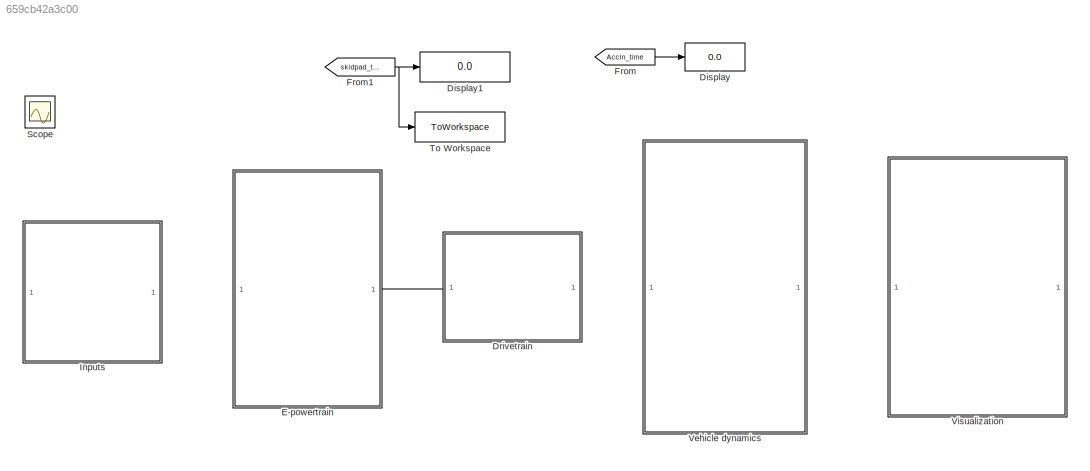
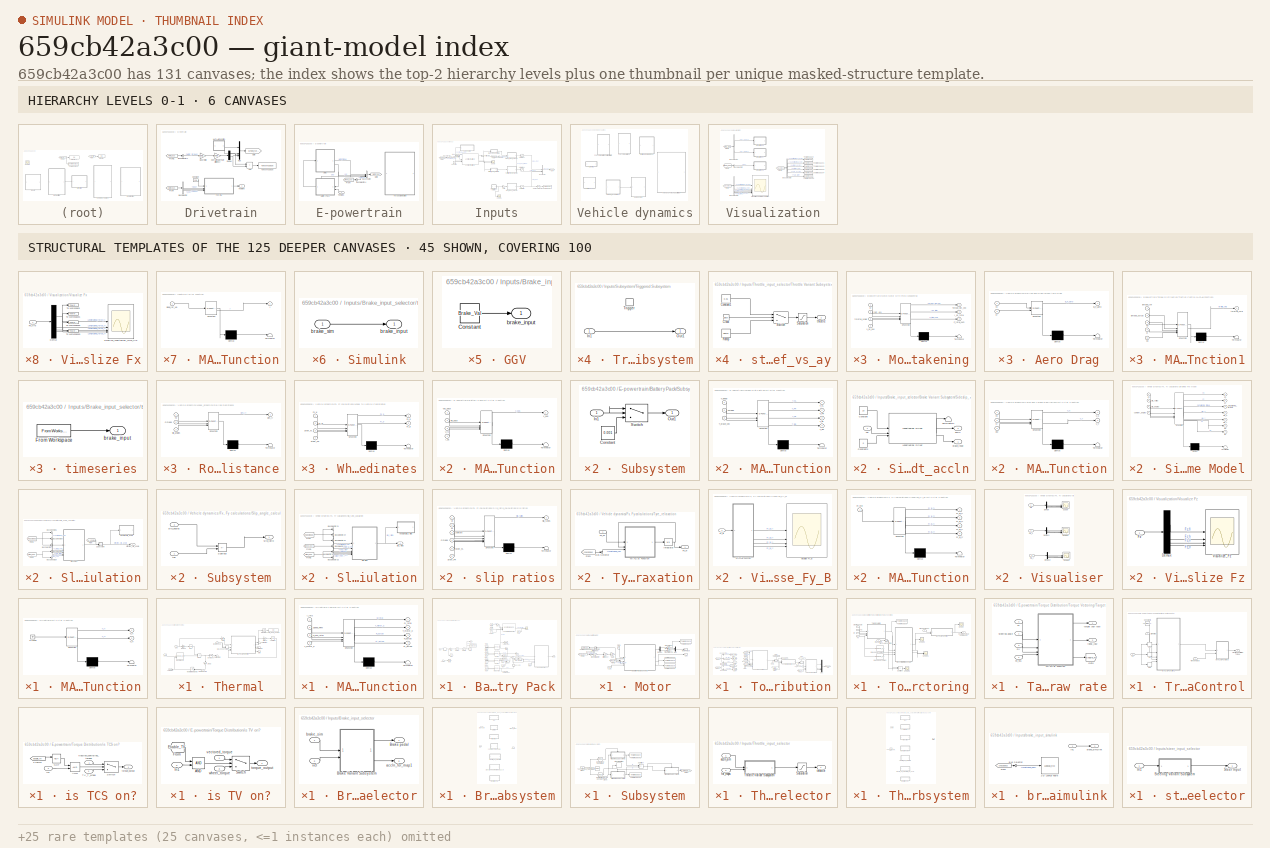
[diagram: thumbnail index - top-2 hierarchy levels (6 canvases) + 45 structural-template representatives of the remaining 125 canvases]
MODEL slx_659cb42a3c00
KIND model
CONFIG AbsTol = auto
CONFIG EnableMultiTasking = off
CONFIG FixedStep = auto
CONFIG MaxStep = 0.001
CONFIG MinStep = auto
CONFIG RelTol = 1e-3
CONFIG SampleTimeConstraint = Unconstrained
CONFIG SolverName = ode23tb
CONFIG StartTime = 0.0
CONFIG StopTime = 30
BLOCK [Display] Display
  Decimation = 1
BLOCK [Display] Display1
  Decimation = 1
BLOCK [SubSystem] Drivetrain
  PortSchema = {"entries":[{"content":{"sides":[{"content":{"connectorIds":["Out1"]},"type":"ConnectorPlacement.EquallySpacedRectSide","uuid":"f91cf200-6219-4a1f-80fc-b884c938b97c"},{"content":{"side":"RIGHT"},"type":"ConnectorPlacement.EquallySpacedRectSide","uuid":"1ef2f2a3-0f7e-4e07-a3c9-4fbc06387d99"},{"content":{"side":"TOP"},"type":"ConnectorPlacement.EquallySpacedRectSide","uuid":"4c772986-3ff5-4393-833e-...<+199ch>
BLOCK [Sum] Drivetrain/Add
  IconShape = rectangular
BLOCK [BusSelector] Drivetrain/Bus Selector
  OutputSignals = SoC,Omega,I_dc
BLOCK [BusSelector] Drivetrain/Bus Selector1
  OutputSignals = Motor_torque
BLOCK [Constant] Drivetrain/Constant
  Value = 298
BLOCK [Demux] Drivetrain/Demux
  Outputs = 2
BLOCK [From] Drivetrain/From
  GotoTag = Motor_bus
  TagVisibility = global
BLOCK [From] Drivetrain/From1
  GotoTag = Motor_bus
  TagVisibility = global
BLOCK [Gain] Drivetrain/Gear Ratio
  Gain = Motor.gear_ratio
  NameLocation = top
BLOCK [Goto] Drivetrain/Goto
  GotoTag = Wheel_torques
  TagVisibility = global
BLOCK [SubSystem] Drivetrain/MATLAB Function
  ErrorFcn = Stateflow.Translate.translate
  PermitHierarchicalResolution = ExplicitOnly
  SFBlockType = MATLAB Function
  TreatAsAtomicUnit = on
BLOCK [Demux] Drivetrain/MATLAB Function/ Demux 
  Outputs = 1
BLOCK [Ground] Drivetrain/MATLAB Function/ Ground 
BLOCK [S-Function] Drivetrain/MATLAB Function/ SFunction 
  EnableBusSupport = off
  FunctionName = sf_sfun
  PortCounts = [1 3]
  SFcnIsStateOwnerBlock = off
  SFunctionDeploymentMode = off
  Tag = Stateflow S-Function 40
BLOCK [Terminator] Drivetrain/MATLAB Function/ Terminator 
BLOCK [Outport] Drivetrain/MATLAB Function/T_fl
BLOCK [Outport] Drivetrain/MATLAB Function/T_fr
  Port = 2
BLOCK [Mux] Drivetrain/Mux
  DisplayOption = bar
BLOCK [Gain] Drivetrain/Overall Powertrain Efficiency
  Gain = Motor.overall_efficiency
BLOCK [Outport] Drivetrain/Temp in K
  NameLocation = top
BLOCK [SubSystem] Drivetrain/Thermal
BLOCK [Lookup_n-D] Drivetrain/Thermal/1-D Lookup Table
  BreakpointsForDimension1 = [0 5000 10000 12500 15000 20000]
  InputPortMap = u0
  InternalRulePriority = Speed
  NumberOfTableDimensions = 1
  RndMeth = Simplest
  Table = [0 105 230 300 310 315]
BLOCK [Gain] Drivetrain/Thermal/1//(Mcp)
  Gain = 1/(2.8*450)
BLOCK [Gain] Drivetrain/Thermal/1//mCp
  Gain = 1/(Battery.Mass_kg*Battery.SpecificHeat)
  NameLocation = left
BLOCK [Inport] Drivetrain/Thermal/Ambient Temp
BLOCK [Integrator] Drivetrain/Thermal/Energy(J)
BLOCK [Gain] Drivetrain/Thermal/Gain
  Gain = sqrt(2)
BLOCK [Goto] Drivetrain/Thermal/Goto
  GotoTag = Kt
  TagVisibility = global
BLOCK [Gain] Drivetrain/Thermal/I per cell
  Gain = 1/Battery.Np
BLOCK [Inport] Drivetrain/Thermal/I_dc
  Port = 4
BLOCK [Integrator] Drivetrain/Thermal/Integrator
BLOCK [Math] Drivetrain/Thermal/Isq
  Operator = square
BLOCK [SubSystem] Drivetrain/Thermal/MATLAB Function
  ErrorFcn = Stateflow.Translate.translate
  PermitHierarchicalResolution = ExplicitOnly
  SFBlockType = MATLAB Function
  TreatAsAtomicUnit = on
BLOCK [Demux] Drivetrain/Thermal/MATLAB Function/ Demux 
  Outputs = 1
BLOCK [S-Function] Drivetrain/Thermal/MATLAB Function/ SFunction 
  EnableBusSupport = off
  FunctionName = sf_sfun
  PortCounts = [4 5]
  SFcnIsStateOwnerBlock = off
  SFunctionDeploymentMode = off
  Tag = Stateflow S-Function 26
BLOCK [Terminator] Drivetrain/Thermal/MATLAB Function/ Terminator 
BLOCK [Inport] Drivetrain/Thermal/MATLAB Function/I_rms
BLOCK [Inport] Drivetrain/Thermal/MATLAB Function/P_iron_rotor
  Port = 3
BLOCK [Outport] Drivetrain/Thermal/MATLAB Function/Q_total
BLOCK [Outport] Drivetrain/Thermal/MATLAB Function/R_actual
  Port = 3
BLOCK [Inport] Drivetrain/Thermal/MATLAB Function/Speed_RPM
  Port = 2
BLOCK [Outport] Drivetrain/Thermal/MATLAB Function/T_motor_C
  Port = 2
BLOCK [Inport] Drivetrain/Thermal/MATLAB Function/T_motor_K
  Port = 4
BLOCK [Outport] Drivetrain/Thermal/MATLAB Function/kt_actual
  Port = 4
BLOCK [Inport] Drivetrain/Thermal/Motor speed
  Port = 3
BLOCK [Product] Drivetrain/Thermal/Qgen
BLOCK [Lookup_n-D] Drivetrain/Thermal/Resistance
  BreakpointsForDimension1 = Battery.SoC_vec
  BreakpointsForDimension2 = Battery.T_vec
  InputPortMap = u0,u1
  InternalRulePriority = Speed
  RndMeth = Simplest
  Table = Battery.R0_map+Battery.R1_map
BLOCK [Inport] Drivetrain/Thermal/SoC
  Port = 2
BLOCK [Outport] Drivetrain/Thermal/Temp in K
BLOCK [Integrator] Drivetrain/Thermal/Temp in K 
  InitialCondition = 293.15
  LimitOutput = on
  LowerSaturationLimit = 293.15
  UpperSaturationLimit = 423.15
BLOCK [Terminator] Drivetrain/Thermal/Terminator
BLOCK [Terminator] Drivetrain/Thermal/Terminator1
BLOCK [Terminator] Drivetrain/Thermal/Terminator2
BLOCK [Display] Drivetrain/Thermal/Total_Heat_Joules
  Decimation = 1
BLOCK [Integrator] Drivetrain/Thermal/motor winding temp
  InitialCondition = 298.15
  InitialConditionSource = external
BLOCK [ToWorkspace] Drivetrain/To Workspace
  FixptAsFi = on
  MaxDataPoints = inf
  SampleTime = -1
  SaveFormat = Timeseries
  VariableName = Total_wheel_torque
BLOCK [SubSystem] E-powertrain
  PortSchema = {"entries":[{"content":{"sides":[{"content":{},"type":"ConnectorPlacement.EquallySpacedRectSide","uuid":"2fbe1a29-d7e0-46b2-8acf-c3c60596dfc1"},{"content":{"connectorIds":["In1"],"side":"RIGHT"},"type":"ConnectorPlacement.EquallySpacedRectSide","uuid":"5e79f07f-e655-4956-8ef7-fa1f6819f89c"},{"content":{"side":"TOP"},"type":"ConnectorPlacement.EquallySpacedRectSide","uuid":"1ad69596-8b46-43d7-b59f-...<+199ch>
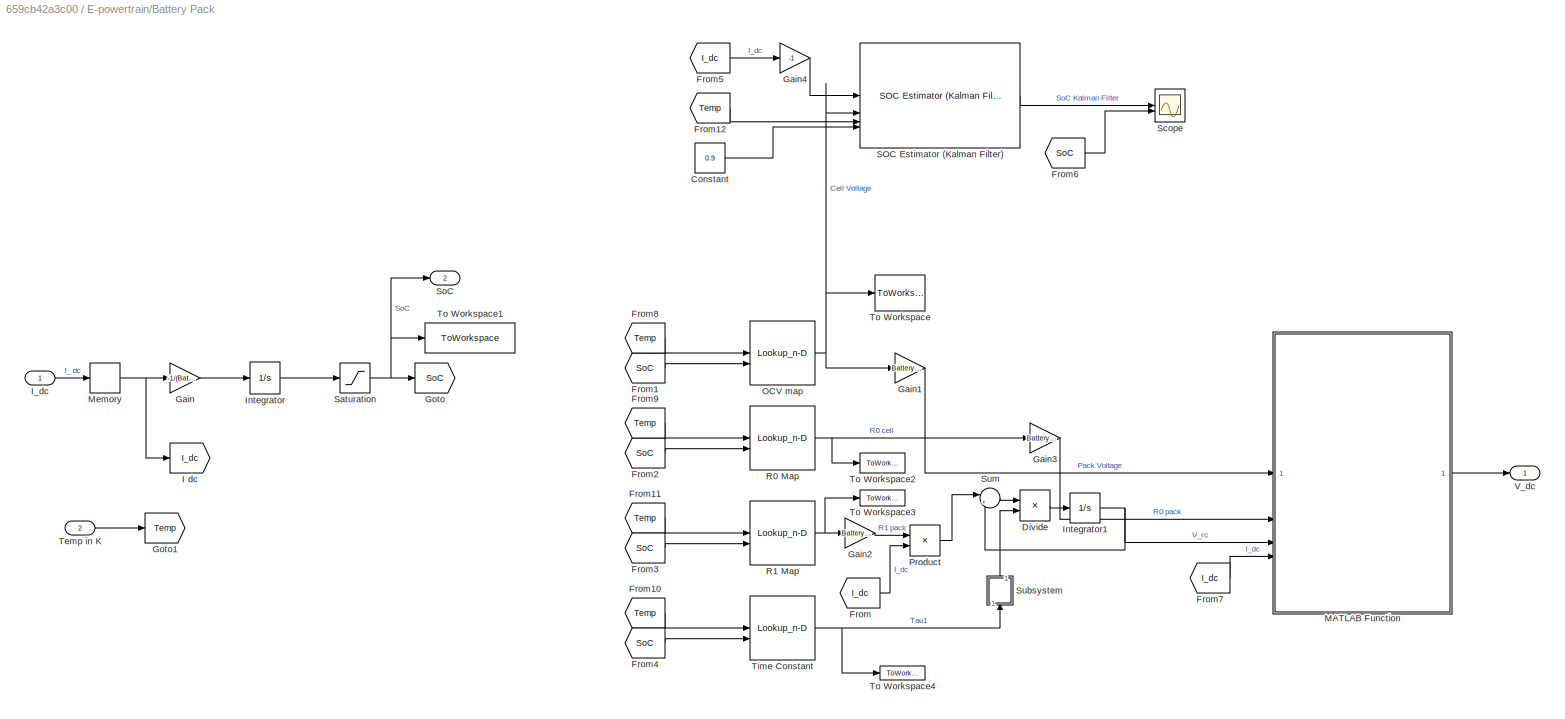
BLOCK [SubSystem] E-powertrain/Battery Pack
  PortSchema = {"entries":[{"content":{"sides":[{"content":{"connectorIds":["In1","Out2","In2"]},"type":"ConnectorPlacement.EquallySpacedRectSide","uuid":"a12b09be-87e3-41a8-9cce-cb6644b5ba86"},{"content":{"connectorIds":["Out1"],"side":"RIGHT"},"type":"ConnectorPlacement.EquallySpacedRectSide","uuid":"19bc61ba-c6fa-40ce-bed9-9c9078ba9fa2"},{"content":{"side":"TOP"},"type":"ConnectorPlacement.EquallySpacedRectSi...<+235ch>
  ShowPortLabels = FromPortBlockName
BLOCK [Constant] E-powertrain/Battery Pack/Constant
  Value = 0.9
BLOCK [Product] E-powertrain/Battery Pack/Divide
  Inputs = */
BLOCK [From] E-powertrain/Battery Pack/From
  GotoTag = I_dc
BLOCK [From] E-powertrain/Battery Pack/From1
  GotoTag = SoC
BLOCK [From] E-powertrain/Battery Pack/From10
  GotoTag = Temp
BLOCK [From] E-powertrain/Battery Pack/From11
  GotoTag = Temp
BLOCK [From] E-powertrain/Battery Pack/From12
  GotoTag = Temp
BLOCK [From] E-powertrain/Battery Pack/From2
  GotoTag = SoC
BLOCK [From] E-powertrain/Battery Pack/From3
  GotoTag = SoC
BLOCK [From] E-powertrain/Battery Pack/From4
  GotoTag = SoC
BLOCK [From] E-powertrain/Battery Pack/From5
  GotoTag = I_dc
BLOCK [From] E-powertrain/Battery Pack/From6
  GotoTag = SoC
BLOCK [From] E-powertrain/Battery Pack/From7
  GotoTag = I_dc
BLOCK [From] E-powertrain/Battery Pack/From8
  GotoTag = Temp
BLOCK [From] E-powertrain/Battery Pack/From9
  GotoTag = Temp
BLOCK [Gain] E-powertrain/Battery Pack/Gain
  Gain = -1/(Battery.Capacity_Ah*Battery.Np*3600)
BLOCK [Gain] E-powertrain/Battery Pack/Gain1
  Gain = Battery.Ns
BLOCK [Gain] E-powertrain/Battery Pack/Gain2
  Gain = Battery.Ns/Battery.Np
BLOCK [Gain] E-powertrain/Battery Pack/Gain3
  Gain = Battery.Ns/Battery.Np
BLOCK [Gain] E-powertrain/Battery Pack/Gain4
  Gain = -1
BLOCK [Goto] E-powertrain/Battery Pack/Goto
  GotoTag = SoC
BLOCK [Goto] E-powertrain/Battery Pack/Goto1
  GotoTag = Temp
BLOCK [Goto] E-powertrain/Battery Pack/I dc
  GotoTag = I_dc
BLOCK [Inport] E-powertrain/Battery Pack/I_dc
BLOCK [Integrator] E-powertrain/Battery Pack/Integrator
  InitialCondition = 1
BLOCK [Integrator] E-powertrain/Battery Pack/Integrator1
BLOCK [SubSystem] E-powertrain/Battery Pack/MATLAB Function
  ErrorFcn = Stateflow.Translate.translate
  PermitHierarchicalResolution = ExplicitOnly
  SFBlockType = MATLAB Function
  TreatAsAtomicUnit = on
BLOCK [Demux] E-powertrain/Battery Pack/MATLAB Function/ Demux 
  Outputs = 1
BLOCK [S-Function] E-powertrain/Battery Pack/MATLAB Function/ SFunction 
  EnableBusSupport = off
  FunctionName = sf_sfun
  PortCounts = [4 2]
  SFcnIsStateOwnerBlock = off
  SFunctionDeploymentMode = off
  Tag = Stateflow S-Function 1
BLOCK [Terminator] E-powertrain/Battery Pack/MATLAB Function/ Terminator 
BLOCK [Inport] E-powertrain/Battery Pack/MATLAB Function/I_dc
  Port = 4
BLOCK [Inport] E-powertrain/Battery Pack/MATLAB Function/R0_pack
  Port = 2
BLOCK [Inport] E-powertrain/Battery Pack/MATLAB Function/V_rc
  Port = 3
BLOCK [Inport] E-powertrain/Battery Pack/MATLAB Function/Voc_pack
BLOCK [Outport] E-powertrain/Battery Pack/MATLAB Function/v_bus
BLOCK [Memory] E-powertrain/Battery Pack/Memory
BLOCK [Lookup_n-D] E-powertrain/Battery Pack/OCV map
  BreakpointsForDimension1 = Battery.T_vec
  BreakpointsForDimension2 = Battery.SoC_vec
  InputPortMap = u0,u1
  InternalRulePriority = Speed
  RndMeth = Simplest
  Table = Battery.OCV_map'
BLOCK [Product] E-powertrain/Battery Pack/Product
BLOCK [Lookup_n-D] E-powertrain/Battery Pack/R0 Map
  BreakpointsForDimension1 = Battery.T_vec
  BreakpointsForDimension2 = Battery.SoC_vec
  InputPortMap = u0,u1
  InternalRulePriority = Speed
  RndMeth = Simplest
  Table = Battery.R0_map'
BLOCK [Lookup_n-D] E-powertrain/Battery Pack/R1 Map
  BreakpointsForDimension1 = Battery.T_vec
  BreakpointsForDimension2 = Battery.SoC_vec
  InputPortMap = u0,u1
  InternalRulePriority = Speed
  RndMeth = Simplest
  Table = Battery.R1_map'
BLOCK [Reference] E-powertrain/Battery Pack/SOC Estimator (Kalman Filter)  REF=BatteryEstimators/SOC Estimator
(Kalman Filter)
  SourceBlock = BatteryEstimators/SOC Estimator\n(Kalman Filter)
  SourceType = SOC Estimator (Kalman Filter)
BLOCK [Saturate] E-powertrain/Battery Pack/Saturation
  LowerLimit = 0
  UpperLimit = 1
BLOCK [Scope] E-powertrain/Battery Pack/Scope
  ActiveDisplayYMaximum = 0.90245265023893717
  ActiveDisplayYMinimum = 0.87799639857607525
  ContainerLayout = {"WindowBounds":[213.33333333333326,149.33333333333326,1280,768],"gridDimensions":{"w":1,"h":1},"tileCount":1,"tileCoverage":1,"columnWeights":1,"rowWeights":1,"tileOccupancy":{}}
  DataLoggingVariableName = ScopeData8
  Floating = off
  GraphicalSettings = {"Style":{"BackgroundColor":[0.12549019607843137,0.12549019607843137,0.12549019607843137],"AxesColor":[0.06666666666666667,0.06666666666666667,0.06666666666666667],"LabelsColor":[0.8509803921568627,0.8509803921568627,0.8509803921568627],"PreserveColors":false,"Visible":[true,true],"LineStyle":["-","-"],"LineWidth":[1.5,1.5],"BarWidth":[0.9,0.9],"LineColor":["auto","auto"],"LineFaceAlpha":[1,1],"Li...<+2359ch>
  LayoutDimensionsString = [2 1]
  MultipleDisplayCache = [{"MaxYLimMag":0.90245265023893717,"MaxYLimReal":0.90245265023893717,"MinYLimMag":0.87799639857607525,"MinYLimReal":0.87799639857607525,"PlotAsMagnitudePhase":false,"ShowGrid":true,"ShowLegend":false,"Title":"%<SignalLabel>","YLabel":""},{"MaxYLimMag":1.0008471829163377,"MaxYLimReal":1.0008471829163377,"MinYLimMag":0.99237535375296027,"MinYLimReal":0.99237535375296027,"PlotAsMagnitudePhase":false,...<+73ch>
  NumInputPorts = 2
  ScopeFrameLocation = window
  WasSavedAsWebScope = on
  WindowPosition = [1.000000,1.000000,1536.000000,841.000000,]
BLOCK [Outport] E-powertrain/Battery Pack/SoC
  Port = 2
BLOCK [SubSystem] E-powertrain/Battery Pack/Subsystem
  NameLocation = right
BLOCK [Constant] E-powertrain/Battery Pack/Subsystem/Constant
  Value = 0.001
BLOCK [Inport] E-powertrain/Battery Pack/Subsystem/In1
BLOCK [Outport] E-powertrain/Battery Pack/Subsystem/Out1
BLOCK [Switch] E-powertrain/Battery Pack/Subsystem/Switch
  Criteria = u2 > Threshold
  InputSameDT = off
  SaturateOnIntegerOverflow = off
BLOCK [Sum] E-powertrain/Battery Pack/Sum
  Inputs = |+-
BLOCK [Inport] E-powertrain/Battery Pack/Temp in K
  Port = 2
BLOCK [Lookup_n-D] E-powertrain/Battery Pack/Time Constant
  BreakpointsForDimension1 = Battery.T_vec
  BreakpointsForDimension2 = Battery.SoC_vec
  InputPortMap = u0,u1
  InternalRulePriority = Speed
  RndMeth = Simplest
  Table = Battery.Tau_map'
BLOCK [ToWorkspace] E-powertrain/Battery Pack/To Workspace
  Commented = on
  FixptAsFi = on
  MaxDataPoints = inf
  SampleTime = -1
  SaveFormat = Timeseries
  VariableName = cell_volt
BLOCK [ToWorkspace] E-powertrain/Battery Pack/To Workspace1
  Commented = on
  FixptAsFi = on
  MaxDataPoints = inf
  SampleTime = -1
  SaveFormat = Timeseries
  VariableName = SoC
BLOCK [ToWorkspace] E-powertrain/Battery Pack/To Workspace2
  Commented = on
  FixptAsFi = on
  MaxDataPoints = inf
  SampleTime = -1
  SaveFormat = Timeseries
  VariableName = R0_cell
BLOCK [ToWorkspace] E-powertrain/Battery Pack/To Workspace3
  Commented = on
  FixptAsFi = on
  MaxDataPoints = inf
  SampleTime = -1
  SaveFormat = Timeseries
  VariableName = R1_cell
BLOCK [ToWorkspace] E-powertrain/Battery Pack/To Workspace4
  Commented = on
  FixptAsFi = on
  MaxDataPoints = inf
  SampleTime = -1
  SaveFormat = Timeseries
  VariableName = Tou_1
BLOCK [Outport] E-powertrain/Battery Pack/V_dc
BLOCK [BusCreator] E-powertrain/Bus Creator
  DisplayOption = bar
  InheritFromInputs = on
  Inputs = 4
BLOCK [BusSelector] E-powertrain/Bus Selector4
  OutputSignals = Omega
BLOCK [From] E-powertrain/From
  GotoTag = Wheel_bus
  TagVisibility = global
BLOCK [Goto] E-powertrain/Goto
  GotoTag = Motor_bus
  TagVisibility = global
BLOCK [SubSystem] E-powertrain/Motor
  ShowPortLabels = FromPortBlockName
BLOCK [BusSelector] E-powertrain/Motor/Bus Selector
  OutputSignals = Throttle_input
BLOCK [BusSelector] E-powertrain/Motor/Bus Selector1
  OutputSignals = Omega
BLOCK [Demux] E-powertrain/Motor/Demux
  Outputs = 2
BLOCK [Gain] E-powertrain/Motor/Efficiency
  Gain = 0.98
BLOCK [From] E-powertrain/Motor/From
  GotoTag = Kt
  TagVisibility = global
BLOCK [From] E-powertrain/Motor/From1
  GotoTag = Input_bus
  TagVisibility = global
BLOCK [From] E-powertrain/Motor/From2
  GotoTag = Wheel_bus
  TagVisibility = global
BLOCK [Gain] E-powertrain/Motor/Gain
  Gain = 60/(2*pi)
BLOCK [Outport] E-powertrain/Motor/I_dc
  Port = 2
BLOCK [Outport] E-powertrain/Motor/Motor Torque
BLOCK [SubSystem] E-powertrain/Motor/Motor with Field Weakening
  ErrorFcn = Stateflow.Translate.translate
  PermitHierarchicalResolution = ExplicitOnly
  SFBlockType = MATLAB Function
  TreatAsAtomicUnit = on
BLOCK [Demux] E-powertrain/Motor/Motor with Field Weakening/ Demux 
  Outputs = 1
BLOCK [S-Function] E-powertrain/Motor/Motor with Field Weakening/ SFunction 
  EnableBusSupport = off
  FunctionName = sf_sfun
  Parameters = Motor
  PortCounts = [4 4]
  SFcnIsStateOwnerBlock = off
  SFunctionDeploymentMode = off
  Tag = Stateflow S-Function 2
BLOCK [Terminator] E-powertrain/Motor/Motor with Field Weakening/ Terminator 
BLOCK [Outport] E-powertrain/Motor/Motor with Field Weakening/I_dc_total
  Port = 2
BLOCK [Outport] E-powertrain/Motor/Motor with Field Weakening/P_total_sum
  Port = 3
BLOCK [Outport] E-powertrain/Motor/Motor with Field Weakening/Torque_Nm_vec
BLOCK [Inport] E-powertrain/Motor/Motor with Field Weakening/kt
BLOCK [Inport] E-powertrain/Motor/Motor with Field Weakening/rpm_4x1
  Port = 2
BLOCK [Inport] E-powertrain/Motor/Motor with Field Weakening/throttle_scalar
  Port = 3
BLOCK [Inport] E-powertrain/Motor/Motor with Field Weakening/v_dc_bus
  Port = 4
BLOCK [Mux] E-powertrain/Motor/Mux
  DisplayOption = bar
  Inputs = 2
BLOCK [ToWorkspace] E-powertrain/Motor/To Workspace
  Commented = on
  FixptAsFi = on
  MaxDataPoints = inf
  SampleTime = -1
  SaveFormat = Timeseries
  VariableName = motor_torque
BLOCK [ToWorkspace] E-powertrain/Motor/To Workspace1
  Commented = on
  FixptAsFi = on
  MaxDataPoints = inf
  SampleTime = -1
  SaveFormat = Timeseries
  VariableName = motor_rpm
BLOCK [ToWorkspace] E-powertrain/Motor/To Workspace2
  Commented = on
  FixptAsFi = on
  MaxDataPoints = inf
  SampleTime = -1
  SaveFormat = Timeseries
  VariableName = Mechanical_power
BLOCK [ToWorkspace] E-powertrain/Motor/To Workspace3
  Commented = on
  FixptAsFi = on
  MaxDataPoints = inf
  SampleTime = -1
  SaveFormat = Timeseries
  VariableName = Motor_current
BLOCK [TransferFcn] E-powertrain/Motor/Transfer Fcn
  Denominator = [Motor.tau_el 1]
BLOCK [TransferFcn] E-powertrain/Motor/Transfer Fcn1
  Denominator = [Motor.tau_el 1]
BLOCK [Gain] E-powertrain/Motor/Wheel to Motor
  Gain = 10.05
BLOCK [SubSystem] E-powertrain/Motor/rpm selection for third wheel
  ErrorFcn = Stateflow.Translate.translate
  NameLocation = top
  PermitHierarchicalResolution = ExplicitOnly
  SFBlockType = MATLAB Function
  TreatAsAtomicUnit = on
BLOCK [Demux] E-powertrain/Motor/rpm selection for third wheel/ Demux 
  Outputs = 1
BLOCK [S-Function] E-powertrain/Motor/rpm selection for third wheel/ SFunction 
  EnableBusSupport = off
  FunctionName = sf_sfun
  PortCounts = [1 2]
  SFcnIsStateOwnerBlock = off
  SFunctionDeploymentMode = off
  Tag = Stateflow S-Function 3
BLOCK [Terminator] E-powertrain/Motor/rpm selection for third wheel/ Terminator 
BLOCK [Inport] E-powertrain/Motor/rpm selection for third wheel/u
BLOCK [Outport] E-powertrain/Motor/rpm selection for third wheel/y
BLOCK [Inport] E-powertrain/Motor/v_dc
BLOCK [Inport] E-powertrain/Temp in K
BLOCK [SubSystem] E-powertrain/Torque Distribution
BLOCK [BusSelector] E-powertrain/Torque Distribution/Bus Selector
  OutputSignals = Dy
BLOCK [BusSelector] E-powertrain/Torque Distribution/Bus Selector1
  OutputSignals = Slip_ratios
BLOCK [BusSelector] E-powertrain/Torque Distribution/Bus Selector2
  OutputSignals = Longitudinal_vel
BLOCK [BusSelector] E-powertrain/Torque Distribution/Bus Selector3
  OutputSignals = Yaw_rate
BLOCK [BusSelector] E-powertrain/Torque Distribution/Bus Selector36
  OutputSignals = Omega
BLOCK [BusSelector] E-powertrain/Torque Distribution/Bus Selector4
  OutputSignals = Fz
BLOCK [BusSelector] E-powertrain/Torque Distribution/Bus Selector5
  OutputSignals = Steer_input
BLOCK [From] E-powertrain/Torque Distribution/From
  GotoTag = Wheel_torques
  TagVisibility = global
BLOCK [From] E-powertrain/Torque Distribution/From1
  GotoTag = TV_T_wheel
  NameLocation = right
BLOCK [From] E-powertrain/Torque Distribution/From10
  GotoTag = Brake_torques
  TagVisibility = global
BLOCK [From] E-powertrain/Torque Distribution/From11
  GotoTag = chassisbus
  TagVisibility = global
BLOCK [From] E-powertrain/Torque Distribution/From12
  GotoTag = Wheel_bus
  TagVisibility = global
BLOCK [From] E-powertrain/Torque Distribution/From13
  GotoTag = Force_bus
  TagVisibility = global
BLOCK [From] E-powertrain/Torque Distribution/From2
  GotoTag = wheel_speed
BLOCK [From] E-powertrain/Torque Distribution/From3
  GotoTag = slip_ratios
BLOCK [From] E-powertrain/Torque Distribution/From4
  GotoTag = Longitudinal_vel
BLOCK [From] E-powertrain/Torque Distribution/From5
  GotoTag = yawrate
BLOCK [From] E-powertrain/Torque Distribution/From6
  GotoTag = Fz
BLOCK [From] E-powertrain/Torque Distribution/From7
  GotoTag = Longitudinal_vel
BLOCK [From] E-powertrain/Torque Distribution/From8
  GotoTag = Wheel_torques
  NameLocation = right
  TagVisibility = global
BLOCK [From] E-powertrain/Torque Distribution/From9
  GotoTag = Input_bus
  TagVisibility = global
BLOCK [Goto] E-powertrain/Torque Distribution/Goto
  GotoTag = Torque_inputs
  TagVisibility = global
BLOCK [Goto] E-powertrain/Torque Distribution/Goto1
  GotoTag = wheel_speed
BLOCK [Goto] E-powertrain/Torque Distribution/Goto2
  GotoTag = slip_ratios
BLOCK [Goto] E-powertrain/Torque Distribution/Goto3
  GotoTag = Longitudinal_vel
BLOCK [Goto] E-powertrain/Torque Distribution/Goto4
  GotoTag = yawrate
BLOCK [Goto] E-powertrain/Torque Distribution/Goto5
  GotoTag = Fz
BLOCK [Goto] E-powertrain/Torque Distribution/Goto6
  GotoTag = TV_T_wheel
BLOCK [SubSystem] E-powertrain/Torque Distribution/MATLAB Function
  ErrorFcn = Stateflow.Translate.translate
  PermitHierarchicalResolution = ExplicitOnly
  SFBlockType = MATLAB Function
  TreatAsAtomicUnit = on
BLOCK [Demux] E-powertrain/Torque Distribution/MATLAB Function/ Demux 
  Outputs = 1
BLOCK [S-Function] E-powertrain/Torque Distribution/MATLAB Function/ SFunction 
  EnableBusSupport = off
  FunctionName = sf_sfun
  PortCounts = [3 5]
  SFcnIsStateOwnerBlock = off
  SFunctionDeploymentMode = off
  Tag = Stateflow S-Function 12
BLOCK [Terminator] E-powertrain/Torque Distribution/MATLAB Function/ Terminator 
BLOCK [Outport] E-powertrain/Torque Distribution/MATLAB Function/T_FL
BLOCK [Outport] E-powertrain/Torque Distribution/MATLAB Function/T_FR
  Port = 2
BLOCK [Outport] E-powertrain/Torque Distribution/MATLAB Function/T_RL
  Port = 3
BLOCK [Outport] E-powertrain/Torque Distribution/MATLAB Function/T_RR
  Port = 4
BLOCK [Inport] E-powertrain/Torque Distribution/MATLAB Function/T_brake_vec
  Port = 3
BLOCK [Inport] E-powertrain/Torque Distribution/MATLAB Function/T_wheel
BLOCK [Inport] E-powertrain/Torque Distribution/MATLAB Function/omega
  Port = 2
BLOCK [Mux] E-powertrain/Torque Distribution/Mux1
  DisplayOption = bar
BLOCK [Constant] E-powertrain/Torque Distribution/TC_on
  Value = 0
BLOCK [Constant] E-powertrain/Torque Distribution/TV_on
BLOCK [SubSystem] E-powertrain/Torque Distribution/Torque Vectoring
BLOCK [Lookup_n-D] E-powertrain/Torque Distribution/Torque Vectoring/1-D Lookup Table1
  BreakpointsForDimension1 = Vx_array
  InputPortMap = u0
  InternalRulePriority = Speed
  NumberOfTableDimensions = 1
  RndMeth = Simplest
  Table = Kp_array
BLOCK [Lookup_n-D] E-powertrain/Torque Distribution/Torque Vectoring/1-D Lookup Table2
  BreakpointsForDimension1 = Vx_array
  InputPortMap = u0
  InternalRulePriority = Speed
  NumberOfTableDimensions = 1
  RndMeth = Simplest
  Table = Ki_array
BLOCK [Inport] E-powertrain/Torque Distribution/Torque Vectoring/Dy
  NameLocation = left
  Port = 5
BLOCK [Inport] E-powertrain/Torque Distribution/Torque Vectoring/Fz
  NameLocation = left
  Port = 6
BLOCK [SubSystem] E-powertrain/Torque Distribution/Torque Vectoring/MATLAB Function
  ErrorFcn = Stateflow.Translate.translate
  PermitHierarchicalResolution = ExplicitOnly
  SFBlockType = MATLAB Function
  TreatAsAtomicUnit = on
BLOCK [Demux] E-powertrain/Torque Distribution/Torque Vectoring/MATLAB Function/ Demux 
  Outputs = 1
BLOCK [S-Function] E-powertrain/Torque Distribution/Torque Vectoring/MATLAB Function/ SFunction 
  EnableBusSupport = off
  FunctionName = sf_sfun
  Parameters = Motor,Par
  PortCounts = [2 2]
  SFcnIsStateOwnerBlock = off
  SFunctionDeploymentMode = off
  Tag = Stateflow S-Function 13
BLOCK [Terminator] E-powertrain/Torque Distribution/Torque Vectoring/MATLAB Function/ Terminator 
BLOCK [Outport] E-powertrain/Torque Distribution/Torque Vectoring/MATLAB Function/vectored_torques
BLOCK [Inport] E-powertrain/Torque Distribution/Torque Vectoring/MATLAB Function/wheel_torques
BLOCK [Inport] E-powertrain/Torque Distribution/Torque Vectoring/MATLAB Function/yaw_moment
  Port = 2
BLOCK [SubSystem] E-powertrain/Torque Distribution/Torque Vectoring/MATLAB Function1
  ErrorFcn = Stateflow.Translate.translate
  PermitHierarchicalResolution = ExplicitOnly
  SFBlockType = MATLAB Function
  TreatAsAtomicUnit = on
BLOCK [Demux] E-powertrain/Torque Distribution/Torque Vectoring/MATLAB Function1/ Demux 
  Outputs = 1
BLOCK [S-Function] E-powertrain/Torque Distribution/Torque Vectoring/MATLAB Function1/ SFunction 
  EnableBusSupport = off
  FunctionName = sf_sfun
  PortCounts = [1 2]
  SFcnIsStateOwnerBlock = off
  SFunctionDeploymentMode = off
  Tag = Stateflow S-Function 41
BLOCK [Terminator] E-powertrain/Torque Distribution/Torque Vectoring/MATLAB Function1/ Terminator 
BLOCK [Inport] E-powertrain/Torque Distribution/Torque Vectoring/MATLAB Function1/u
BLOCK [Outport] E-powertrain/Torque Distribution/Torque Vectoring/MATLAB Function1/y
BLOCK [SubSystem] E-powertrain/Torque Distribution/Torque Vectoring/PID controller in time domain
  ErrorFcn = Stateflow.Translate.translate
  PermitHierarchicalResolution = ExplicitOnly
  SFBlockType = MATLAB Function
  SystemSampleTime = 0.001
  TreatAsAtomicUnit = on
BLOCK [Demux] E-powertrain/Torque Distribution/Torque Vectoring/PID controller in time domain/ Demux 
  Outputs = 1
BLOCK [S-Function] E-powertrain/Torque Distribution/Torque Vectoring/PID controller in time domain/ SFunction 
  EnableBusSupport = off
  FunctionName = sf_sfun
  Parameters = Motor,Par
  PortCounts = [4 4]
  SFcnIsStateOwnerBlock = off
  SFunctionDeploymentMode = off
  Tag = Stateflow S-Function 14
BLOCK [Terminator] E-powertrain/Torque Distribution/Torque Vectoring/PID controller in time domain/ Terminator 
BLOCK [Inport] E-powertrain/Torque Distribution/Torque Vectoring/PID controller in time domain/Ki
  Port = 4
BLOCK [Inport] E-powertrain/Torque Distribution/Torque Vectoring/PID controller in time domain/Kp
  Port = 3
BLOCK [Outport] E-powertrain/Torque Distribution/Torque Vectoring/PID controller in time domain/error
  Port = 3
BLOCK [Inport] E-powertrain/Torque Distribution/Torque Vectoring/PID controller in time domain/ref
BLOCK [Outport] E-powertrain/Torque Distribution/Torque Vectoring/PID controller in time domain/u_unsat
  Port = 2
BLOCK [Inport] E-powertrain/Torque Distribution/Torque Vectoring/PID controller in time domain/y
  Port = 2
BLOCK [Outport] E-powertrain/Torque Distribution/Torque Vectoring/PID controller in time domain/yaw_moment
BLOCK [Scope] E-powertrain/Torque Distribution/Torque Vectoring/Scope
  ActiveDisplayYMaximum = 1
  ActiveDisplayYMinimum = -1
  Commented = on
  DataLoggingVariableName = ScopeData4
  Floating = off
  GraphicalSettings = {"Style":{"BackgroundColor":[0.12941176470588237,0.12941176470588237,0.12941176470588237],"AxesColor":[0.07058823529411765,0.07058823529411765,0.07058823529411765],"LabelsColor":[0.8509803921568627,0.8509803921568627,0.8509803921568627],"PreserveColors":false,"Visible":[true,true,true,true],"LineStyle":["-","-","-","-"],"LineWidth":[1.5,1.5,1.5,1.5],"BarWidth":[0.9,0.9,0.9,0.9],"LineColor":["auto"...<+2405ch>
  MultipleDisplayCache = [{"MaxYLimMag":1,"MaxYLimReal":1,"MinYLimMag":0,"MinYLimReal":-1,"PlotAsMagnitudePhase":false,"ShowGrid":true,"ShowLegend":true,"Title":"%<SignalLabel>","YLabel":""}]
  NumInputPorts = 1
  ScopeFrameLocation = window
  ShowLegend = on
  WasSavedAsWebScope = on
  WindowPosition = [1.000000,1.000000,1536.000000,841.000000,]
BLOCK [Scope] E-powertrain/Torque Distribution/Torque Vectoring/Scope1
  ActiveDisplayYMaximum = 1
  ActiveDisplayYMinimum = -1
  Commented = on
  DataLoggingVariableName = ScopeData15
  Floating = off
  GraphicalSettings = {"Style":{"BackgroundColor":[0.12941176470588237,0.12941176470588237,0.12941176470588237],"AxesColor":[0.07058823529411765,0.07058823529411765,0.07058823529411765],"LabelsColor":[0.8509803921568627,0.8509803921568627,0.8509803921568627],"PreserveColors":false,"Visible":[true,true],"LineStyle":["-","-"],"LineWidth":[1.5,1.5],"BarWidth":[0.9,0.9],"LineColor":["auto","auto"],"LineFaceAlpha":[1,1],"Li...<+2392ch>
  LayoutDimensionsString = [1,2]
  MultipleDisplayCache = [{"MaxYLimMag":1,"MaxYLimReal":1,"MinYLimMag":0,"MinYLimReal":-1,"PlotAsMagnitudePhase":false,"ShowGrid":true,"ShowLegend":false,"Title":"%<SignalLabel>","YLabel":""},{"MaxYLimMag":1,"MaxYLimReal":1,"MinYLimMag":0,"MinYLimReal":-1,"PlotAsMagnitudePhase":false,"ShowGrid":true,"ShowLegend":false,"Title":"%<SignalLabel>","YLabel":""}]
  NumInputPorts = 2
  ScopeFrameLocation = window
  WasSavedAsWebScope = on
  WindowPosition = [1.000000,1.000000,1536.000000,841.000000,]
BLOCK [Scope] E-powertrain/Torque Distribution/Torque Vectoring/Scope2
  ActiveDisplayYMaximum = 139.13519650455567
  ActiveDisplayYMinimum = -808.274340814801
  Commented = on
  DataLoggingVariableName = ScopeData17
  Floating = off
  GraphicalSettings = {"Style":{"BackgroundColor":[0.12941176470588237,0.12941176470588237,0.12941176470588237],"AxesColor":[0.07058823529411765,0.07058823529411765,0.07058823529411765],"LabelsColor":[0.8509803921568627,0.8509803921568627,0.8509803921568627],"PreserveColors":false,"Visible":[true],"LineStyle":["-"],"LineWidth":[1.5],"BarWidth":[0.9],"LineColor":["auto"],"LineFaceAlpha":[1],"LineEdgeAlpha":[1],"Marker":...<+2059ch>
  MultipleDisplayCache = [{"MaxYLimMag":817.22366901010116,"MaxYLimReal":139.13519650455567,"MinYLimMag":0,"MinYLimReal":-808.274340814801,"PlotAsMagnitudePhase":false,"ShowGrid":true,"ShowLegend":false,"Title":"%<SignalLabel>","YLabel":""}]
  NumInputPorts = 1
  ScopeFrameLocation = window
  WasSavedAsWebScope = on
  WindowPosition = [1.000000,1.000000,1536.000000,841.000000,]
BLOCK [Scope] E-powertrain/Torque Distribution/Torque Vectoring/Scope3
  ActiveDisplayYMaximum = 1.3983030281875917
  ActiveDisplayYMinimum = -0.85002897198767369
  DataLoggingVariableName = ScopeData18
  Floating = off
  GraphicalSettings = {"Style":{"BackgroundColor":[0.12941176470588237,0.12941176470588237,0.12941176470588237],"AxesColor":[0.07058823529411765,0.07058823529411765,0.07058823529411765],"LabelsColor":[0.8509803921568627,0.8509803921568627,0.8509803921568627],"PreserveColors":false,"Visible":[true],"LineStyle":["-"],"LineWidth":[1.5],"BarWidth":[0.9],"LineColor":["auto"],"LineFaceAlpha":[1],"LineEdgeAlpha":[1],"Marker":...<+2001ch>
  MultipleDisplayCache = [{"MaxYLimMag":1.3983030281875917,"MaxYLimReal":1.3983030281875917,"MinYLimMag":0,"MinYLimReal":-0.85002897198767369,"PlotAsMagnitudePhase":false,"ShowGrid":true,"ShowLegend":false,"Title":"%<SignalLabel>","YLabel":""}]
  NumInputPorts = 1
  ScopeFrameLocation = window
  Visible = on
  WasSavedAsWebScope = on
  WindowPosition = [1.000000,1.000000,1536.000000,841.000000,]
BLOCK [Sum] E-powertrain/Torque Distribution/Torque Vectoring/Subtract
  IconShape = rectangular
  Inputs = +-
BLOCK [SubSystem] E-powertrain/Torque Distribution/Torque Vectoring/Target yaw rate
  NameLocation = top
BLOCK [Inport] E-powertrain/Torque Distribution/Torque Vectoring/Target yaw rate/Dy
  Port = 3
BLOCK [Inport] E-powertrain/Torque Distribution/Torque Vectoring/Target yaw rate/Fz_4x1
  Port = 2
BLOCK [Goto] E-powertrain/Torque Distribution/Torque Vectoring/Target yaw rate/Goto
  GotoTag = Enable_TV
  TagVisibility = global
BLOCK [SubSystem] E-powertrain/Torque Distribution/Torque Vectoring/Target yaw rate/MATLAB Function
  ErrorFcn = Stateflow.Translate.translate
  PermitHierarchicalResolution = ExplicitOnly
  SFBlockType = MATLAB Function
  TreatAsAtomicUnit = on
BLOCK [Demux] E-powertrain/Torque Distribution/Torque Vectoring/Target yaw rate/MATLAB Function/ Demux 
  Outputs = 1
BLOCK [S-Function] E-powertrain/Torque Distribution/Torque Vectoring/Target yaw rate/MATLAB Function/ SFunction 
  EnableBusSupport = off
  FunctionName = sf_sfun
  Parameters = Par,ku
  PortCounts = [4 4]
  SFcnIsStateOwnerBlock = off
  SFunctionDeploymentMode = off
  Tag = Stateflow S-Function 15
BLOCK [Terminator] E-powertrain/Torque Distribution/Torque Vectoring/Target yaw rate/MATLAB Function/ Terminator 
BLOCK [Inport] E-powertrain/Torque Distribution/Torque Vectoring/Target yaw rate/MATLAB Function/Dy
  Port = 3
BLOCK [Inport] E-powertrain/Torque Distribution/Torque Vectoring/Target yaw rate/MATLAB Function/Fz
  Port = 4
BLOCK [Inport] E-powertrain/Torque Distribution/Torque Vectoring/Target yaw rate/MATLAB Function/delta
  Port = 2
BLOCK [Outport] E-powertrain/Torque Distribution/Torque Vectoring/Target yaw rate/MATLAB Function/ideal_yaw
  Port = 2
BLOCK [Outport] E-powertrain/Torque Distribution/Torque Vectoring/Target yaw rate/MATLAB Function/target_yaw
BLOCK [Outport] E-powertrain/Torque Distribution/Torque Vectoring/Target yaw rate/MATLAB Function/tv_enable
  Port = 3
BLOCK [Inport] E-powertrain/Torque Distribution/Torque Vectoring/Target yaw rate/MATLAB Function/vx
BLOCK [Outport] E-powertrain/Torque Distribution/Torque Vectoring/Target yaw rate/ideal_yaw
  Port = 2
BLOCK [Inport] E-powertrain/Torque Distribution/Torque Vectoring/Target yaw rate/steering angle
BLOCK [Outport] E-powertrain/Torque Distribution/Torque Vectoring/Target yaw rate/target yaw rate
BLOCK [Inport] E-powertrain/Torque Distribution/Torque Vectoring/Target yaw rate/vx
  Port = 4
BLOCK [ToWorkspace] E-powertrain/Torque Distribution/Torque Vectoring/To Workspace
  FixptAsFi = on
  MaxDataPoints = inf
  SampleTime = -1
  SaveFormat = Timeseries
  VariableName = Target_yaw_rate
BLOCK [Outport] E-powertrain/Torque Distribution/Torque Vectoring/Vectored Torque Commands
BLOCK [Inport] E-powertrain/Torque Distribution/Torque Vectoring/Wheel Torques
  NameLocation = top
  Port = 4
BLOCK [Inport] E-powertrain/Torque Distribution/Torque Vectoring/real yaw rate
  Port = 3
BLOCK [Inport] E-powertrain/Torque Distribution/Torque Vectoring/steering angle
  NameLocation = left
BLOCK [Inport] E-powertrain/Torque Distribution/Torque Vectoring/vx
  NameLocation = left
  Port = 2
BLOCK [SubSystem] E-powertrain/Torque Distribution/Traction Control
BLOCK [Constant] E-powertrain/Torque Distribution/Traction Control/Constant3
  Value = TC_target_slip
BLOCK [Lookup_n-D] E-powertrain/Torque Distribution/Traction Control/KD1
  BreakpointsForDimension1 = [0, 55e-10, 0.0045, 2, 8.5,9]
  InputPortMap = u0
  InternalRulePriority = Speed
  NumberOfTableDimensions = 1
  RndMeth = Simplest
  Table = [0, 0, 0.0014, 0.0109,0,0]
BLOCK [Lookup_n-D] E-powertrain/Torque Distribution/Traction Control/KI1
  BreakpointsForDimension1 = [0; 55e-10;0.0045; 2; 8.5]
  InputPortMap = u0
  InternalRulePriority = Speed
  NumberOfTableDimensions = 1
  RndMeth = Simplest
  Table = [0.1; 0.1;700; 500; 450 ]
BLOCK [Lookup_n-D] E-powertrain/Torque Distribution/Traction Control/KP1
  BreakpointsForDimension1 = [0; 55e-10; 0.0045; 2; 8.5]
  InputPortMap = u0
  InternalRulePriority = Speed
  NameLocation = top
  NumberOfTableDimensions = 1
  RndMeth = Simplest
  Table = [ 0.5; 0.5; 2.5; 10; 10]
BLOCK [SubSystem] E-powertrain/Torque Distribution/Traction Control/MATLAB Function1
  ErrorFcn = Stateflow.Translate.translate
  PermitHierarchicalResolution = ExplicitOnly
  SFBlockType = MATLAB Function
  SystemSampleTime = 0.001
  TreatAsAtomicUnit = on
BLOCK [Demux] E-powertrain/Torque Distribution/Traction Control/MATLAB Function1/ Demux 
  Outputs = 1
BLOCK [S-Function] E-powertrain/Torque Distribution/Traction Control/MATLAB Function1/ SFunction 
  EnableBusSupport = off
  FunctionName = sf_sfun
  Parameters = Motor
  PortCounts = [5 2]
  SFcnIsStateOwnerBlock = off
  SFunctionDeploymentMode = off
  Tag = Stateflow S-Function 17
BLOCK [Terminator] E-powertrain/Torque Distribution/Traction Control/MATLAB Function1/ Terminator 
BLOCK [Inport] E-powertrain/Torque Distribution/Traction Control/MATLAB Function1/Kd
  Port = 5
BLOCK [Inport] E-powertrain/Torque Distribution/Traction Control/MATLAB Function1/Ki
  Port = 4
BLOCK [Inport] E-powertrain/Torque Distribution/Traction Control/MATLAB Function1/Kp
  Port = 3
BLOCK [Inport] E-powertrain/Torque Distribution/Traction Control/MATLAB Function1/lambda_actual
  Port = 2
BLOCK [Inport] E-powertrain/Torque Distribution/Traction Control/MATLAB Function1/lambda_ref
BLOCK [Outport] E-powertrain/Torque Distribution/Traction Control/MATLAB Function1/throttle_cmd
BLOCK [SubSystem] E-powertrain/Torque Distribution/Traction Control/MATLAB Function2
  ErrorFcn = Stateflow.Translate.translate
  PermitHierarchicalResolution = ExplicitOnly
  SFBlockType = MATLAB Function
  TreatAsAtomicUnit = on
BLOCK [Demux] E-powertrain/Torque Distribution/Traction Control/MATLAB Function2/ Demux 
  Outputs = 1
BLOCK [S-Function] E-powertrain/Torque Distribution/Traction Control/MATLAB Function2/ SFunction 
  EnableBusSupport = off
  FunctionName = sf_sfun
  PortCounts = [2 2]
  SFcnIsStateOwnerBlock = off
  SFunctionDeploymentMode = off
  Tag = Stateflow S-Function 25
BLOCK [Terminator] E-powertrain/Torque Distribution/Traction Control/MATLAB Function2/ Terminator 
BLOCK [Outport] E-powertrain/Torque Distribution/Traction Control/MATLAB Function2/TC_output
BLOCK [Inport] E-powertrain/Torque Distribution/Traction Control/MATLAB Function2/torque_pid
BLOCK [Inport] E-powertrain/Torque Distribution/Traction Control/MATLAB Function2/torque_wheel
  Port = 2
BLOCK [Inport] E-powertrain/Torque Distribution/Traction Control/Slip Ratios
  Port = 2
BLOCK [Outport] E-powertrain/Torque Distribution/Traction Control/Traction Controlled Torque
BLOCK [Inport] E-powertrain/Torque Distribution/Traction Control/Wheel Torque
  NameLocation = top
BLOCK [Inport] E-powertrain/Torque Distribution/Traction Control/vx
  Port = 3
BLOCK [SubSystem] E-powertrain/Torque Distribution/is TCS on?
  PortSchema = {"entries":[{"content":{"sides":[{"content":{"connectorIds":["In1","In2"]},"type":"ConnectorPlacement.EquallySpacedRectSide","uuid":"dc8df3c8-a53f-4de0-9df1-c7ce6985ad6f"},{"content":{"connectorIds":["Out1"],"side":"RIGHT"},"type":"ConnectorPlacement.EquallySpacedRectSide","uuid":"042501be-c855-4a6a-885a-a96d559db999"},{"content":{"connectorIds":["In3"],"side":"TOP"},"type":"ConnectorPlacement.Equ...<+251ch>
  ShowPortLabels = none
BLOCK [Logic] E-powertrain/Torque Distribution/is TCS on?/AND
  AllPortsSameDT = off
  IconShape = distinctive
  OutDataTypeStr = boolean
BLOCK [From] E-powertrain/Torque Distribution/is TCS on?/From14
  GotoTag = Enable_TV
  TagVisibility = global
BLOCK [Inport] E-powertrain/Torque Distribution/is TCS on?/In1
  Port = 2
BLOCK [Logic] E-powertrain/Torque Distribution/is TCS on?/NOT
  AllPortsSameDT = off
  IconShape = distinctive
  Operator = NOT
  OutDataTypeStr = boolean
BLOCK [Switch] E-powertrain/Torque Distribution/is TCS on?/Switch
  Criteria = u2 > Threshold
  InputSameDT = off
  SaturateOnIntegerOverflow = off
BLOCK [Inport] E-powertrain/Torque Distribution/is TCS on?/TV_T_wheel
  Port = 3
BLOCK [Outport] E-powertrain/Torque Distribution/is TCS on?/torque_output
BLOCK [Inport] E-powertrain/Torque Distribution/is TCS on?/traction_controlled_torque
  NameLocation = top
BLOCK [SubSystem] E-powertrain/Torque Distribution/is TV on?
  PortSchema = {"entries":[{"content":{"sides":[{"content":{"connectorIds":["In1","In2"]},"type":"ConnectorPlacement.EquallySpacedRectSide","uuid":"dc8df3c8-a53f-4de0-9df1-c7ce6985ad6f"},{"content":{"connectorIds":["Out1"],"side":"RIGHT"},"type":"ConnectorPlacement.EquallySpacedRectSide","uuid":"042501be-c855-4a6a-885a-a96d559db999"},{"content":{"connectorIds":["In3"],"side":"TOP"},"type":"ConnectorPlacement.Equ...<+377ch>
  ShowPortLabels = none
BLOCK [Logic] E-powertrain/Torque Distribution/is TV on?/AND
  AllPortsSameDT = off
  IconShape = distinctive
  OutDataTypeStr = boolean
BLOCK [From] E-powertrain/Torque Distribution/is TV on?/From
  GotoTag = Enable_TV
  TagVisibility = global
BLOCK [Inport] E-powertrain/Torque Distribution/is TV on?/In1
  Port = 2
BLOCK [Switch] E-powertrain/Torque Distribution/is TV on?/Switch
  Criteria = u2 > Threshold
  InputSameDT = off
  SaturateOnIntegerOverflow = off
BLOCK [Outport] E-powertrain/Torque Distribution/is TV on?/torque_output
BLOCK [Inport] E-powertrain/Torque Distribution/is TV on?/vectored_torque
  NameLocation = top
BLOCK [Inport] E-powertrain/Torque Distribution/is TV on?/wheel_torque
  Port = 3
BLOCK [From] From
  GotoTag = Accln_time
  TagVisibility = global
BLOCK [From] From1
  GotoTag = skidpad_time
  TagVisibility = global
BLOCK [SubSystem] Inputs
BLOCK [Lookup_n-D] Inputs/1-D Lookup Table
  BreakpointsForDimension1 = ctrl_s
  InputPortMap = u0
  InternalRulePriority = Speed
  NumberOfTableDimensions = 1
  RndMeth = Simplest
  Table = ctrl_Velocity
BLOCK [SubSystem] Inputs/Brake_input_selector
  NameLocation = top
  PortSchema = {"entries":[{"content":{"sides":[{"content":{"connectorIds":["In1","In2"]},"type":"ConnectorPlacement.EquallySpacedRectSide","uuid":"eae5282b-8d4e-4a76-acd5-b309529286e8"},{"content":{"connectorIds":["Out1"],"side":"RIGHT"},"type":"ConnectorPlacement.EquallySpacedRectSide","uuid":"e88b1ae5-ebac-4dec-84e3-4990dfef2a20"},{"content":{"side":"TOP"},"type":"ConnectorPlacement.EquallySpacedRectSide","uu...<+378ch>
  ShowPortLabels = none
BLOCK [SubSystem] Inputs/Brake_input_selector/Brake Variant Subsystem
  Variant = on
BLOCK [SubSystem] Inputs/Brake_input_selector/Brake Variant Subsystem/GGV
  VariantControl = Mode_ggv
BLOCK [Constant] Inputs/Brake_input_selector/Brake Variant Subsystem/GGV/Constant
  Value = Brake_Val
BLOCK [Outport] Inputs/Brake_input_selector/Brake Variant Subsystem/GGV/brake_input
BLOCK [SubSystem] Inputs/Brake_input_selector/Brake Variant Subsystem/Sideslip_vs_curvature_cst_accln
  VariantControl = Mode_sideslip_vs_curvature_cst_accln
BLOCK [Constant] Inputs/Brake_input_selector/Brake Variant Subsystem/Sideslip_vs_curvature_cst_accln/Constant
  Value = 10
BLOCK [Constant] Inputs/Brake_input_selector/Brake Variant Subsystem/Sideslip_vs_curvature_cst_accln/Constant3
  Value = 0
BLOCK [Reference] Inputs/Brake_input_selector/Brake Variant Subsystem/Sideslip_vs_curvature_cst_accln/Longitudinal Driver  REF=autolibshared/Longitudinal Driver
  LibrarySourceBlock = vehdynlibdriver/Longitudinal Driver
  SourceBlock = autolibshared/Longitudinal Driver
  SourceType = Longitudinal Driver
BLOCK [Terminator] Inputs/Brake_input_selector/Brake Variant Subsystem/Sideslip_vs_curvature_cst_accln/Terminator1
BLOCK [Outport] Inputs/Brake_input_selector/Brake Variant Subsystem/Sideslip_vs_curvature_cst_accln/accln
  Port = 2
BLOCK [Outport] Inputs/Brake_input_selector/Brake Variant Subsystem/Sideslip_vs_curvature_cst_accln/brake_input
BLOCK [Inport] Inputs/Brake_input_selector/Brake Variant Subsystem/Sideslip_vs_curvature_cst_accln/vel
BLOCK [SubSystem] Inputs/Brake_input_selector/Brake Variant Subsystem/Simulink
  VariantControl = Mode_simulink
BLOCK [Outport] Inputs/Brake_input_selector/Brake Variant Subsystem/Simulink/brake_input
BLOCK [Inport] Inputs/Brake_input_selector/Brake Variant Subsystem/Simulink/brake_sim
BLOCK [Outport] Inputs/Brake_input_selector/Brake Variant Subsystem/accln
  Port = 2
BLOCK [Outport] Inputs/Brake_input_selector/Brake Variant Subsystem/brake_input
BLOCK [Inport] Inputs/Brake_input_selector/Brake Variant Subsystem/brake_sim
BLOCK [SubSystem] Inputs/Brake_input_selector/Brake Variant Subsystem/curvature vs steer_angle
  VariantControl = Mode_curvature_vs_steer
BLOCK [Constant] Inputs/Brake_input_selector/Brake Variant Subsystem/curvature vs steer_angle/Constant
  Value = V_ref
BLOCK [Constant] Inputs/Brake_input_selector/Brake Variant Subsystem/curvature vs steer_angle/Constant3
  Value = 0
BLOCK [Reference] Inputs/Brake_input_selector/Brake Variant Subsystem/curvature vs steer_angle/Longitudinal Driver  REF=autolibshared/Longitudinal Driver
  LibrarySourceBlock = vehdynlibdriver/Longitudinal Driver
  SourceBlock = autolibshared/Longitudinal Driver
  SourceType = Longitudinal Driver
BLOCK [Terminator] Inputs/Brake_input_selector/Brake Variant Subsystem/curvature vs steer_angle/Terminator
BLOCK [Outport] Inputs/Brake_input_selector/Brake Variant Subsystem/curvature vs steer_angle/accln
  Port = 2
BLOCK [Outport] Inputs/Brake_input_selector/Brake Variant Subsystem/curvature vs steer_angle/brake_input
BLOCK [Inport] Inputs/Brake_input_selector/Brake Variant Subsystem/curvature vs steer_angle/vel
BLOCK [SubSystem] Inputs/Brake_input_selector/Brake Variant Subsystem/sideslip_vs_curvature
  VariantControl = Mode_sideslip_vs_curvature
BLOCK [Outport] Inputs/Brake_input_selector/Brake Variant Subsystem/sideslip_vs_curvature/brake_input
BLOCK [Inport] Inputs/Brake_input_selector/Brake Variant Subsystem/sideslip_vs_curvature/brake_sim
BLOCK [SubSystem] Inputs/Brake_input_selector/Brake Variant Subsystem/steerdiff_vs_ay
  VariantControl = Mode_steerdiff_vs_ay
BLOCK [Constant] Inputs/Brake_input_selector/Brake Variant Subsystem/steerdiff_vs_ay/Constant
  Value = 0
BLOCK [Outport] Inputs/Brake_input_selector/Brake Variant Subsystem/steerdiff_vs_ay/brake_input
BLOCK [SubSystem] Inputs/Brake_input_selector/Brake Variant Subsystem/timeseries
  VariantControl = Mode_timeseries
BLOCK [FromWorkspace] Inputs/Brake_input_selector/Brake Variant Subsystem/timeseries/From Workspace
  VariableName = brake_ts
BLOCK [Outport] Inputs/Brake_input_selector/Brake Variant Subsystem/timeseries/brake_input
BLOCK [Inport] Inputs/Brake_input_selector/Brake Variant Subsystem/vel
  Port = 2
BLOCK [Outport] Inputs/Brake_input_selector/Brake pedal
BLOCK [Outport] Inputs/Brake_input_selector/accln_for_map1
  Port = 2
BLOCK [Inport] Inputs/Brake_input_selector/brake_sim
BLOCK [Inport] Inputs/Brake_input_selector/vel
  Port = 2
BLOCK [BusCreator] Inputs/Bus Creator
  DisplayOption = bar
  InheritFromInputs = on
  Inputs = 3
BLOCK [BusSelector] Inputs/Bus Selector
  OutputSignals = Longitudinal_disp,Longitudinal_vel
BLOCK [BusSelector] Inputs/Bus Selector39
  OutputSignals = Longitudinal_vel
BLOCK [Constant] Inputs/Constant
  Value = 0
BLOCK [From] Inputs/From
  GotoTag = chassisbus
  TagVisibility = global
BLOCK [From] Inputs/From1
  GotoTag = chassisbus
  TagVisibility = global
BLOCK [Gain] Inputs/Gain
BLOCK [Goto] Inputs/Goto
  GotoTag = Input_bus
  TagVisibility = global
BLOCK [Reference] Inputs/Longitudinal Driver  REF=autolibshared/Longitudinal Driver
  LibrarySourceBlock = vehdynlibdriver/Longitudinal Driver
  SourceBlock = autolibshared/Longitudinal Driver
  SourceType = Longitudinal Driver
BLOCK [SubSystem] Inputs/MATLAB Function
  ErrorFcn = Stateflow.Translate.translate
  PermitHierarchicalResolution = ExplicitOnly
  SFBlockType = MATLAB Function
  TreatAsAtomicUnit = on
BLOCK [Demux] Inputs/MATLAB Function/ Demux 
  Outputs = 1
BLOCK [S-Function] Inputs/MATLAB Function/ SFunction 
  EnableBusSupport = off
  FunctionName = sf_sfun
  PortCounts = [1 2]
  SFcnIsStateOwnerBlock = off
  SFunctionDeploymentMode = off
  Tag = Stateflow S-Function 11
BLOCK [Terminator] Inputs/MATLAB Function/ Terminator 
BLOCK [Inport] Inputs/MATLAB Function/ideal_ref_vel
BLOCK [Outport] Inputs/MATLAB Function/y
BLOCK [Reference] Inputs/Radians to Degrees  REF=simulink_extras/Transformations/Radians
to Degrees
  Commented = on
  SourceBlock = simulink_extras/Transformations/Radians\nto Degrees
  SourceType = RadiansToDegrees
BLOCK [Saturate] Inputs/Saturation
  LowerLimit = -pi/6
  UpperLimit = pi/6
BLOCK [Saturate] Inputs/Saturation1
  LowerLimit = 0
  UpperLimit = 1
BLOCK [Saturate] Inputs/Saturation2
  LowerLimit = 0
  UpperLimit = 1
BLOCK [Scope] Inputs/Scope
  ActiveDisplayYMaximum = 1.125
  ActiveDisplayYMinimum = -0.12499999999999997
  DataLoggingVariableName = ScopeData9
  Floating = off
  GraphicalSettings = {"Style":{"BackgroundColor":[0.12941176470588237,0.12941176470588237,0.12941176470588237],"AxesColor":[0.07058823529411765,0.07058823529411765,0.07058823529411765],"LabelsColor":[0.8509803921568627,0.8509803921568627,0.8509803921568627],"PreserveColors":false,"Visible":[true,true],"LineStyle":["-","-"],"LineWidth":[1.5,1.5],"BarWidth":[0.9,0.9],"LineColor":["auto","auto"],"LineFaceAlpha":[1,1],"Li...<+2135ch>
  MultipleDisplayCache = [{"MaxYLimMag":1.125,"MaxYLimReal":1.125,"MinYLimMag":0,"MinYLimReal":-0.12499999999999997,"PlotAsMagnitudePhase":false,"ShowGrid":true,"ShowLegend":false,"Title":"%<SignalLabel>","YLabel":""}]
  NumInputPorts = 2
  ScopeFrameLocation = window
  Visible = on
  WasSavedAsWebScope = on
  WindowPosition = [1.000000,1.000000,1536.000000,841.000000,]
BLOCK [Scope] Inputs/Scope1
  ActiveDisplayYMaximum = 0.21672588045733382
  ActiveDisplayYMinimum = -0.21672639126737681
  Commented = on
  DataLoggingVariableName = ScopeData14
  Floating = off
  GraphicalSettings = {"Style":{"BackgroundColor":[0.12941176470588237,0.12941176470588237,0.12941176470588237],"AxesColor":[0.07058823529411765,0.07058823529411765,0.07058823529411765],"LabelsColor":[0.8509803921568627,0.8509803921568627,0.8509803921568627],"PreserveColors":false,"Visible":[true],"LineStyle":["-"],"LineWidth":[1.5],"BarWidth":[0.9],"LineColor":["auto"],"LineFaceAlpha":[1],"LineEdgeAlpha":[1],"Marker":...<+2334ch>
  MultipleDisplayCache = [{"MaxYLimMag":0.21672639126737681,"MaxYLimReal":0.21672588045733382,"MinYLimMag":0,"MinYLimReal":-0.21672639126737681,"PlotAsMagnitudePhase":false,"ShowGrid":true,"ShowLegend":false,"Title":"%<SignalLabel>","YLabel":""}]
  NumInputPorts = 1
  ScopeFrameLocation = window
  WasSavedAsWebScope = on
  WindowPosition = [1.000000,1.000000,1536.000000,841.000000,]
BLOCK [SubSystem] Inputs/Subsystem
BLOCK [Inport] Inputs/Subsystem/<Longitudinal_disp>
BLOCK [Clock] Inputs/Subsystem/Clock
BLOCK [Reference] Inputs/Subsystem/Compare To Constant  REF=simulink/Logic and Bit
Operations/Compare
To Constant
  SourceBlock = simulink/Logic and Bit\nOperations/Compare\nTo Constant
  SourceType = Compare To Constant
BLOCK [Reference] Inputs/Subsystem/Compare To Constant1  REF=simulink/Logic and Bit
Operations/Compare
To Constant
  SourceBlock = simulink/Logic and Bit\nOperations/Compare\nTo Constant
  SourceType = Compare To Constant
BLOCK [Reference] Inputs/Subsystem/Compare To Constant2  REF=simulink/Logic and Bit
Operations/Compare
To Constant
  Commented = on
  SourceBlock = simulink/Logic and Bit\nOperations/Compare\nTo Constant
  SourceType = Compare To Constant
BLOCK [Goto] Inputs/Subsystem/Goto1
  GotoTag = skidpad_time
  TagVisibility = global
BLOCK [Stop] Inputs/Subsystem/Stop Simulation
BLOCK [Sum] Inputs/Subsystem/Subtract
  IconShape = rectangular
  Inputs = -+
BLOCK [ToWorkspace] Inputs/Subsystem/To Workspace1
  FixptAsFi = on
  MaxDataPoints = inf
  SampleTime = -1
  SaveFormat = Timeseries
  VariableName = t2
BLOCK [ToWorkspace] Inputs/Subsystem/To Workspace2
  FixptAsFi = on
  MaxDataPoints = inf
  SampleTime = -1
  SaveFormat = Timeseries
  VariableName = t1
BLOCK [SubSystem] Inputs/Subsystem/Triggered Subsystem
  TreatAsAtomicUnit = on
BLOCK [Inport] Inputs/Subsystem/Triggered Subsystem/In1
BLOCK [Outport] Inputs/Subsystem/Triggered Subsystem/Out1
BLOCK [TriggerPort] Inputs/Subsystem/Triggered Subsystem/Trigger
  StatesWhenEnabling = held
  VariantControl = (inherit)
BLOCK [SubSystem] Inputs/Subsystem/Triggered Subsystem1
  TreatAsAtomicUnit = on
BLOCK [Inport] Inputs/Subsystem/Triggered Subsystem1/In1
BLOCK [Outport] Inputs/Subsystem/Triggered Subsystem1/Out1
BLOCK [TriggerPort] Inputs/Subsystem/Triggered Subsystem1/Trigger
  StatesWhenEnabling = held
  VariantControl = (inherit)
BLOCK [SubSystem] Inputs/Subsystem/Triggered Subsystem2
  TreatAsAtomicUnit = on
BLOCK [Inport] Inputs/Subsystem/Triggered Subsystem2/In1
BLOCK [Outport] Inputs/Subsystem/Triggered Subsystem2/Out1
BLOCK [TriggerPort] Inputs/Subsystem/Triggered Subsystem2/Trigger
  StatesWhenEnabling = held
  VariantControl = (inherit)
BLOCK [Terminator] Inputs/Terminator1
BLOCK [SubSystem] Inputs/Throttle_input_selector
  PortSchema = {"entries":[{"content":{"sides":[{"content":{"connectorIds":["In1"]},"type":"ConnectorPlacement.EquallySpacedRectSide","uuid":"91e59d49-26fd-4266-b297-7cd1b1ce02c9"},{"content":{"connectorIds":["Out1"],"side":"RIGHT"},"type":"ConnectorPlacement.EquallySpacedRectSide","uuid":"6279f554-8ceb-423b-aff4-2d71feb4a43a"},{"content":{"connectorIds":["In2"],"side":"TOP"},"type":"ConnectorPlacement.EquallySp...<+245ch>
  ShowPortLabels = none
BLOCK [Saturate] Inputs/Throttle_input_selector/Saturation
  LowerLimit = 0
  UpperLimit = 1
BLOCK [SubSystem] Inputs/Throttle_input_selector/Throttle Variant Subsystem
  Variant = on
BLOCK [SubSystem] Inputs/Throttle_input_selector/Throttle Variant Subsystem/GGV
  VariantControl = Mode_ggv
BLOCK [Constant] Inputs/Throttle_input_selector/Throttle Variant Subsystem/GGV/SimInput_Throttle
  NameLocation = left
  Value = Throttle_Val
BLOCK [Outport] Inputs/Throttle_input_selector/Throttle Variant Subsystem/GGV/throttle
BLOCK [SubSystem] Inputs/Throttle_input_selector/Throttle Variant Subsystem/Simulink
  VariantControl = Mode_simulink
BLOCK [Inport] Inputs/Throttle_input_selector/Throttle Variant Subsystem/Simulink/accln
BLOCK [Outport] Inputs/Throttle_input_selector/Throttle Variant Subsystem/Simulink/throttle
BLOCK [SubSystem] Inputs/Throttle_input_selector/Throttle Variant Subsystem/Timeseries
  VariantControl = Mode_timeseries
BLOCK [FromWorkspace] Inputs/Throttle_input_selector/Throttle Variant Subsystem/Timeseries/From Workspace
  VariableName = throttle_ts
BLOCK [Outport] Inputs/Throttle_input_selector/Throttle Variant Subsystem/Timeseries/throttle
BLOCK [Inport] Inputs/Throttle_input_selector/Throttle Variant Subsystem/accln
BLOCK [Inport] Inputs/Throttle_input_selector/Throttle Variant Subsystem/accln_input_for_map1
  Port = 2
BLOCK [SubSystem] Inputs/Throttle_input_selector/Throttle Variant Subsystem/curvature vs steer
  VariantControl = Mode_curvature_vs_steer
BLOCK [Inport] Inputs/Throttle_input_selector/Throttle Variant Subsystem/curvature vs steer/accln_input_for_map1
BLOCK [Outport] Inputs/Throttle_input_selector/Throttle Variant Subsystem/curvature vs steer/throttle
BLOCK [SubSystem] Inputs/Throttle_input_selector/Throttle Variant Subsystem/sideslip_vs_curvature
  VariantControl = Mode_sideslip_vs_curvature
BLOCK [Constant] Inputs/Throttle_input_selector/Throttle Variant Subsystem/sideslip_vs_curvature/Constant
BLOCK [Outport] Inputs/Throttle_input_selector/Throttle Variant Subsystem/sideslip_vs_curvature/throttle
BLOCK [SubSystem] Inputs/Throttle_input_selector/Throttle Variant Subsystem/sideslip_vs_curvature_cst_accln
  VariantControl = Mode_sideslip_vs_curvature_cst_accln
BLOCK [Inport] Inputs/Throttle_input_selector/Throttle Variant Subsystem/sideslip_vs_curvature_cst_accln/accln_input_for_map1
BLOCK [Outport] Inputs/Throttle_input_selector/Throttle Variant Subsystem/sideslip_vs_curvature_cst_accln/throttle
BLOCK [SubSystem] Inputs/Throttle_input_selector/Throttle Variant Subsystem/steerdiff_vs_ay
  VariantControl = Mode_steerdiff_vs_ay
BLOCK [Clock] Inputs/Throttle_input_selector/Throttle Variant Subsystem/steerdiff_vs_ay/Clock
BLOCK [Constant] Inputs/Throttle_input_selector/Throttle Variant Subsystem/steerdiff_vs_ay/Constant1
  Value = 0.25
BLOCK [Reference] Inputs/Throttle_input_selector/Throttle Variant Subsystem/steerdiff_vs_ay/Ramp  REF=simulink/Sources/Ramp
  SourceBlock = simulink/Sources/Ramp
  SourceType = Ramp
BLOCK [Saturate] Inputs/Throttle_input_selector/Throttle Variant Subsystem/steerdiff_vs_ay/Saturation
  LowerLimit = 0
  UpperLimit = 1
BLOCK [Switch] Inputs/Throttle_input_selector/Throttle Variant Subsystem/steerdiff_vs_ay/Switch
  Criteria = u2 > Threshold
  InputSameDT = off
  SaturateOnIntegerOverflow = off
  Threshold = 4
BLOCK [Outport] Inputs/Throttle_input_selector/Throttle Variant Subsystem/steerdiff_vs_ay/throttle
BLOCK [Outport] Inputs/Throttle_input_selector/Throttle Variant Subsystem/throttle
BLOCK [Inport] Inputs/Throttle_input_selector/accln_sim
  NameLocation = top
BLOCK [Inport] Inputs/Throttle_input_selector/for_maps
  Port = 2
BLOCK [Outport] Inputs/Throttle_input_selector/throttle
BLOCK [ToWorkspace] Inputs/To Workspace
  Commented = on
  FixptAsFi = on
  MaxDataPoints = inf
  SampleTime = -1
  SaveFormat = Timeseries
  VariableName = Steering_wheel_angle_deg
BLOCK [SubSystem] Inputs/brake_input_simulink
  NameLocation = top
BLOCK [Lookup_n-D] Inputs/brake_input_simulink/1-D Lookup Table
  BreakpointsForDimension1 = ctrl_s
  Commented = on
  InputPortMap = u0
  InternalRulePriority = Speed
  NumberOfTableDimensions = 1
  RndMeth = Simplest
  Table = ctrl_Brake
BLOCK [BusSelector] Inputs/brake_input_simulink/Bus Selector
  Commented = on
  OutputSignals = Longitudinal_disp
BLOCK [From] Inputs/brake_input_simulink/From
  Commented = on
  GotoTag = chassisbus
  TagVisibility = global
BLOCK [Inport] Inputs/brake_input_simulink/In1
BLOCK [Outport] Inputs/brake_input_simulink/brake_simulink
BLOCK [SubSystem] Inputs/steer_input_selector
  NameLocation = top
BLOCK [Inport] Inputs/steer_input_selector/In1
BLOCK [Outport] Inputs/steer_input_selector/Steer Input
BLOCK [SubSystem] Inputs/steer_input_selector/Steering Variant Subsystem
  Variant = on
BLOCK [SubSystem] Inputs/steer_input_selector/Steering Variant Subsystem/GGV
  VariantControl = Mode_ggv
BLOCK [Constant] Inputs/steer_input_selector/Steering Variant Subsystem/GGV/SimInput_Steer
  Value = Steer_Val
BLOCK [Outport] Inputs/steer_input_selector/Steering Variant Subsystem/GGV/Steer Input
BLOCK [Inport] Inputs/steer_input_selector/Steering Variant Subsystem/In1
BLOCK [SubSystem] Inputs/steer_input_selector/Steering Variant Subsystem/Simulink
  VariantControl = Mode_simulink
BLOCK [Inport] Inputs/steer_input_selector/Steering Variant Subsystem/Simulink/In1
BLOCK [Outport] Inputs/steer_input_selector/Steering Variant Subsystem/Simulink/Steer Input
BLOCK [Outport] Inputs/steer_input_selector/Steering Variant Subsystem/Steer Input
BLOCK [SubSystem] Inputs/steer_input_selector/Steering Variant Subsystem/Timeseries
  VariantControl = Mode_timeseries
BLOCK [FromWorkspace] Inputs/steer_input_selector/Steering Variant Subsystem/Timeseries/From Workspace
  VariableName = steer_ts
BLOCK [Outport] Inputs/steer_input_selector/Steering Variant Subsystem/Timeseries/Steer Input
BLOCK [SubSystem] Inputs/steer_input_selector/Steering Variant Subsystem/curvature_vs_steering_angle
  VariantControl = Mode_curvature_vs_steer
BLOCK [Clock] Inputs/steer_input_selector/Steering Variant Subsystem/curvature_vs_steering_angle/Clock1
BLOCK [Constant] Inputs/steer_input_selector/Steering Variant Subsystem/curvature_vs_steering_angle/Constant1
  Value = 0
BLOCK [Reference] Inputs/steer_input_selector/Steering Variant Subsystem/curvature_vs_steering_angle/Ramp2  REF=simulink/Sources/Ramp
  SourceBlock = simulink/Sources/Ramp
  SourceType = Ramp
BLOCK [Saturate] Inputs/steer_input_selector/Steering Variant Subsystem/curvature_vs_steering_angle/Saturation1
  UpperLimit = pi/6
BLOCK [Outport] Inputs/steer_input_selector/Steering Variant Subsystem/curvature_vs_steering_angle/Steer Input
BLOCK [Switch] Inputs/steer_input_selector/Steering Variant Subsystem/curvature_vs_steering_angle/Switch1
  Criteria = u2 > Threshold
  InputSameDT = off
  SaturateOnIntegerOverflow = off
  Threshold = 10
BLOCK [SubSystem] Inputs/steer_input_selector/Steering Variant Subsystem/sideslip_vs_curvature_1
  VariantControl = Mode_sideslip_vs_curvature
BLOCK [Clock] Inputs/steer_input_selector/Steering Variant Subsystem/sideslip_vs_curvature_1/Clock
  NameLocation = left
BLOCK [Constant] Inputs/steer_input_selector/Steering Variant Subsystem/sideslip_vs_curvature_1/Constant
  Value = 0
BLOCK [Constant] Inputs/steer_input_selector/Steering Variant Subsystem/sideslip_vs_curvature_1/Constant1
  Value = steer_input
BLOCK [Saturate] Inputs/steer_input_selector/Steering Variant Subsystem/sideslip_vs_curvature_1/Saturation
  UpperLimit = pi/20
BLOCK [Outport] Inputs/steer_input_selector/Steering Variant Subsystem/sideslip_vs_curvature_1/Steer Input
BLOCK [Switch] Inputs/steer_input_selector/Steering Variant Subsystem/sideslip_vs_curvature_1/Switch
  Criteria = u2 > Threshold
  InputSameDT = off
  SaturateOnIntegerOverflow = off
  Threshold = 4
BLOCK [SubSystem] Inputs/steer_input_selector/Steering Variant Subsystem/sideslip_vs_curvature_constant_lat_accln
  VariantControl = Mode_sideslip_vs_curvature_cst_accln
BLOCK [Clock] Inputs/steer_input_selector/Steering Variant Subsystem/sideslip_vs_curvature_constant_lat_accln/Clock
  NameLocation = left
BLOCK [Constant] Inputs/steer_input_selector/Steering Variant Subsystem/sideslip_vs_curvature_constant_lat_accln/Constant
  Value = 0
BLOCK [Reference] Inputs/steer_input_selector/Steering Variant Subsystem/sideslip_vs_curvature_constant_lat_accln/Ramp  REF=simulink/Sources/Ramp
  SourceBlock = simulink/Sources/Ramp
  SourceType = Ramp
BLOCK [Saturate] Inputs/steer_input_selector/Steering Variant Subsystem/sideslip_vs_curvature_constant_lat_accln/Saturation
  UpperLimit = pi/20
BLOCK [Outport] Inputs/steer_input_selector/Steering Variant Subsystem/sideslip_vs_curvature_constant_lat_accln/Steer Input
BLOCK [Switch] Inputs/steer_input_selector/Steering Variant Subsystem/sideslip_vs_curvature_constant_lat_accln/Switch
  Criteria = u2 > Threshold
  InputSameDT = off
  SaturateOnIntegerOverflow = off
  Threshold = 4
BLOCK [SubSystem] Inputs/steer_input_selector/Steering Variant Subsystem/steerdiff_vs_ay
  VariantControl = Mode_steerdiff_vs_ay
BLOCK [Clock] Inputs/steer_input_selector/Steering Variant Subsystem/steerdiff_vs_ay/Clock
  NameLocation = left
BLOCK [Constant] Inputs/steer_input_selector/Steering Variant Subsystem/steerdiff_vs_ay/Constant
  Value = 0
BLOCK [Reference] Inputs/steer_input_selector/Steering Variant Subsystem/steerdiff_vs_ay/Ramp  REF=simulink/Sources/Ramp
  SourceBlock = simulink/Sources/Ramp
  SourceType = Ramp
BLOCK [Saturate] Inputs/steer_input_selector/Steering Variant Subsystem/steerdiff_vs_ay/Saturation
  LowerLimit = 0
  UpperLimit = pi/6
BLOCK [Outport] Inputs/steer_input_selector/Steering Variant Subsystem/steerdiff_vs_ay/Steer Input
BLOCK [Switch] Inputs/steer_input_selector/Steering Variant Subsystem/steerdiff_vs_ay/Switch
  Criteria = u2 > Threshold
  InputSameDT = off
  SaturateOnIntegerOverflow = off
  Threshold = 5
BLOCK [SubSystem] Inputs/steer_input_simulink
  NameLocation = top
BLOCK [Lookup_n-D] Inputs/steer_input_simulink/1-D Lookup Table
  BreakpointsForDimension1 = ctrl_s
  InputPortMap = u0
  InternalRulePriority = Speed
  NumberOfTableDimensions = 1
  RndMeth = Simplest
  Table = ctrl_Steer
BLOCK [Lookup_n-D] Inputs/steer_input_simulink/1-D Lookup Table2
  BreakpointsForDimension1 = ctrl_s
  Commented = on
  InputPortMap = u0
  InternalRulePriority = Speed
  NumberOfTableDimensions = 1
  RndMeth = Simplest
  Table = path_Y
BLOCK [Lookup_n-D] Inputs/steer_input_simulink/1-D Lookup Table3
  BreakpointsForDimension1 = ctrl_s
  Commented = on
  InputPortMap = u0
  InternalRulePriority = Speed
  NumberOfTableDimensions = 1
  RndMeth = Simplest
  Table = path_X
BLOCK [Lookup_n-D] Inputs/steer_input_simulink/1-D Lookup Table4
  BreakpointsForDimension1 = ctrl_s
  Commented = on
  InputPortMap = u0
  InternalRulePriority = Speed
  NumberOfTableDimensions = 1
  RndMeth = Simplest
  Table = path_Theta
BLOCK [Sum] Inputs/steer_input_simulink/Add
  IconShape = rectangular
BLOCK [BusSelector] Inputs/steer_input_simulink/Bus Selector
  OutputSignals = Longitudinal_disp
BLOCK [BusSelector] Inputs/steer_input_simulink/Bus Selector1
  Commented = on
  OutputSignals = Longitudinal_vel,Longitudinal_disp,Lateral_vel
BLOCK [Reference] Inputs/steer_input_simulink/Degrees to Radians  REF=simulink_extras/Transformations/Degrees to
Radians
  SourceBlock = simulink_extras/Transformations/Degrees to\nRadians
  SourceType = DegreesToRadians
BLOCK [Demux] Inputs/steer_input_simulink/Demux
  Commented = on
  Outputs = 3
BLOCK [From] Inputs/steer_input_simulink/From
  GotoTag = chassisbus
  TagVisibility = global
BLOCK [From] Inputs/steer_input_simulink/From1
  Commented = on
  GotoTag = Lateral_driver_inputs
  TagVisibility = global
BLOCK [From] Inputs/steer_input_simulink/From2
  Commented = on
  GotoTag = chassisbus
  TagVisibility = global
BLOCK [SubSystem] Inputs/steer_input_simulink/MATLAB Function
  Commented = on
  ErrorFcn = Stateflow.Translate.translate
  PermitHierarchicalResolution = ExplicitOnly
  SFBlockType = MATLAB Function
  TreatAsAtomicUnit = on
BLOCK [Demux] Inputs/steer_input_simulink/MATLAB Function/ Demux 
  Outputs = 1
BLOCK [S-Function] Inputs/steer_input_simulink/MATLAB Function/ SFunction 
  EnableBusSupport = off
  FunctionName = sf_sfun
  PortCounts = [8 2]
  SFcnIsStateOwnerBlock = off
  SFunctionDeploymentMode = off
  Tag = Stateflow S-Function 43
BLOCK [Terminator] Inputs/steer_input_simulink/MATLAB Function/ Terminator 
BLOCK [Inport] Inputs/steer_input_simulink/MATLAB Function/PSI
  Port = 3
BLOCK [Inport] Inputs/steer_input_simulink/MATLAB Function/X
BLOCK [Inport] Inputs/steer_input_simulink/MATLAB Function/Y
  Port = 2
BLOCK [Outport] Inputs/steer_input_simulink/MATLAB Function/delta
BLOCK [Inport] Inputs/steer_input_simulink/MATLAB Function/path_Theta
  Port = 8
BLOCK [Inport] Inputs/steer_input_simulink/MATLAB Function/path_X
  Port = 7
BLOCK [Inport] Inputs/steer_input_simulink/MATLAB Function/path_Y
  Port = 6
BLOCK [Inport] Inputs/steer_input_simulink/MATLAB Function/vx
  Port = 4
BLOCK [Inport] Inputs/steer_input_simulink/MATLAB Function/vy
  Port = 5
BLOCK [SubSystem] Inputs/steer_input_simulink/MATLAB Function1
  Commented = on
  ErrorFcn = Stateflow.Translate.translate
  PermitHierarchicalResolution = ExplicitOnly
  SFBlockType = MATLAB Function
  TreatAsAtomicUnit = on
BLOCK [Demux] Inputs/steer_input_simulink/MATLAB Function1/ Demux 
  Outputs = 1
BLOCK [Ground] Inputs/steer_input_simulink/MATLAB Function1/ Ground 
BLOCK [S-Function] Inputs/steer_input_simulink/MATLAB Function1/ SFunction 
  EnableBusSupport = off
  FunctionName = sf_sfun
  Parameters = Par,ku
  PortCounts = [1 2]
  SFcnIsStateOwnerBlock = off
  SFunctionDeploymentMode = off
  Tag = Stateflow S-Function 18
BLOCK [Terminator] Inputs/steer_input_simulink/MATLAB Function1/ Terminator 
BLOCK [Outport] Inputs/steer_input_simulink/MATLAB Function1/delta
BLOCK [Outport] Inputs/steer_input_simulink/cmd_str
BLOCK [SubSystem] Inputs/throttle_input_simulink
  NameLocation = top
BLOCK [Lookup_n-D] Inputs/throttle_input_simulink/1-D Lookup Table
  BreakpointsForDimension1 = ctrl_s
  Commented = on
  InputPortMap = u0
  InternalRulePriority = Speed
  NumberOfTableDimensions = 1
  RndMeth = Simplest
  Table = ctrl_Throttle
BLOCK [BusSelector] Inputs/throttle_input_simulink/Bus Selector
  Commented = on
  OutputSignals = Longitudinal_disp
BLOCK [Clock] Inputs/throttle_input_simulink/Clock
  Commented = on
BLOCK [Constant] Inputs/throttle_input_simulink/Constant
  Commented = on
  Value = 0.5
BLOCK [Constant] Inputs/throttle_input_simulink/Constant1
  Commented = on
BLOCK [From] Inputs/throttle_input_simulink/From
  Commented = on
  GotoTag = chassisbus
  TagVisibility = global
BLOCK [Inport] Inputs/throttle_input_simulink/In1
BLOCK [Switch] Inputs/throttle_input_simulink/Switch
  Commented = on
  Criteria = u2 > Threshold
  InputSameDT = off
  SaturateOnIntegerOverflow = off
  Threshold = 2
BLOCK [Outport] Inputs/throttle_input_simulink/accln_simulink
BLOCK [Scope] Scope
  ActiveDisplayYMaximum = 6.3132521498476184E-6
  ActiveDisplayYMinimum = -5.6819269348628578E-5
  DataLoggingVariableName = ScopeData7
  Floating = off
  GraphicalSettings = {"Style":{"BackgroundColor":[0.12941176470588237,0.12941176470588237,0.12941176470588237],"AxesColor":[0.07058823529411765,0.07058823529411765,0.07058823529411765],"LabelsColor":[0.8509803921568627,0.8509803921568627,0.8509803921568627],"PreserveColors":false,"Visible":[true,true,true,true],"LineStyle":["-","-","-","-"],"LineWidth":[1.5,1.5,1.5,1.5],"BarWidth":[0.9,0.9,0.9,0.9],"LineColor":["auto"...<+2385ch>
  IOType = viewer
  MultipleDisplayCache = [{"MaxYLimMag":5.6819269348628578E-5,"MaxYLimReal":6.3132521498476184E-6,"MinYLimMag":0,"MinYLimReal":-5.6819269348628578E-5,"PlotAsMagnitudePhase":false,"ShowGrid":true,"ShowLegend":false,"Title":"%<SignalLabel>","YLabel":""}]
  NumInputPorts = 1
  ScopeFrameLocation = window
  WasSavedAsWebScope = on
  WindowPosition = [1.000000,1.000000,1536.000000,841.000000,]
BLOCK [ToWorkspace] To Workspace
  FixptAsFi = on
  MaxDataPoints = inf
  SampleTime = -1
  SaveFormat = Timeseries
  VariableName = Laptime
BLOCK [SubSystem] Vehicle dynamics
BLOCK [SubSystem] Vehicle dynamics/Brakes
BLOCK [BusSelector] Vehicle dynamics/Brakes/Bus Selector
  OutputSignals = Brake_input
BLOCK [BusSelector] Vehicle dynamics/Brakes/Bus Selector1
  OutputSignals = Omega
BLOCK [From] Vehicle dynamics/Brakes/From
  GotoTag = Input_bus
  TagVisibility = global
BLOCK [From] Vehicle dynamics/Brakes/From1
  GotoTag = Wheel_bus
  TagVisibility = global
BLOCK [Gain] Vehicle dynamics/Brakes/Gain
  Commented = on
  Gain = 100
  NameLocation = right
BLOCK [Goto] Vehicle dynamics/Brakes/Goto
  GotoTag = Brake_torques
  TagVisibility = global
BLOCK [SubSystem] Vehicle dynamics/Brakes/MATLAB Function
  ErrorFcn = Stateflow.Translate.translate
  PermitHierarchicalResolution = ExplicitOnly
  SFBlockType = MATLAB Function
  TreatAsAtomicUnit = on
BLOCK [Demux] Vehicle dynamics/Brakes/MATLAB Function/ Demux 
  Outputs = 1
BLOCK [S-Function] Vehicle dynamics/Brakes/MATLAB Function/ SFunction 
  EnableBusSupport = off
  FunctionName = sf_sfun
  Parameters = Brake
  PortCounts = [2 4]
  SFcnIsStateOwnerBlock = off
  SFunctionDeploymentMode = off
  Tag = Stateflow S-Function 20
BLOCK [Terminator] Vehicle dynamics/Brakes/MATLAB Function/ Terminator 
BLOCK [Outport] Vehicle dynamics/Brakes/MATLAB Function/T_brakes
BLOCK [Outport] Vehicle dynamics/Brakes/MATLAB Function/T_mag_Front
  Port = 2
BLOCK [Outport] Vehicle dynamics/Brakes/MATLAB Function/T_mag_Rear
  Port = 3
BLOCK [Inport] Vehicle dynamics/Brakes/MATLAB Function/brake_pedal
BLOCK [Inport] Vehicle dynamics/Brakes/MATLAB Function/omega
  Port = 2
BLOCK [Terminator] Vehicle dynamics/Brakes/Terminator
BLOCK [Terminator] Vehicle dynamics/Brakes/Terminator1
BLOCK [ToWorkspace] Vehicle dynamics/Brakes/To Workspace
  Commented = on
  FixptAsFi = on
  MaxDataPoints = inf
  SampleTime = -1
  SaveFormat = Timeseries
  VariableName = Brake_input_percent
BLOCK [ToWorkspace] Vehicle dynamics/Brakes/To Workspace1
  Commented = on
  FixptAsFi = on
  MaxDataPoints = inf
  SampleTime = -1
  SaveFormat = Timeseries
  VariableName = Front_braking_torque
BLOCK [ToWorkspace] Vehicle dynamics/Brakes/To Workspace2
  Commented = on
  FixptAsFi = on
  MaxDataPoints = inf
  SampleTime = -1
  SaveFormat = Timeseries
  VariableName = Rear_braking_torque
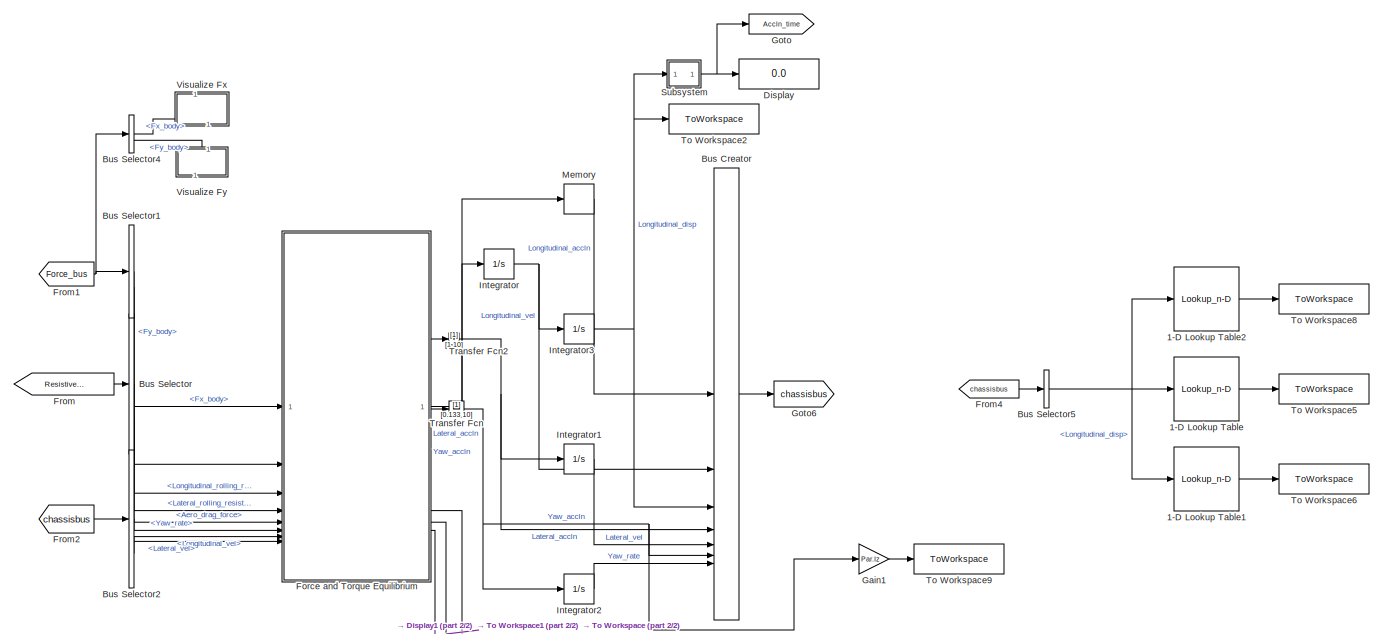
[diagram: Vehicle dynamics/Force and Torque Equilibrium - part 1/2, full width, middle band]
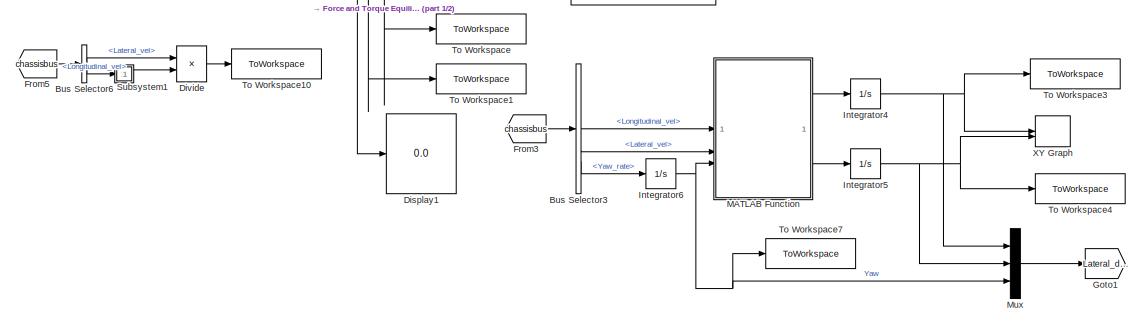
[diagram: Vehicle dynamics/Force and Torque Equilibrium - part 2/2, full width, bottom band]
BLOCK [SubSystem] Vehicle dynamics/Force and Torque Equilibrium
BLOCK [Lookup_n-D] Vehicle dynamics/Force and Torque Equilibrium/1-D Lookup Table
  BreakpointsForDimension1 = ctrl_s
  Commented = on
  InputPortMap = u0
  InternalRulePriority = Speed
  NumberOfTableDimensions = 1
  RndMeth = Simplest
  Table = path_X
BLOCK [Lookup_n-D] Vehicle dynamics/Force and Torque Equilibrium/1-D Lookup Table1
  BreakpointsForDimension1 = ctrl_s
  Commented = on
  InputPortMap = u0
  InternalRulePriority = Speed
  NumberOfTableDimensions = 1
  RndMeth = Simplest
  Table = path_Y
BLOCK [Lookup_n-D] Vehicle dynamics/Force and Torque Equilibrium/1-D Lookup Table2
  BreakpointsForDimension1 = ctrl_s
  Commented = on
  InputPortMap = u0
  InternalRulePriority = Speed
  NumberOfTableDimensions = 1
  RndMeth = Simplest
  Table = path_Theta
BLOCK [BusCreator] Vehicle dynamics/Force and Torque Equilibrium/Bus Creator
  DisplayOption = bar
  InheritFromInputs = on
  Inputs = 7
BLOCK [BusSelector] Vehicle dynamics/Force and Torque Equilibrium/Bus Selector
  OutputSignals = Longitudinal_rolling_resistance,Lateral_rolling_resistance,Aero_drag_force
BLOCK [BusSelector] Vehicle dynamics/Force and Torque Equilibrium/Bus Selector1
  OutputSignals = Fx_body,Fy_body
BLOCK [BusSelector] Vehicle dynamics/Force and Torque Equilibrium/Bus Selector2
  OutputSignals = Yaw_rate,Longitudinal_vel,Lateral_vel
BLOCK [BusSelector] Vehicle dynamics/Force and Torque Equilibrium/Bus Selector3
  OutputSignals = Longitudinal_vel,Lateral_vel,Yaw_rate
BLOCK [BusSelector] Vehicle dynamics/Force and Torque Equilibrium/Bus Selector4
  OutputSignals = Fx_body,Fy_body
BLOCK [BusSelector] Vehicle dynamics/Force and Torque Equilibrium/Bus Selector5
  Commented = on
  OutputSignals = Longitudinal_disp
BLOCK [BusSelector] Vehicle dynamics/Force and Torque Equilibrium/Bus Selector6
  OutputSignals = Lateral_vel,Longitudinal_vel
BLOCK [Display] Vehicle dynamics/Force and Torque Equilibrium/Display
  Decimation = 1
BLOCK [Display] Vehicle dynamics/Force and Torque Equilibrium/Display1
  Decimation = 1
BLOCK [Product] Vehicle dynamics/Force and Torque Equilibrium/Divide
  Inputs = */
BLOCK [SubSystem] Vehicle dynamics/Force and Torque Equilibrium/Force and Torque Equilibrium
  ErrorFcn = Stateflow.Translate.translate
  PermitHierarchicalResolution = ExplicitOnly
  SFBlockType = MATLAB Function
  TreatAsAtomicUnit = on
BLOCK [Demux] Vehicle dynamics/Force and Torque Equilibrium/Force and Torque Equilibrium/ Demux 
  Outputs = 1
BLOCK [S-Function] Vehicle dynamics/Force and Torque Equilibrium/Force and Torque Equilibrium/ SFunction 
  EnableBusSupport = off
  FunctionName = sf_sfun
  Parameters = Par
  PortCounts = [8 7]
  SFcnIsStateOwnerBlock = off
  SFunctionDeploymentMode = off
  Tag = Stateflow S-Function 23
BLOCK [Terminator] Vehicle dynamics/Force and Torque Equilibrium/Force and Torque Equilibrium/ Terminator 
BLOCK [Inport] Vehicle dynamics/Force and Torque Equilibrium/Force and Torque Equilibrium/B_F_drag
  Port = 5
BLOCK [Inport] Vehicle dynamics/Force and Torque Equilibrium/Force and Torque Equilibrium/B_Fx
BLOCK [Inport] Vehicle dynamics/Force and Torque Equilibrium/Force and Torque Equilibrium/B_Fx_roll
  Port = 3
BLOCK [Inport] Vehicle dynamics/Force and Torque Equilibrium/Force and Torque Equilibrium/B_Fy
  Port = 2
BLOCK [Inport] Vehicle dynamics/Force and Torque Equilibrium/Force and Torque Equilibrium/B_Fy_roll
  Port = 4
BLOCK [Outport] Vehicle dynamics/Force and Torque Equilibrium/Force and Torque Equilibrium/Mz_individual
  Port = 6
BLOCK [Outport] Vehicle dynamics/Force and Torque Equilibrium/Force and Torque Equilibrium/ax
BLOCK [Outport] Vehicle dynamics/Force and Torque Equilibrium/Force and Torque Equilibrium/ax_sensor
  Port = 5
BLOCK [Outport] Vehicle dynamics/Force and Torque Equilibrium/Force and Torque Equilibrium/ay
  Port = 2
BLOCK [Outport] Vehicle dynamics/Force and Torque Equilibrium/Force and Torque Equilibrium/ay_sensor
  Port = 4
BLOCK [Outport] Vehicle dynamics/Force and Torque Equilibrium/Force and Torque Equilibrium/r_dot
  Port = 3
BLOCK [Inport] Vehicle dynamics/Force and Torque Equilibrium/Force and Torque Equilibrium/vx
  Port = 7
BLOCK [Inport] Vehicle dynamics/Force and Torque Equilibrium/Force and Torque Equilibrium/vy
  Port = 8
BLOCK [Inport] Vehicle dynamics/Force and Torque Equilibrium/Force and Torque Equilibrium/yawrate
  Port = 6
BLOCK [From] Vehicle dynamics/Force and Torque Equilibrium/From
  GotoTag = Resistive_force_bus
  TagVisibility = global
BLOCK [From] Vehicle dynamics/Force and Torque Equilibrium/From1
  GotoTag = Force_bus
  TagVisibility = global
BLOCK [From] Vehicle dynamics/Force and Torque Equilibrium/From2
  GotoTag = chassisbus
  TagVisibility = global
BLOCK [From] Vehicle dynamics/Force and Torque Equilibrium/From3
  GotoTag = chassisbus
  TagVisibility = global
BLOCK [From] Vehicle dynamics/Force and Torque Equilibrium/From4
  Commented = on
  GotoTag = chassisbus
  TagVisibility = global
BLOCK [From] Vehicle dynamics/Force and Torque Equilibrium/From5
  GotoTag = chassisbus
  TagVisibility = global
BLOCK [Gain] Vehicle dynamics/Force and Torque Equilibrium/Gain1
  Gain = Par.Iz
BLOCK [Goto] Vehicle dynamics/Force and Torque Equilibrium/Goto
  GotoTag = Accln_time
  TagVisibility = global
BLOCK [Goto] Vehicle dynamics/Force and Torque Equilibrium/Goto1
  GotoTag = Lateral_driver_inputs
  TagVisibility = global
BLOCK [Goto] Vehicle dynamics/Force and Torque Equilibrium/Goto6
  GotoTag = chassisbus
  TagVisibility = global
BLOCK [Integrator] Vehicle dynamics/Force and Torque Equilibrium/Integrator
  InitialCondition = init_vx
  LimitOutput = on
  LowerSaturationLimit = 0
  UpperSaturationLimit = 1e6
BLOCK [Integrator] Vehicle dynamics/Force and Torque Equilibrium/Integrator1
  InitialCondition = init_vy
  LimitOutput = on
  UpperSaturationLimit = 1e6
BLOCK [Integrator] Vehicle dynamics/Force and Torque Equilibrium/Integrator2
  InitialCondition = init_r
  LimitOutput = on
  UpperSaturationLimit = 1e6
BLOCK [Integrator] Vehicle dynamics/Force and Torque Equilibrium/Integrator3
BLOCK [Integrator] Vehicle dynamics/Force and Torque Equilibrium/Integrator4
BLOCK [Integrator] Vehicle dynamics/Force and Torque Equilibrium/Integrator5
BLOCK [Integrator] Vehicle dynamics/Force and Torque Equilibrium/Integrator6
BLOCK [SubSystem] Vehicle dynamics/Force and Torque Equilibrium/MATLAB Function
  ErrorFcn = Stateflow.Translate.translate
  PermitHierarchicalResolution = ExplicitOnly
  SFBlockType = MATLAB Function
  TreatAsAtomicUnit = on
BLOCK [Demux] Vehicle dynamics/Force and Torque Equilibrium/MATLAB Function/ Demux 
  Outputs = 1
BLOCK [S-Function] Vehicle dynamics/Force and Torque Equilibrium/MATLAB Function/ SFunction 
  EnableBusSupport = off
  FunctionName = sf_sfun
  PortCounts = [3 3]
  SFcnIsStateOwnerBlock = off
  SFunctionDeploymentMode = off
  Tag = Stateflow S-Function 31
BLOCK [Terminator] Vehicle dynamics/Force and Torque Equilibrium/MATLAB Function/ Terminator 
BLOCK [Outport] Vehicle dynamics/Force and Torque Equilibrium/MATLAB Function/V_X
BLOCK [Outport] Vehicle dynamics/Force and Torque Equilibrium/MATLAB Function/V_Y
  Port = 2
BLOCK [Inport] Vehicle dynamics/Force and Torque Equilibrium/MATLAB Function/psi
  Port = 3
BLOCK [Inport] Vehicle dynamics/Force and Torque Equilibrium/MATLAB Function/vx
BLOCK [Inport] Vehicle dynamics/Force and Torque Equilibrium/MATLAB Function/vy
  Port = 2
BLOCK [Memory] Vehicle dynamics/Force and Torque Equilibrium/Memory
BLOCK [Mux] Vehicle dynamics/Force and Torque Equilibrium/Mux
  DisplayOption = bar
  Inputs = 3
BLOCK [SubSystem] Vehicle dynamics/Force and Torque Equilibrium/Subsystem
BLOCK [Clock] Vehicle dynamics/Force and Torque Equilibrium/Subsystem/Clock
BLOCK [Reference] Vehicle dynamics/Force and Torque Equilibrium/Subsystem/Compare To Constant  REF=simulink/Logic and Bit
Operations/Compare
To Constant
  SourceBlock = simulink/Logic and Bit\nOperations/Compare\nTo Constant
  SourceType = Compare To Constant
BLOCK [Reference] Vehicle dynamics/Force and Torque Equilibrium/Subsystem/Detect Rise Positive  REF=simulink/Logic and Bit
Operations/Detect Rise
Positive
  SourceBlock = simulink/Logic and Bit\nOperations/Detect Rise\nPositive
  SourceType = Detect Rise Positive
BLOCK [Inport] Vehicle dynamics/Force and Torque Equilibrium/Subsystem/In1
BLOCK [Outport] Vehicle dynamics/Force and Torque Equilibrium/Subsystem/Out1
BLOCK [SubSystem] Vehicle dynamics/Force and Torque Equilibrium/Subsystem/Triggered Subsystem
  TreatAsAtomicUnit = on
BLOCK [Inport] Vehicle dynamics/Force and Torque Equilibrium/Subsystem/Triggered Subsystem/In1
BLOCK [Outport] Vehicle dynamics/Force and Torque Equilibrium/Subsystem/Triggered Subsystem/Out1
BLOCK [TriggerPort] Vehicle dynamics/Force and Torque Equilibrium/Subsystem/Triggered Subsystem/Trigger
  StatesWhenEnabling = held
  VariantControl = (inherit)
BLOCK [SubSystem] Vehicle dynamics/Force and Torque Equilibrium/Subsystem1
BLOCK [Constant] Vehicle dynamics/Force and Torque Equilibrium/Subsystem1/Constant
  Value = 0.001
BLOCK [Inport] Vehicle dynamics/Force and Torque Equilibrium/Subsystem1/In1
BLOCK [Outport] Vehicle dynamics/Force and Torque Equilibrium/Subsystem1/Out1
BLOCK [Switch] Vehicle dynamics/Force and Torque Equilibrium/Subsystem1/Switch
  Criteria = u2 > Threshold
  InputSameDT = off
  SaturateOnIntegerOverflow = off
BLOCK [ToWorkspace] Vehicle dynamics/Force and Torque Equilibrium/To Workspace
  Commented = on
  FixptAsFi = on
  MaxDataPoints = inf
  SampleTime = -1
  SaveFormat = Timeseries
  VariableName = Lateral_accln_sensor
BLOCK [ToWorkspace] Vehicle dynamics/Force and Torque Equilibrium/To Workspace1
  Commented = on
  FixptAsFi = on
  MaxDataPoints = inf
  SampleTime = -1
  SaveFormat = Timeseries
  VariableName = Longitudinal_accln_sensor
BLOCK [ToWorkspace] Vehicle dynamics/Force and Torque Equilibrium/To Workspace10
  FixptAsFi = on
  MaxDataPoints = inf
  SampleTime = -1
  SaveFormat = Timeseries
  VariableName = Sideslip_angle
BLOCK [ToWorkspace] Vehicle dynamics/Force and Torque Equilibrium/To Workspace2
  FixptAsFi = on
  MaxDataPoints = inf
  SampleTime = -1
  SaveFormat = Timeseries
  VariableName = disp
BLOCK [ToWorkspace] Vehicle dynamics/Force and Torque Equilibrium/To Workspace3
  FixptAsFi = on
  MaxDataPoints = inf
  SampleTime = -1
  SaveFormat = Timeseries
  VariableName = x
BLOCK [ToWorkspace] Vehicle dynamics/Force and Torque Equilibrium/To Workspace4
  FixptAsFi = on
  MaxDataPoints = inf
  SampleTime = -1
  SaveFormat = Timeseries
  VariableName = y
BLOCK [ToWorkspace] Vehicle dynamics/Force and Torque Equilibrium/To Workspace5
  Commented = on
  FixptAsFi = on
  MaxDataPoints = inf
  SampleTime = -1
  SaveFormat = Timeseries
  VariableName = path_X_ts
BLOCK [ToWorkspace] Vehicle dynamics/Force and Torque Equilibrium/To Workspace6
  Commented = on
  FixptAsFi = on
  MaxDataPoints = inf
  SampleTime = -1
  SaveFormat = Timeseries
  VariableName = path_Y_ts
BLOCK [ToWorkspace] Vehicle dynamics/Force and Torque Equilibrium/To Workspace7
  FixptAsFi = on
  MaxDataPoints = inf
  SampleTime = -1
  SaveFormat = Timeseries
  VariableName = psi
BLOCK [ToWorkspace] Vehicle dynamics/Force and Torque Equilibrium/To Workspace8
  Commented = on
  FixptAsFi = on
  MaxDataPoints = inf
  SampleTime = -1
  SaveFormat = Timeseries
  VariableName = path_Theta_ts
BLOCK [ToWorkspace] Vehicle dynamics/Force and Torque Equilibrium/To Workspace9
  FixptAsFi = on
  MaxDataPoints = inf
  SampleTime = -1
  SaveFormat = Timeseries
  VariableName = Yaw_moment
BLOCK [TransferFcn] Vehicle dynamics/Force and Torque Equilibrium/Transfer Fcn
  Denominator = [0.133 10]
BLOCK [TransferFcn] Vehicle dynamics/Force and Torque Equilibrium/Transfer Fcn2
  Denominator = [1 10]
BLOCK [SubSystem] Vehicle dynamics/Force and Torque Equilibrium/Visualize Fx
  NameLocation = top
  PortSchema = {"entries":[{"content":{"sides":[{"content":{},"type":"ConnectorPlacement.EquallySpacedRectSide","uuid":"1b308914-9cf8-47f9-8fbc-f2a7158e3eb5"},{"content":{"side":"RIGHT"},"type":"ConnectorPlacement.EquallySpacedRectSide","uuid":"484927c0-b1be-45c4-bf4e-6bbdeba32628"},{"content":{"side":"TOP"},"type":"ConnectorPlacement.EquallySpacedRectSide","uuid":"29e445e7-e31e-448a-ad1b-232db6da9c2a"},{"conten...<+325ch>
BLOCK [Demux] Vehicle dynamics/Force and Torque Equilibrium/Visualize Fx/Demux
BLOCK [Inport] Vehicle dynamics/Force and Torque Equilibrium/Visualize Fx/Fx_body
BLOCK [ToWorkspace] Vehicle dynamics/Force and Torque Equilibrium/Visualize Fx/To Workspace
  FixptAsFi = on
  MaxDataPoints = inf
  SampleTime = -1
  SaveFormat = Timeseries
  VariableName = Longitudinal_force_body_fl
BLOCK [ToWorkspace] Vehicle dynamics/Force and Torque Equilibrium/Visualize Fx/To Workspace1
  FixptAsFi = on
  MaxDataPoints = inf
  SampleTime = -1
  SaveFormat = Timeseries
  VariableName = Longitudinal_force_body_fr
BLOCK [ToWorkspace] Vehicle dynamics/Force and Torque Equilibrium/Visualize Fx/To Workspace2
  FixptAsFi = on
  MaxDataPoints = inf
  SampleTime = -1
  SaveFormat = Timeseries
  VariableName = Longitudinal_force_body_rl
BLOCK [ToWorkspace] Vehicle dynamics/Force and Torque Equilibrium/Visualize Fx/To Workspace3
  FixptAsFi = on
  MaxDataPoints = inf
  SampleTime = -1
  SaveFormat = Timeseries
  VariableName = Longitudinal_force_body_rr
BLOCK [Scope] Vehicle dynamics/Force and Torque Equilibrium/Visualize Fx/Visualize_longitudinal_force_body
  ActiveDisplayYMaximum = 1
  ActiveDisplayYMinimum = -1
  DataLoggingVariableName = ScopeData2
  Floating = off
  GraphicalSettings = {"Style":{"BackgroundColor":[0.12941176470588237,0.12941176470588237,0.12941176470588237],"AxesColor":[0.07058823529411765,0.07058823529411765,0.07058823529411765],"LabelsColor":[0.8509803921568627,0.8509803921568627,0.8509803921568627],"PreserveColors":false,"Visible":[true,true,true,true],"LineStyle":["-","-","-","-"],"LineWidth":[1.5,1.5,1.5,1.5],"BarWidth":[0.9,0.9,0.9,0.9],"LineColor":["auto"...<+3148ch>
  LayoutDimensionsString = [2,2]
  MultipleDisplayCache = [{"MaxYLimMag":1,"MaxYLimReal":1,"MinYLimMag":0,"MinYLimReal":-1,"PlotAsMagnitudePhase":false,"ShowGrid":true,"ShowLegend":false,"Title":"%<SignalLabel>","YLabel":""},{"MaxYLimMag":1,"MaxYLimReal":1,"MinYLimMag":0,"MinYLimReal":-1,"PlotAsMagnitudePhase":false,"ShowGrid":true,"ShowLegend":false,"Title":"%<SignalLabel>","YLabel":""},{"MaxYLimMag":1,"MaxYLimReal":1,"MinYLimMag":0,"MinYLimReal":-1,"Pl...<+265ch>  <repeated x9 — deduplicated; at blocks: Visualize_longitudinal_force_body, Visualize_lateral_force_body, Visualize_slip_angle, Visualize_slip_ratio, Visualize_longitudinal_force_tire, Visualize_lateral_force_tire, Visualize_Fz>
  NumInputPorts = 4
  ScopeFrameLocation = window
  WasSavedAsWebScope = on
  WindowPosition = [0.000000,12.000000,1536.000000,841.000000,]
BLOCK [SubSystem] Vehicle dynamics/Force and Torque Equilibrium/Visualize Fy
  PortSchema = {"entries":[{"content":{"sides":[{"content":{},"type":"ConnectorPlacement.EquallySpacedRectSide","uuid":"1b308914-9cf8-47f9-8fbc-f2a7158e3eb5"},{"content":{"side":"RIGHT"},"type":"ConnectorPlacement.EquallySpacedRectSide","uuid":"484927c0-b1be-45c4-bf4e-6bbdeba32628"},{"content":{"side":"TOP"},"type":"ConnectorPlacement.EquallySpacedRectSide","uuid":"29e445e7-e31e-448a-ad1b-232db6da9c2a"},{"conten...<+325ch>
BLOCK [Demux] Vehicle dynamics/Force and Torque Equilibrium/Visualize Fy/Demux
BLOCK [Inport] Vehicle dynamics/Force and Torque Equilibrium/Visualize Fy/Fy_tire
BLOCK [ToWorkspace] Vehicle dynamics/Force and Torque Equilibrium/Visualize Fy/To Workspace1
  FixptAsFi = on
  MaxDataPoints = inf
  SampleTime = -1
  SaveFormat = Timeseries
  VariableName = Lateral_force_body_fl
BLOCK [ToWorkspace] Vehicle dynamics/Force and Torque Equilibrium/Visualize Fy/To Workspace2
  FixptAsFi = on
  MaxDataPoints = inf
  SampleTime = -1
  SaveFormat = Timeseries
  VariableName = Lateral_force_body_fr
BLOCK [ToWorkspace] Vehicle dynamics/Force and Torque Equilibrium/Visualize Fy/To Workspace3
  FixptAsFi = on
  MaxDataPoints = inf
  SampleTime = -1
  SaveFormat = Timeseries
  VariableName = Lateral_force_body_rl
BLOCK [ToWorkspace] Vehicle dynamics/Force and Torque Equilibrium/Visualize Fy/To Workspace4
  FixptAsFi = on
  MaxDataPoints = inf
  SampleTime = -1
  SaveFormat = Timeseries
  VariableName = Lateral_force_body_rr
BLOCK [Scope] Vehicle dynamics/Force and Torque Equilibrium/Visualize Fy/Visualize_lateral_force_body
  ActiveDisplayYMaximum = 1
  ActiveDisplayYMinimum = -1
  DataLoggingVariableName = ScopeData2
  Floating = off
  GraphicalSettings = {"Style":{"BackgroundColor":[0.12941176470588237,0.12941176470588237,0.12941176470588237],"AxesColor":[0.07058823529411765,0.07058823529411765,0.07058823529411765],"LabelsColor":[0.8509803921568627,0.8509803921568627,0.8509803921568627],"PreserveColors":false,"Visible":[true,true,true,true],"LineStyle":["-","-","-","-"],"LineWidth":[1.5,1.5,1.5,1.5],"BarWidth":[0.9,0.9,0.9,0.9],"LineColor":["auto"...<+3108ch>
  LayoutDimensionsString = [2,2]
  NumInputPorts = 4
  ScopeFrameLocation = window
  WasSavedAsWebScope = on
  WindowPosition = [0.000000,12.000000,1536.000000,841.000000,]
BLOCK [Record] Vehicle dynamics/Force and Torque Equilibrium/XY Graph
  CompatibilityTag = XY
  FileSettingsInternal = {"entries":[{"content":{"excelSettings":{"content":{},"type":"Streamout.ExcelSettings"},"parquetSettings":{"content":{},"type":"Streamout.ParquetSettings"}},"type":"Streamout.FileSettingStorage","uuid":""}],"packageUris":["http:\/\/schema.mathworks.com\/mf0\/streamout_blocks\/R2020a"],"version":"1.0"}
  FrameSettings = [0, 0]
  Layout = [1 1]
  NumPorts = 2.0
  SignalsInternal = {"entries":[{"content":{"signals":[{"content":{"blockPath":[],"dimensions":[1],"domain":"","lineColor":"#22b573","lineWidth":2,"port":1,"sid":[""],"signalID":1,"signalName":"Integrator4"},"type":"RecordBlkView.Signal","uuid":""},{"content":{"blockPath":[],"dimensions":[1],"domain":"","lineColor":"#0072bd","lineWidth":2,"port":2,"sid":[""],"signalID":2,"signalName":"Integrator5"},"type":"RecordBlkV...<+168ch>
  VisualizationBindings = {"xyplotplugin":{"info":[{"series":[{"bindingParametersList":[{"parameter":"X-Axis","signalID":148193,"signalName":"Integrator4"},{"parameter":"Y-Axis","signalID":148197,"signalName":"Integrator5"}],"seriesID":0}],"subplotID":1}]}}
BLOCK [SubSystem] Vehicle dynamics/Fx, Fy calculations
  Commented = on
BLOCK [SubSystem] Vehicle dynamics/Fx, Fy calculations with grip limit
BLOCK [BusCreator] Vehicle dynamics/Fx, Fy calculations with grip limit/Bus Creator
  DisplayOption = bar
  InheritFromInputs = on
  Inputs = 7
BLOCK [BusCreator] Vehicle dynamics/Fx, Fy calculations with grip limit/Bus Creator1
  DisplayOption = bar
  InheritFromInputs = on
  Inputs = 2
BLOCK [BusSelector] Vehicle dynamics/Fx, Fy calculations with grip limit/Bus Selector
  OutputSignals = Fz
BLOCK [BusSelector] Vehicle dynamics/Fx, Fy calculations with grip limit/Bus Selector1
  OutputSignals = Steer_FL,Steer_FR
BLOCK [From] Vehicle dynamics/Fx, Fy calculations with grip limit/From
  GotoTag = Fx_tyre
BLOCK [From] Vehicle dynamics/Fx, Fy calculations with grip limit/From1
  GotoTag = Fy_tyre
BLOCK [From] Vehicle dynamics/Fx, Fy calculations with grip limit/From12
  GotoTag = Steer_bus
  TagVisibility = global
BLOCK [From] Vehicle dynamics/Fx, Fy calculations with grip limit/From2
  GotoTag = Mz
BLOCK [From] Vehicle dynamics/Fx, Fy calculations with grip limit/From3
  GotoTag = Camber_angle
  TagVisibility = global
BLOCK [From] Vehicle dynamics/Fx, Fy calculations with grip limit/From8
  GotoTag = Wheel_bus
  TagVisibility = global
BLOCK [Gain] Vehicle dynamics/Fx, Fy calculations with grip limit/Gain1
  Gain = 0.95
BLOCK [Goto] Vehicle dynamics/Fx, Fy calculations with grip limit/Goto
  GotoTag = Fy_tyre
BLOCK [Goto] Vehicle dynamics/Fx, Fy calculations with grip limit/Goto1
  GotoTag = Fx_tyre
BLOCK [Goto] Vehicle dynamics/Fx, Fy calculations with grip limit/Goto2
  GotoTag = Mz
  NameLocation = right
BLOCK [Goto] Vehicle dynamics/Fx, Fy calculations with grip limit/Goto3
  GotoTag = Force_bus
  TagVisibility = global
BLOCK [Goto] Vehicle dynamics/Fx, Fy calculations with grip limit/Goto4
  GotoTag = slip_bus
  TagVisibility = global
BLOCK [SubSystem] Vehicle dynamics/Fx, Fy calculations with grip limit/Grip_limit
BLOCK [BusSelector] Vehicle dynamics/Fx, Fy calculations with grip limit/Grip_limit/Bus Selector2
  OutputSignals = Dx,Dy
BLOCK [BusSelector] Vehicle dynamics/Fx, Fy calculations with grip limit/Grip_limit/Bus Selector3
  OutputSignals = Longitudinal_disp
BLOCK [From] Vehicle dynamics/Fx, Fy calculations with grip limit/Grip_limit/From4
  GotoTag = Force_bus
  TagVisibility = global
BLOCK [From] Vehicle dynamics/Fx, Fy calculations with grip limit/Grip_limit/From5
  GotoTag = chassisbus
  TagVisibility = global
BLOCK [Inport] Vehicle dynamics/Fx, Fy calculations with grip limit/Grip_limit/Fx
BLOCK [Outport] Vehicle dynamics/Fx, Fy calculations with grip limit/Grip_limit/Fx_new
BLOCK [Outport] Vehicle dynamics/Fx, Fy calculations with grip limit/Grip_limit/Fy_new
  Port = 2
BLOCK [Inport] Vehicle dynamics/Fx, Fy calculations with grip limit/Grip_limit/Fy_tyre
  Port = 2
BLOCK [SubSystem] Vehicle dynamics/Fx, Fy calculations with grip limit/Grip_limit/MATLAB Function1
  ErrorFcn = Stateflow.Translate.translate
  PermitHierarchicalResolution = ExplicitOnly
  SFBlockType = MATLAB Function
  TreatAsAtomicUnit = on
BLOCK [Demux] Vehicle dynamics/Fx, Fy calculations with grip limit/Grip_limit/MATLAB Function1/ Demux 
  Outputs = 1
BLOCK [S-Function] Vehicle dynamics/Fx, Fy calculations with grip limit/Grip_limit/MATLAB Function1/ SFunction 
  EnableBusSupport = off
  FunctionName = sf_sfun
  PortCounts = [5 3]
  SFcnIsStateOwnerBlock = off
  SFunctionDeploymentMode = off
  Tag = Stateflow S-Function 42
BLOCK [Terminator] Vehicle dynamics/Fx, Fy calculations with grip limit/Grip_limit/MATLAB Function1/ Terminator 
BLOCK [Inport] Vehicle dynamics/Fx, Fy calculations with grip limit/Grip_limit/MATLAB Function1/Dx
  Port = 3
BLOCK [Inport] Vehicle dynamics/Fx, Fy calculations with grip limit/Grip_limit/MATLAB Function1/Dy
  Port = 4
BLOCK [Inport] Vehicle dynamics/Fx, Fy calculations with grip limit/Grip_limit/MATLAB Function1/Fx
BLOCK [Outport] Vehicle dynamics/Fx, Fy calculations with grip limit/Grip_limit/MATLAB Function1/Fx_new
BLOCK [Inport] Vehicle dynamics/Fx, Fy calculations with grip limit/Grip_limit/MATLAB Function1/Fy
  Port = 2
BLOCK [Outport] Vehicle dynamics/Fx, Fy calculations with grip limit/Grip_limit/MATLAB Function1/Fy_new
  Port = 2
BLOCK [Inport] Vehicle dynamics/Fx, Fy calculations with grip limit/Grip_limit/MATLAB Function1/s
  Port = 5
BLOCK [SubSystem] Vehicle dynamics/Fx, Fy calculations with grip limit/MATLAB Function
  Commented = on
  ErrorFcn = Stateflow.Translate.translate
  PermitHierarchicalResolution = ExplicitOnly
  SFBlockType = MATLAB Function
  TreatAsAtomicUnit = on
BLOCK [Demux] Vehicle dynamics/Fx, Fy calculations with grip limit/MATLAB Function/ Demux 
  Outputs = 1
BLOCK [S-Function] Vehicle dynamics/Fx, Fy calculations with grip limit/MATLAB Function/ SFunction 
  EnableBusSupport = off
  FunctionName = sf_sfun
  PortCounts = [1 2]
  SFcnIsStateOwnerBlock = off
  SFunctionDeploymentMode = off
  Tag = Stateflow S-Function 45
BLOCK [Terminator] Vehicle dynamics/Fx, Fy calculations with grip limit/MATLAB Function/ Terminator 
BLOCK [Inport] Vehicle dynamics/Fx, Fy calculations with grip limit/MATLAB Function/u
BLOCK [Outport] Vehicle dynamics/Fx, Fy calculations with grip limit/MATLAB Function/y
BLOCK [Scope] Vehicle dynamics/Fx, Fy calculations with grip limit/Scope
  ActiveDisplayYMaximum = 1
  ActiveDisplayYMinimum = -1
  Commented = on
  DataLoggingVariableName = ScopeData16
  Floating = off
  GraphicalSettings = {"Style":{"BackgroundColor":[0.12941176470588237,0.12941176470588237,0.12941176470588237],"AxesColor":[0.07058823529411765,0.07058823529411765,0.07058823529411765],"LabelsColor":[0.8509803921568627,0.8509803921568627,0.8509803921568627],"PreserveColors":false,"Visible":[true],"LineStyle":["-"],"LineWidth":[1.5],"BarWidth":[0.9],"LineColor":["auto"],"LineFaceAlpha":[1],"LineEdgeAlpha":[1],"Marker":...<+2302ch>
  MultipleDisplayCache = [{"MaxYLimMag":1,"MaxYLimReal":1,"MinYLimMag":0,"MinYLimReal":-1,"PlotAsMagnitudePhase":false,"ShowGrid":true,"ShowLegend":false,"Title":"%<SignalLabel>","YLabel":""}]
  NumInputPorts = 1
  ScopeFrameLocation = window
  WasSavedAsWebScope = on
  WindowPosition = [488.000000,222.000000,560.000000,420.000000,]
BLOCK [SubSystem] Vehicle dynamics/Fx, Fy calculations with grip limit/Simplified Tire Model
  ErrorFcn = Stateflow.Translate.translate
  PermitHierarchicalResolution = ExplicitOnly
  SFBlockType = MATLAB Function
  TreatAsAtomicUnit = on
BLOCK [Demux] Vehicle dynamics/Fx, Fy calculations with grip limit/Simplified Tire Model/ Demux 
  Outputs = 1
BLOCK [S-Function] Vehicle dynamics/Fx, Fy calculations with grip limit/Simplified Tire Model/ SFunction 
  EnableBusSupport = off
  FunctionName = sf_sfun
  Parameters = Par,TireData,sus_par
  PortCounts = [4 8]
  SFcnIsStateOwnerBlock = off
  SFunctionDeploymentMode = off
  Tag = Stateflow S-Function 24
BLOCK [Terminator] Vehicle dynamics/Fx, Fy calculations with grip limit/Simplified Tire Model/ Terminator 
BLOCK [Outport] Vehicle dynamics/Fx, Fy calculations with grip limit/Simplified Tire Model/Dx
  Port = 6
BLOCK [Outport] Vehicle dynamics/Fx, Fy calculations with grip limit/Simplified Tire Model/Dy
  Port = 7
BLOCK [Outport] Vehicle dynamics/Fx, Fy calculations with grip limit/Simplified Tire Model/Fx
BLOCK [Outport] Vehicle dynamics/Fx, Fy calculations with grip limit/Simplified Tire Model/Fy
  Port = 2
BLOCK [Inport] Vehicle dynamics/Fx, Fy calculations with grip limit/Simplified Tire Model/Fz
BLOCK [Outport] Vehicle dynamics/Fx, Fy calculations with grip limit/Simplified Tire Model/Mu_x
  Port = 4
BLOCK [Outport] Vehicle dynamics/Fx, Fy calculations with grip limit/Simplified Tire Model/Mu_y
  Port = 5
BLOCK [Outport] Vehicle dynamics/Fx, Fy calculations with grip limit/Simplified Tire Model/Self_aligning_torque
  Port = 3
BLOCK [Inport] Vehicle dynamics/Fx, Fy calculations with grip limit/Simplified Tire Model/camber_angles
  Port = 4
BLOCK [Inport] Vehicle dynamics/Fx, Fy calculations with grip limit/Simplified Tire Model/slip_angles
  Port = 3
BLOCK [Inport] Vehicle dynamics/Fx, Fy calculations with grip limit/Simplified Tire Model/slip_ratios
  Port = 2
BLOCK [SubSystem] Vehicle dynamics/Fx, Fy calculations with grip limit/Slip_angle_calculation
BLOCK [BusSelector] Vehicle dynamics/Fx, Fy calculations with grip limit/Slip_angle_calculation/Bus Selector25
  OutputSignals = Longitudinal_vel
BLOCK [BusSelector] Vehicle dynamics/Fx, Fy calculations with grip limit/Slip_angle_calculation/Bus Selector26
  OutputSignals = Lateral_vel
BLOCK [BusSelector] Vehicle dynamics/Fx, Fy calculations with grip limit/Slip_angle_calculation/Bus Selector27
  OutputSignals = Yaw_rate
BLOCK [BusSelector] Vehicle dynamics/Fx, Fy calculations with grip limit/Slip_angle_calculation/Bus Selector28
  OutputSignals = Steer_FL
BLOCK [BusSelector] Vehicle dynamics/Fx, Fy calculations with grip limit/Slip_angle_calculation/Bus Selector29
  OutputSignals = Steer_FR
BLOCK [From] Vehicle dynamics/Fx, Fy calculations with grip limit/Slip_angle_calculation/From
  GotoTag = Toe_angles
  TagVisibility = global
BLOCK [From] Vehicle dynamics/Fx, Fy calculations with grip limit/Slip_angle_calculation/From1
  GotoTag = chassisbus
  TagVisibility = global
BLOCK [From] Vehicle dynamics/Fx, Fy calculations with grip limit/Slip_angle_calculation/From2
  GotoTag = Steer_bus
  TagVisibility = global
BLOCK [SubSystem] Vehicle dynamics/Fx, Fy calculations with grip limit/Slip_angle_calculation/Slip Angles
  ErrorFcn = Stateflow.Translate.translate
  PermitHierarchicalResolution = ExplicitOnly
  SFBlockType = MATLAB Function
  TreatAsAtomicUnit = on
BLOCK [Demux] Vehicle dynamics/Fx, Fy calculations with grip limit/Slip_angle_calculation/Slip Angles/ Demux 
  Outputs = 1
BLOCK [S-Function] Vehicle dynamics/Fx, Fy calculations with grip limit/Slip_angle_calculation/Slip Angles/ SFunction 
  EnableBusSupport = off
  FunctionName = sf_sfun
  Parameters = Par
  PortCounts = [5 2]
  SFcnIsStateOwnerBlock = off
  SFunctionDeploymentMode = off
  Tag = Stateflow S-Function 33
BLOCK [Terminator] Vehicle dynamics/Fx, Fy calculations with grip limit/Slip_angle_calculation/Slip Angles/ Terminator 
BLOCK [Inport] Vehicle dynamics/Fx, Fy calculations with grip limit/Slip_angle_calculation/Slip Angles/Lateral_vel
  Port = 2
BLOCK [Inport] Vehicle dynamics/Fx, Fy calculations with grip limit/Slip_angle_calculation/Slip Angles/Longitudinal_vel
BLOCK [Inport] Vehicle dynamics/Fx, Fy calculations with grip limit/Slip_angle_calculation/Slip Angles/Steer_FL
  Port = 4
BLOCK [Inport] Vehicle dynamics/Fx, Fy calculations with grip limit/Slip_angle_calculation/Slip Angles/Steer_FR
  Port = 5
BLOCK [Outport] Vehicle dynamics/Fx, Fy calculations with grip limit/Slip_angle_calculation/Slip Angles/slip_angles
BLOCK [Inport] Vehicle dynamics/Fx, Fy calculations with grip limit/Slip_angle_calculation/Slip Angles/yawrate
  Port = 3
BLOCK [SubSystem] Vehicle dynamics/Fx, Fy calculations with grip limit/Slip_angle_calculation/Subsystem
BLOCK [Sum] Vehicle dynamics/Fx, Fy calculations with grip limit/Slip_angle_calculation/Subsystem/Subtract
  IconShape = rectangular
  Inputs = +-
BLOCK [Inport] Vehicle dynamics/Fx, Fy calculations with grip limit/Slip_angle_calculation/Subsystem/slip_angles
  Port = 2
BLOCK [Outport] Vehicle dynamics/Fx, Fy calculations with grip limit/Slip_angle_calculation/Subsystem/slip_ratio
BLOCK [Inport] Vehicle dynamics/Fx, Fy calculations with grip limit/Slip_angle_calculation/Subsystem/toe
BLOCK [SubSystem] Vehicle dynamics/Fx, Fy calculations with grip limit/Slip_angle_calculation/Visualize Slip_angle
  Commented = on
BLOCK [Demux] Vehicle dynamics/Fx, Fy calculations with grip limit/Slip_angle_calculation/Visualize Slip_angle/Demux
BLOCK [ToWorkspace] Vehicle dynamics/Fx, Fy calculations with grip limit/Slip_angle_calculation/Visualize Slip_angle/To Workspace
  FixptAsFi = on
  MaxDataPoints = inf
  SampleTime = -1
  SaveFormat = Timeseries
  VariableName = slip_angle_fl
BLOCK [ToWorkspace] Vehicle dynamics/Fx, Fy calculations with grip limit/Slip_angle_calculation/Visualize Slip_angle/To Workspace1
  FixptAsFi = on
  MaxDataPoints = inf
  SampleTime = -1
  SaveFormat = Timeseries
  VariableName = slip_angle_fr
BLOCK [ToWorkspace] Vehicle dynamics/Fx, Fy calculations with grip limit/Slip_angle_calculation/Visualize Slip_angle/To Workspace2
  FixptAsFi = on
  MaxDataPoints = inf
  SampleTime = -1
  SaveFormat = Timeseries
  VariableName = slip_angle_rl
BLOCK [ToWorkspace] Vehicle dynamics/Fx, Fy calculations with grip limit/Slip_angle_calculation/Visualize Slip_angle/To Workspace3
  FixptAsFi = on
  MaxDataPoints = inf
  SampleTime = -1
  SaveFormat = Timeseries
  VariableName = slip_angle_rr
BLOCK [Scope] Vehicle dynamics/Fx, Fy calculations with grip limit/Slip_angle_calculation/Visualize Slip_angle/Visualize_slip_angle
  ActiveDisplayYMaximum = 1
  ActiveDisplayYMinimum = -1
  DataLoggingVariableName = ScopeData2
  Floating = off
  GraphicalSettings = {"Style":{"BackgroundColor":[0.12941176470588237,0.12941176470588237,0.12941176470588237],"AxesColor":[0.07058823529411765,0.07058823529411765,0.07058823529411765],"LabelsColor":[0.8509803921568627,0.8509803921568627,0.8509803921568627],"PreserveColors":false,"Visible":[true,true,true,true],"LineStyle":["-","-","-","-"],"LineWidth":[1.5,1.5,1.5,1.5],"BarWidth":[0.9,0.9,0.9,0.9],"LineColor":["auto"...<+3358ch>
  LayoutDimensionsString = [2,2]
  NumInputPorts = 4
  ScopeFrameLocation = window
  WasSavedAsWebScope = on
  WindowPosition = [1.000000,1.000000,1536.000000,841.000000,]
BLOCK [Inport] Vehicle dynamics/Fx, Fy calculations with grip limit/Slip_angle_calculation/Visualize Slip_angle/slip_angle
BLOCK [Outport] Vehicle dynamics/Fx, Fy calculations with grip limit/Slip_angle_calculation/effective_slip_angle
BLOCK [SubSystem] Vehicle dynamics/Fx, Fy calculations with grip limit/Slip_ratio_calculation
BLOCK [BusSelector] Vehicle dynamics/Fx, Fy calculations with grip limit/Slip_ratio_calculation/Bus Selector21
  OutputSignals = Longitudinal_vel
BLOCK [BusSelector] Vehicle dynamics/Fx, Fy calculations with grip limit/Slip_ratio_calculation/Bus Selector22
  OutputSignals = Yaw_rate
BLOCK [BusSelector] Vehicle dynamics/Fx, Fy calculations with grip limit/Slip_ratio_calculation/Bus Selector23
  OutputSignals = Omega
BLOCK [BusSelector] Vehicle dynamics/Fx, Fy calculations with grip limit/Slip_ratio_calculation/Bus Selector24
  OutputSignals = Lateral_vel
BLOCK [BusSelector] Vehicle dynamics/Fx, Fy calculations with grip limit/Slip_ratio_calculation/Bus Selector32
  OutputSignals = Steer_FL
BLOCK [BusSelector] Vehicle dynamics/Fx, Fy calculations with grip limit/Slip_ratio_calculation/Bus Selector33
  OutputSignals = Steer_FR
BLOCK [From] Vehicle dynamics/Fx, Fy calculations with grip limit/Slip_ratio_calculation/From
  GotoTag = chassisbus
  TagVisibility = global
BLOCK [From] Vehicle dynamics/Fx, Fy calculations with grip limit/Slip_ratio_calculation/From1
  GotoTag = Wheel_bus
  TagVisibility = global
BLOCK [From] Vehicle dynamics/Fx, Fy calculations with grip limit/Slip_ratio_calculation/From2
  GotoTag = Steer_bus
  TagVisibility = global
BLOCK [SubSystem] Vehicle dynamics/Fx, Fy calculations with grip limit/Slip_ratio_calculation/Visualize Slip_ratios
  Commented = on
BLOCK [Demux] Vehicle dynamics/Fx, Fy calculations with grip limit/Slip_ratio_calculation/Visualize Slip_ratios/Demux
BLOCK [ToWorkspace] Vehicle dynamics/Fx, Fy calculations with grip limit/Slip_ratio_calculation/Visualize Slip_ratios/To Workspace
  FixptAsFi = on
  MaxDataPoints = inf
  SampleTime = -1
  SaveFormat = Timeseries
  VariableName = slip_ratio_fl
BLOCK [ToWorkspace] Vehicle dynamics/Fx, Fy calculations with grip limit/Slip_ratio_calculation/Visualize Slip_ratios/To Workspace1
  FixptAsFi = on
  MaxDataPoints = inf
  SampleTime = -1
  SaveFormat = Timeseries
  VariableName = slip_ratio_fr
BLOCK [ToWorkspace] Vehicle dynamics/Fx, Fy calculations with grip limit/Slip_ratio_calculation/Visualize Slip_ratios/To Workspace2
  FixptAsFi = on
  MaxDataPoints = inf
  SampleTime = -1
  SaveFormat = Timeseries
  VariableName = slip_ratio_rl
BLOCK [ToWorkspace] Vehicle dynamics/Fx, Fy calculations with grip limit/Slip_ratio_calculation/Visualize Slip_ratios/To Workspace3
  FixptAsFi = on
  MaxDataPoints = inf
  SampleTime = -1
  SaveFormat = Timeseries
  VariableName = slip_ratio_rr
BLOCK [Scope] Vehicle dynamics/Fx, Fy calculations with grip limit/Slip_ratio_calculation/Visualize Slip_ratios/Visualize_slip_ratio
  ActiveDisplayYMaximum = 1
  ActiveDisplayYMinimum = -1
  DataLoggingVariableName = ScopeData2
  Floating = off
  GraphicalSettings = {"Style":{"BackgroundColor":[0.12941176470588237,0.12941176470588237,0.12941176470588237],"AxesColor":[0.07058823529411765,0.07058823529411765,0.07058823529411765],"LabelsColor":[0.8509803921568627,0.8509803921568627,0.8509803921568627],"PreserveColors":false,"Visible":[true,true,true,true],"LineStyle":["-","-","-","-"],"LineWidth":[1.5,1.5,1.5,1.5],"BarWidth":[0.9,0.9,0.9,0.9],"LineColor":["auto"...<+3344ch>
  LayoutDimensionsString = [2,2]
  NumInputPorts = 4
  ScopeFrameLocation = window
  WasSavedAsWebScope = on
  WindowPosition = [0.000000,12.000000,1536.000000,841.000000,]
BLOCK [Inport] Vehicle dynamics/Fx, Fy calculations with grip limit/Slip_ratio_calculation/Visualize Slip_ratios/slip_ratio
BLOCK [SubSystem] Vehicle dynamics/Fx, Fy calculations with grip limit/Slip_ratio_calculation/slip ratios
  ErrorFcn = Stateflow.Translate.translate
  NameLocation = top
  PermitHierarchicalResolution = ExplicitOnly
  SFBlockType = MATLAB Function
  TreatAsAtomicUnit = on
BLOCK [Demux] Vehicle dynamics/Fx, Fy calculations with grip limit/Slip_ratio_calculation/slip ratios/ Demux 
  Outputs = 1
BLOCK [S-Function] Vehicle dynamics/Fx, Fy calculations with grip limit/Slip_ratio_calculation/slip ratios/ SFunction 
  EnableBusSupport = off
  FunctionName = sf_sfun
  Parameters = Par
  PortCounts = [6 2]
  SFcnIsStateOwnerBlock = off
  SFunctionDeploymentMode = off
  Tag = Stateflow S-Function 34
BLOCK [Terminator] Vehicle dynamics/Fx, Fy calculations with grip limit/Slip_ratio_calculation/slip ratios/ Terminator 
BLOCK [Inport] Vehicle dynamics/Fx, Fy calculations with grip limit/Slip_ratio_calculation/slip ratios/Omega
  Port = 4
BLOCK [Inport] Vehicle dynamics/Fx, Fy calculations with grip limit/Slip_ratio_calculation/slip ratios/Steer_FL
  Port = 5
BLOCK [Inport] Vehicle dynamics/Fx, Fy calculations with grip limit/Slip_ratio_calculation/slip ratios/Steer_FR
  Port = 6
BLOCK [Inport] Vehicle dynamics/Fx, Fy calculations with grip limit/Slip_ratio_calculation/slip ratios/Vx
BLOCK [Inport] Vehicle dynamics/Fx, Fy calculations with grip limit/Slip_ratio_calculation/slip ratios/Vy
  Port = 2
BLOCK [Outport] Vehicle dynamics/Fx, Fy calculations with grip limit/Slip_ratio_calculation/slip ratios/slip_ratios
BLOCK [Inport] Vehicle dynamics/Fx, Fy calculations with grip limit/Slip_ratio_calculation/slip ratios/yawrate
  Port = 3
BLOCK [Outport] Vehicle dynamics/Fx, Fy calculations with grip limit/Slip_ratio_calculation/slip_ratios
BLOCK [ToWorkspace] Vehicle dynamics/Fx, Fy calculations with grip limit/To Workspace
  FixptAsFi = on
  MaxDataPoints = inf
  SampleTime = -1
  SaveFormat = Timeseries
  VariableName = Dx
BLOCK [ToWorkspace] Vehicle dynamics/Fx, Fy calculations with grip limit/To Workspace1
  FixptAsFi = on
  MaxDataPoints = inf
  SampleTime = -1
  SaveFormat = Timeseries
  VariableName = Dy
BLOCK [SubSystem] Vehicle dynamics/Fx, Fy calculations with grip limit/Tyre_relaxation
  NameLocation = top
BLOCK [BusSelector] Vehicle dynamics/Fx, Fy calculations with grip limit/Tyre_relaxation/Bus Selector
  OutputSignals = Longitudinal_vel
BLOCK [From] Vehicle dynamics/Fx, Fy calculations with grip limit/Tyre_relaxation/From
  GotoTag = chassisbus
  TagVisibility = global
BLOCK [Inport] Vehicle dynamics/Fx, Fy calculations with grip limit/Tyre_relaxation/Fx_ss
BLOCK [Outport] Vehicle dynamics/Fx, Fy calculations with grip limit/Tyre_relaxation/Fx_w
BLOCK [Integrator] Vehicle dynamics/Fx, Fy calculations with grip limit/Tyre_relaxation/Integrator
BLOCK [SubSystem] Vehicle dynamics/Fx, Fy calculations with grip limit/Tyre_relaxation/MATLAB Function
  ErrorFcn = Stateflow.Translate.translate
  PermitHierarchicalResolution = ExplicitOnly
  SFBlockType = MATLAB Function
  TreatAsAtomicUnit = on
BLOCK [Demux] Vehicle dynamics/Fx, Fy calculations with grip limit/Tyre_relaxation/MATLAB Function/ Demux 
  Outputs = 1
BLOCK [S-Function] Vehicle dynamics/Fx, Fy calculations with grip limit/Tyre_relaxation/MATLAB Function/ SFunction 
  EnableBusSupport = off
  FunctionName = sf_sfun
  PortCounts = [3 2]
  SFcnIsStateOwnerBlock = off
  SFunctionDeploymentMode = off
  Tag = Stateflow S-Function 36
BLOCK [Terminator] Vehicle dynamics/Fx, Fy calculations with grip limit/Tyre_relaxation/MATLAB Function/ Terminator 
BLOCK [Inport] Vehicle dynamics/Fx, Fy calculations with grip limit/Tyre_relaxation/MATLAB Function/Fx_act
  Port = 2
BLOCK [Outport] Vehicle dynamics/Fx, Fy calculations with grip limit/Tyre_relaxation/MATLAB Function/Fx_dot
BLOCK [Inport] Vehicle dynamics/Fx, Fy calculations with grip limit/Tyre_relaxation/MATLAB Function/Fx_ss
BLOCK [Inport] Vehicle dynamics/Fx, Fy calculations with grip limit/Tyre_relaxation/MATLAB Function/Vx
  Port = 3
BLOCK [SubSystem] Vehicle dynamics/Fx, Fy calculations with grip limit/Visualise_Fy_B
  Commented = on
BLOCK [Inport] Vehicle dynamics/Fx, Fy calculations with grip limit/Visualise_Fy_B/Fy_B
BLOCK [SubSystem] Vehicle dynamics/Fx, Fy calculations with grip limit/Visualise_Fy_B/MATLAB Function
  ErrorFcn = Stateflow.Translate.translate
  PermitHierarchicalResolution = ExplicitOnly
  SFBlockType = MATLAB Function
  TreatAsAtomicUnit = on
BLOCK [Demux] Vehicle dynamics/Fx, Fy calculations with grip limit/Visualise_Fy_B/MATLAB Function/ Demux 
  Outputs = 1
BLOCK [S-Function] Vehicle dynamics/Fx, Fy calculations with grip limit/Visualise_Fy_B/MATLAB Function/ SFunction 
  EnableBusSupport = off
  FunctionName = sf_sfun
  PortCounts = [1 5]
  SFcnIsStateOwnerBlock = off
  SFunctionDeploymentMode = off
  Tag = Stateflow S-Function 38
BLOCK [Terminator] Vehicle dynamics/Fx, Fy calculations with grip limit/Visualise_Fy_B/MATLAB Function/ Terminator 
BLOCK [Outport] Vehicle dynamics/Fx, Fy calculations with grip limit/Visualise_Fy_B/MATLAB Function/Fy_B_fl
BLOCK [Outport] Vehicle dynamics/Fx, Fy calculations with grip limit/Visualise_Fy_B/MATLAB Function/Fy_B_fr
  Port = 2
BLOCK [Outport] Vehicle dynamics/Fx, Fy calculations with grip limit/Visualise_Fy_B/MATLAB Function/Fy_B_rl
  Port = 3
BLOCK [Outport] Vehicle dynamics/Fx, Fy calculations with grip limit/Visualise_Fy_B/MATLAB Function/Fy_B_rr
  Port = 4
BLOCK [Inport] Vehicle dynamics/Fx, Fy calculations with grip limit/Visualise_Fy_B/MATLAB Function/Fy_tire
BLOCK [Scope] Vehicle dynamics/Fx, Fy calculations with grip limit/Visualise_Fy_B/Visualise Fy_B
  Commented = on
  Floating = off
  GraphicalSettings = {"GraphicalSettings":{"LegacySettings":true,"Style":{"Style":{"PlotType":"Auto"}}}}
  NumInputPorts = 4
  WasSavedAsWebScope = on
BLOCK [SubSystem] Vehicle dynamics/Fx, Fy calculations with grip limit/Visualiser
  Commented = on
BLOCK [Demux] Vehicle dynamics/Fx, Fy calculations with grip limit/Visualiser/Demux
BLOCK [Demux] Vehicle dynamics/Fx, Fy calculations with grip limit/Visualiser/Demux1
BLOCK [Demux] Vehicle dynamics/Fx, Fy calculations with grip limit/Visualiser/Demux2
BLOCK [Scope] Vehicle dynamics/Fx, Fy calculations with grip limit/Visualiser/Scope
  Floating = off
  GraphicalSettings = {"GraphicalSettings":{"LegacySettings":true,"Style":{"Style":{"PlotType":"Auto"}}}}
  NumInputPorts = 4
  WasSavedAsWebScope = on
BLOCK [Scope] Vehicle dynamics/Fx, Fy calculations with grip limit/Visualiser/Scope1
  Floating = off
  GraphicalSettings = {"GraphicalSettings":{"LegacySettings":true,"Style":{"Style":{"PlotType":"Auto"}}}}
  NumInputPorts = 4
  WasSavedAsWebScope = on
BLOCK [Scope] Vehicle dynamics/Fx, Fy calculations with grip limit/Visualiser/Scope2
  Floating = off
  GraphicalSettings = {"GraphicalSettings":{"LegacySettings":true,"Style":{"Style":{"PlotType":"Auto"}}}}
  NumInputPorts = 4
  WasSavedAsWebScope = on
BLOCK [Inport] Vehicle dynamics/Fx, Fy calculations with grip limit/Visualiser/mu_x
  Port = 2
BLOCK [Inport] Vehicle dynamics/Fx, Fy calculations with grip limit/Visualiser/mu_y
  Port = 3
BLOCK [Inport] Vehicle dynamics/Fx, Fy calculations with grip limit/Visualiser/mz
BLOCK [SubSystem] Vehicle dynamics/Fx, Fy calculations with grip limit/Wheel to Vehicle Coordinates
  ErrorFcn = Stateflow.Translate.translate
  PermitHierarchicalResolution = ExplicitOnly
  SFBlockType = MATLAB Function
  TreatAsAtomicUnit = on
BLOCK [Demux] Vehicle dynamics/Fx, Fy calculations with grip limit/Wheel to Vehicle Coordinates/ Demux 
  Outputs = 1
BLOCK [S-Function] Vehicle dynamics/Fx, Fy calculations with grip limit/Wheel to Vehicle Coordinates/ SFunction 
  EnableBusSupport = off
  FunctionName = sf_sfun
  PortCounts = [4 3]
  SFcnIsStateOwnerBlock = off
  SFunctionDeploymentMode = off
  Tag = Stateflow S-Function 39
BLOCK [Terminator] Vehicle dynamics/Fx, Fy calculations with grip limit/Wheel to Vehicle Coordinates/ Terminator 
BLOCK [Outport] Vehicle dynamics/Fx, Fy calculations with grip limit/Wheel to Vehicle Coordinates/Fx_b
BLOCK [Inport] Vehicle dynamics/Fx, Fy calculations with grip limit/Wheel to Vehicle Coordinates/Fx_w
BLOCK [Outport] Vehicle dynamics/Fx, Fy calculations with grip limit/Wheel to Vehicle Coordinates/Fy_b
  Port = 2
BLOCK [Inport] Vehicle dynamics/Fx, Fy calculations with grip limit/Wheel to Vehicle Coordinates/Fy_w
  Port = 2
BLOCK [Inport] Vehicle dynamics/Fx, Fy calculations with grip limit/Wheel to Vehicle Coordinates/Steer_FL
  Port = 3
BLOCK [Inport] Vehicle dynamics/Fx, Fy calculations with grip limit/Wheel to Vehicle Coordinates/Steer_FR
  Port = 4
BLOCK [BusCreator] Vehicle dynamics/Fx, Fy calculations/Bus Creator
  DisplayOption = bar
  InheritFromInputs = on
  Inputs = 7
BLOCK [BusCreator] Vehicle dynamics/Fx, Fy calculations/Bus Creator1
  DisplayOption = bar
  InheritFromInputs = on
  Inputs = 2
BLOCK [BusSelector] Vehicle dynamics/Fx, Fy calculations/Bus Selector
  OutputSignals = Fz
BLOCK [BusSelector] Vehicle dynamics/Fx, Fy calculations/Bus Selector1
  OutputSignals = Steer_FL,Steer_FR
BLOCK [From] Vehicle dynamics/Fx, Fy calculations/From
  GotoTag = Fx_tyre
BLOCK [From] Vehicle dynamics/Fx, Fy calculations/From1
  GotoTag = Fy_tyre
BLOCK [From] Vehicle dynamics/Fx, Fy calculations/From12
  GotoTag = Steer_bus
  TagVisibility = global
BLOCK [From] Vehicle dynamics/Fx, Fy calculations/From2
  GotoTag = Mz
BLOCK [From] Vehicle dynamics/Fx, Fy calculations/From3
  GotoTag = Camber_angle
  TagVisibility = global
BLOCK [From] Vehicle dynamics/Fx, Fy calculations/From8
  GotoTag = Wheel_bus
  TagVisibility = global
BLOCK [Gain] Vehicle dynamics/Fx, Fy calculations/Gain1
  Gain = 0.95
BLOCK [Goto] Vehicle dynamics/Fx, Fy calculations/Goto
  GotoTag = Fy_tyre
BLOCK [Goto] Vehicle dynamics/Fx, Fy calculations/Goto1
  GotoTag = Fx_tyre
BLOCK [Goto] Vehicle dynamics/Fx, Fy calculations/Goto2
  GotoTag = Mz
  NameLocation = left
BLOCK [Goto] Vehicle dynamics/Fx, Fy calculations/Goto3
  GotoTag = Force_bus
  TagVisibility = global
BLOCK [Goto] Vehicle dynamics/Fx, Fy calculations/Goto4
  GotoTag = slip_bus
  TagVisibility = global
BLOCK [Scope] Vehicle dynamics/Fx, Fy calculations/Scope
  ActiveDisplayYMaximum = 1339.9884497692244
  ActiveDisplayYMinimum = -148.8876055299138
  DataLoggingVariableName = ScopeData3
  Floating = off
  GraphicalSettings = {"Style":{"BackgroundColor":[0.12941176470588237,0.12941176470588237,0.12941176470588237],"AxesColor":[0.07058823529411765,0.07058823529411765,0.07058823529411765],"LabelsColor":[0.8509803921568627,0.8509803921568627,0.8509803921568627],"PreserveColors":false,"Visible":[true,true,true,true,true,true,true,true],"LineStyle":["-","-","-","-","-","-","-","-"],"LineWidth":[1.5,1.5,1.5,1.5,1.5,1.5,1.5,1...<+2891ch>
  MultipleDisplayCache = [{"MaxYLimMag":1339.9884497692244,"MaxYLimReal":1339.9884497692244,"MinYLimMag":0,"MinYLimReal":-148.8876055299138,"PlotAsMagnitudePhase":false,"ShowGrid":true,"ShowLegend":false,"Title":"%<SignalLabel>","YLabel":""}]
  NumInputPorts = 2
  ScopeFrameLocation = window
  WasSavedAsWebScope = on
  WindowPosition = [1.000000,1.000000,1536.000000,841.000000,]
BLOCK [SubSystem] Vehicle dynamics/Fx, Fy calculations/Simplified Tire Model
  ErrorFcn = Stateflow.Translate.translate
  PermitHierarchicalResolution = ExplicitOnly
  SFBlockType = MATLAB Function
  TreatAsAtomicUnit = on
BLOCK [Demux] Vehicle dynamics/Fx, Fy calculations/Simplified Tire Model/ Demux 
  Outputs = 1
BLOCK [S-Function] Vehicle dynamics/Fx, Fy calculations/Simplified Tire Model/ SFunction 
  EnableBusSupport = off
  FunctionName = sf_sfun
  Parameters = Par,TireData,sus_par
  PortCounts = [4 8]
  SFcnIsStateOwnerBlock = off
  SFunctionDeploymentMode = off
  Tag = Stateflow S-Function 7
BLOCK [Terminator] Vehicle dynamics/Fx, Fy calculations/Simplified Tire Model/ Terminator 
BLOCK [Outport] Vehicle dynamics/Fx, Fy calculations/Simplified Tire Model/Dx
  Port = 6
BLOCK [Outport] Vehicle dynamics/Fx, Fy calculations/Simplified Tire Model/Dy
  Port = 7
BLOCK [Outport] Vehicle dynamics/Fx, Fy calculations/Simplified Tire Model/Fx
BLOCK [Outport] Vehicle dynamics/Fx, Fy calculations/Simplified Tire Model/Fy
  Port = 2
BLOCK [Inport] Vehicle dynamics/Fx, Fy calculations/Simplified Tire Model/Fz
BLOCK [Outport] Vehicle dynamics/Fx, Fy calculations/Simplified Tire Model/Mu_x
  Port = 4
BLOCK [Outport] Vehicle dynamics/Fx, Fy calculations/Simplified Tire Model/Mu_y
  Port = 5
BLOCK [Outport] Vehicle dynamics/Fx, Fy calculations/Simplified Tire Model/Self_aligning_torque
  Port = 3
BLOCK [Inport] Vehicle dynamics/Fx, Fy calculations/Simplified Tire Model/camber_angles
  Port = 4
BLOCK [Inport] Vehicle dynamics/Fx, Fy calculations/Simplified Tire Model/slip_angles
  Port = 3
BLOCK [Inport] Vehicle dynamics/Fx, Fy calculations/Simplified Tire Model/slip_ratios
  Port = 2
BLOCK [SubSystem] Vehicle dynamics/Fx, Fy calculations/Slip_angle_calculation
BLOCK [BusSelector] Vehicle dynamics/Fx, Fy calculations/Slip_angle_calculation/Bus Selector25
  OutputSignals = Longitudinal_vel
BLOCK [BusSelector] Vehicle dynamics/Fx, Fy calculations/Slip_angle_calculation/Bus Selector26
  OutputSignals = Lateral_vel
BLOCK [BusSelector] Vehicle dynamics/Fx, Fy calculations/Slip_angle_calculation/Bus Selector27
  OutputSignals = Yaw_rate
BLOCK [BusSelector] Vehicle dynamics/Fx, Fy calculations/Slip_angle_calculation/Bus Selector28
  OutputSignals = Steer_FL
BLOCK [BusSelector] Vehicle dynamics/Fx, Fy calculations/Slip_angle_calculation/Bus Selector29
  OutputSignals = Steer_FR
BLOCK [From] Vehicle dynamics/Fx, Fy calculations/Slip_angle_calculation/From
  GotoTag = Toe_angles
  TagVisibility = global
BLOCK [From] Vehicle dynamics/Fx, Fy calculations/Slip_angle_calculation/From1
  GotoTag = chassisbus
  TagVisibility = global
BLOCK [From] Vehicle dynamics/Fx, Fy calculations/Slip_angle_calculation/From2
  GotoTag = Steer_bus
  TagVisibility = global
BLOCK [SubSystem] Vehicle dynamics/Fx, Fy calculations/Slip_angle_calculation/Slip Angles
  ErrorFcn = Stateflow.Translate.translate
  PermitHierarchicalResolution = ExplicitOnly
  SFBlockType = MATLAB Function
  TreatAsAtomicUnit = on
BLOCK [Demux] Vehicle dynamics/Fx, Fy calculations/Slip_angle_calculation/Slip Angles/ Demux 
  Outputs = 1
BLOCK [S-Function] Vehicle dynamics/Fx, Fy calculations/Slip_angle_calculation/Slip Angles/ SFunction 
  EnableBusSupport = off
  FunctionName = sf_sfun
  Parameters = Par
  PortCounts = [5 2]
  SFcnIsStateOwnerBlock = off
  SFunctionDeploymentMode = off
  Tag = Stateflow S-Function 4
BLOCK [Terminator] Vehicle dynamics/Fx, Fy calculations/Slip_angle_calculation/Slip Angles/ Terminator 
BLOCK [Inport] Vehicle dynamics/Fx, Fy calculations/Slip_angle_calculation/Slip Angles/Lateral_vel
  Port = 2
BLOCK [Inport] Vehicle dynamics/Fx, Fy calculations/Slip_angle_calculation/Slip Angles/Longitudinal_vel
BLOCK [Inport] Vehicle dynamics/Fx, Fy calculations/Slip_angle_calculation/Slip Angles/Steer_FL
  Port = 4
BLOCK [Inport] Vehicle dynamics/Fx, Fy calculations/Slip_angle_calculation/Slip Angles/Steer_FR
  Port = 5
BLOCK [Outport] Vehicle dynamics/Fx, Fy calculations/Slip_angle_calculation/Slip Angles/slip_angles
BLOCK [Inport] Vehicle dynamics/Fx, Fy calculations/Slip_angle_calculation/Slip Angles/yawrate
  Port = 3
BLOCK [SubSystem] Vehicle dynamics/Fx, Fy calculations/Slip_angle_calculation/Subsystem
BLOCK [Sum] Vehicle dynamics/Fx, Fy calculations/Slip_angle_calculation/Subsystem/Subtract
  IconShape = rectangular
  Inputs = +-
BLOCK [Inport] Vehicle dynamics/Fx, Fy calculations/Slip_angle_calculation/Subsystem/slip_angles
  Port = 2
BLOCK [Outport] Vehicle dynamics/Fx, Fy calculations/Slip_angle_calculation/Subsystem/slip_ratio
BLOCK [Inport] Vehicle dynamics/Fx, Fy calculations/Slip_angle_calculation/Subsystem/toe
BLOCK [SubSystem] Vehicle dynamics/Fx, Fy calculations/Slip_angle_calculation/Visualize Slip_angle
  Commented = on
BLOCK [Demux] Vehicle dynamics/Fx, Fy calculations/Slip_angle_calculation/Visualize Slip_angle/Demux
BLOCK [ToWorkspace] Vehicle dynamics/Fx, Fy calculations/Slip_angle_calculation/Visualize Slip_angle/To Workspace
  FixptAsFi = on
  MaxDataPoints = inf
  SampleTime = -1
  SaveFormat = Timeseries
  VariableName = slip_angle_fl
BLOCK [ToWorkspace] Vehicle dynamics/Fx, Fy calculations/Slip_angle_calculation/Visualize Slip_angle/To Workspace1
  FixptAsFi = on
  MaxDataPoints = inf
  SampleTime = -1
  SaveFormat = Timeseries
  VariableName = slip_angle_fr
BLOCK [ToWorkspace] Vehicle dynamics/Fx, Fy calculations/Slip_angle_calculation/Visualize Slip_angle/To Workspace2
  FixptAsFi = on
  MaxDataPoints = inf
  SampleTime = -1
  SaveFormat = Timeseries
  VariableName = slip_angle_rl
BLOCK [ToWorkspace] Vehicle dynamics/Fx, Fy calculations/Slip_angle_calculation/Visualize Slip_angle/To Workspace3
  FixptAsFi = on
  MaxDataPoints = inf
  SampleTime = -1
  SaveFormat = Timeseries
  VariableName = slip_angle_rr
BLOCK [Scope] Vehicle dynamics/Fx, Fy calculations/Slip_angle_calculation/Visualize Slip_angle/Visualize_slip_angle
  ActiveDisplayYMaximum = 1
  ActiveDisplayYMinimum = -1
  DataLoggingVariableName = ScopeData2
  Floating = off
  GraphicalSettings = {"Style":{"BackgroundColor":[0.12941176470588237,0.12941176470588237,0.12941176470588237],"AxesColor":[0.07058823529411765,0.07058823529411765,0.07058823529411765],"LabelsColor":[0.8509803921568627,0.8509803921568627,0.8509803921568627],"PreserveColors":false,"Visible":[true,true,true,true],"LineStyle":["-","-","-","-"],"LineWidth":[1.5,1.5,1.5,1.5],"BarWidth":[0.9,0.9,0.9,0.9],"LineColor":["auto"...<+3358ch>
  LayoutDimensionsString = [2,2]
  NumInputPorts = 4
  ScopeFrameLocation = window
  WasSavedAsWebScope = on
  WindowPosition = [1.000000,1.000000,1536.000000,841.000000,]
BLOCK [Inport] Vehicle dynamics/Fx, Fy calculations/Slip_angle_calculation/Visualize Slip_angle/slip_angle
BLOCK [Outport] Vehicle dynamics/Fx, Fy calculations/Slip_angle_calculation/effective_slip_angle
BLOCK [SubSystem] Vehicle dynamics/Fx, Fy calculations/Slip_ratio_calculation
BLOCK [BusSelector] Vehicle dynamics/Fx, Fy calculations/Slip_ratio_calculation/Bus Selector21
  OutputSignals = Longitudinal_vel
BLOCK [BusSelector] Vehicle dynamics/Fx, Fy calculations/Slip_ratio_calculation/Bus Selector22
  OutputSignals = Yaw_rate
BLOCK [BusSelector] Vehicle dynamics/Fx, Fy calculations/Slip_ratio_calculation/Bus Selector23
  OutputSignals = Omega
BLOCK [BusSelector] Vehicle dynamics/Fx, Fy calculations/Slip_ratio_calculation/Bus Selector24
  OutputSignals = Lateral_vel
BLOCK [BusSelector] Vehicle dynamics/Fx, Fy calculations/Slip_ratio_calculation/Bus Selector32
  OutputSignals = Steer_FL
BLOCK [BusSelector] Vehicle dynamics/Fx, Fy calculations/Slip_ratio_calculation/Bus Selector33
  OutputSignals = Steer_FR
BLOCK [From] Vehicle dynamics/Fx, Fy calculations/Slip_ratio_calculation/From
  GotoTag = chassisbus
  TagVisibility = global
BLOCK [From] Vehicle dynamics/Fx, Fy calculations/Slip_ratio_calculation/From1
  GotoTag = Wheel_bus
  TagVisibility = global
BLOCK [From] Vehicle dynamics/Fx, Fy calculations/Slip_ratio_calculation/From2
  GotoTag = Steer_bus
  TagVisibility = global
BLOCK [SubSystem] Vehicle dynamics/Fx, Fy calculations/Slip_ratio_calculation/Visualize Slip_ratios
  Commented = on
BLOCK [Demux] Vehicle dynamics/Fx, Fy calculations/Slip_ratio_calculation/Visualize Slip_ratios/Demux
BLOCK [ToWorkspace] Vehicle dynamics/Fx, Fy calculations/Slip_ratio_calculation/Visualize Slip_ratios/To Workspace
  FixptAsFi = on
  MaxDataPoints = inf
  SampleTime = -1
  SaveFormat = Timeseries
  VariableName = slip_ratio_fl
BLOCK [ToWorkspace] Vehicle dynamics/Fx, Fy calculations/Slip_ratio_calculation/Visualize Slip_ratios/To Workspace1
  FixptAsFi = on
  MaxDataPoints = inf
  SampleTime = -1
  SaveFormat = Timeseries
  VariableName = slip_ratio_fr
BLOCK [ToWorkspace] Vehicle dynamics/Fx, Fy calculations/Slip_ratio_calculation/Visualize Slip_ratios/To Workspace2
  FixptAsFi = on
  MaxDataPoints = inf
  SampleTime = -1
  SaveFormat = Timeseries
  VariableName = slip_ratio_rl
BLOCK [ToWorkspace] Vehicle dynamics/Fx, Fy calculations/Slip_ratio_calculation/Visualize Slip_ratios/To Workspace3
  FixptAsFi = on
  MaxDataPoints = inf
  SampleTime = -1
  SaveFormat = Timeseries
  VariableName = slip_ratio_rr
BLOCK [Scope] Vehicle dynamics/Fx, Fy calculations/Slip_ratio_calculation/Visualize Slip_ratios/Visualize_slip_ratio
  ActiveDisplayYMaximum = 1
  ActiveDisplayYMinimum = -1
  DataLoggingVariableName = ScopeData2
  Floating = off
  GraphicalSettings = {"Style":{"BackgroundColor":[0.12941176470588237,0.12941176470588237,0.12941176470588237],"AxesColor":[0.07058823529411765,0.07058823529411765,0.07058823529411765],"LabelsColor":[0.8509803921568627,0.8509803921568627,0.8509803921568627],"PreserveColors":false,"Visible":[true,true,true,true],"LineStyle":["-","-","-","-"],"LineWidth":[1.5,1.5,1.5,1.5],"BarWidth":[0.9,0.9,0.9,0.9],"LineColor":["auto"...<+3344ch>
  LayoutDimensionsString = [2,2]
  NumInputPorts = 4
  ScopeFrameLocation = window
  WasSavedAsWebScope = on
  WindowPosition = [0.000000,12.000000,1536.000000,841.000000,]
BLOCK [Inport] Vehicle dynamics/Fx, Fy calculations/Slip_ratio_calculation/Visualize Slip_ratios/slip_ratio
BLOCK [SubSystem] Vehicle dynamics/Fx, Fy calculations/Slip_ratio_calculation/slip ratios
  ErrorFcn = Stateflow.Translate.translate
  NameLocation = top
  PermitHierarchicalResolution = ExplicitOnly
  SFBlockType = MATLAB Function
  TreatAsAtomicUnit = on
BLOCK [Demux] Vehicle dynamics/Fx, Fy calculations/Slip_ratio_calculation/slip ratios/ Demux 
  Outputs = 1
BLOCK [S-Function] Vehicle dynamics/Fx, Fy calculations/Slip_ratio_calculation/slip ratios/ SFunction 
  EnableBusSupport = off
  FunctionName = sf_sfun
  Parameters = Par
  PortCounts = [6 2]
  SFcnIsStateOwnerBlock = off
  SFunctionDeploymentMode = off
  Tag = Stateflow S-Function 5
BLOCK [Terminator] Vehicle dynamics/Fx, Fy calculations/Slip_ratio_calculation/slip ratios/ Terminator 
BLOCK [Inport] Vehicle dynamics/Fx, Fy calculations/Slip_ratio_calculation/slip ratios/Omega
  Port = 4
BLOCK [Inport] Vehicle dynamics/Fx, Fy calculations/Slip_ratio_calculation/slip ratios/Steer_FL
  Port = 5
BLOCK [Inport] Vehicle dynamics/Fx, Fy calculations/Slip_ratio_calculation/slip ratios/Steer_FR
  Port = 6
BLOCK [Inport] Vehicle dynamics/Fx, Fy calculations/Slip_ratio_calculation/slip ratios/Vx
BLOCK [Inport] Vehicle dynamics/Fx, Fy calculations/Slip_ratio_calculation/slip ratios/Vy
  Port = 2
BLOCK [Outport] Vehicle dynamics/Fx, Fy calculations/Slip_ratio_calculation/slip ratios/slip_ratios
BLOCK [Inport] Vehicle dynamics/Fx, Fy calculations/Slip_ratio_calculation/slip ratios/yawrate
  Port = 3
BLOCK [Outport] Vehicle dynamics/Fx, Fy calculations/Slip_ratio_calculation/slip_ratios
BLOCK [ToWorkspace] Vehicle dynamics/Fx, Fy calculations/To Workspace
  FixptAsFi = on
  MaxDataPoints = inf
  SampleTime = -1
  SaveFormat = Timeseries
  VariableName = Dx
BLOCK [ToWorkspace] Vehicle dynamics/Fx, Fy calculations/To Workspace1
  FixptAsFi = on
  MaxDataPoints = inf
  SampleTime = -1
  SaveFormat = Timeseries
  VariableName = Dy
BLOCK [SubSystem] Vehicle dynamics/Fx, Fy calculations/Tyre_relaxation
  NameLocation = top
BLOCK [BusSelector] Vehicle dynamics/Fx, Fy calculations/Tyre_relaxation/Bus Selector
  OutputSignals = Longitudinal_vel
BLOCK [From] Vehicle dynamics/Fx, Fy calculations/Tyre_relaxation/From
  GotoTag = chassisbus
  TagVisibility = global
BLOCK [Inport] Vehicle dynamics/Fx, Fy calculations/Tyre_relaxation/Fx_ss
BLOCK [Outport] Vehicle dynamics/Fx, Fy calculations/Tyre_relaxation/Fx_w
BLOCK [Integrator] Vehicle dynamics/Fx, Fy calculations/Tyre_relaxation/Integrator
BLOCK [SubSystem] Vehicle dynamics/Fx, Fy calculations/Tyre_relaxation/MATLAB Function
  ErrorFcn = Stateflow.Translate.translate
  PermitHierarchicalResolution = ExplicitOnly
  SFBlockType = MATLAB Function
  TreatAsAtomicUnit = on
BLOCK [Demux] Vehicle dynamics/Fx, Fy calculations/Tyre_relaxation/MATLAB Function/ Demux 
  Outputs = 1
BLOCK [S-Function] Vehicle dynamics/Fx, Fy calculations/Tyre_relaxation/MATLAB Function/ SFunction 
  EnableBusSupport = off
  FunctionName = sf_sfun
  PortCounts = [3 2]
  SFcnIsStateOwnerBlock = off
  SFunctionDeploymentMode = off
  Tag = Stateflow S-Function 35
BLOCK [Terminator] Vehicle dynamics/Fx, Fy calculations/Tyre_relaxation/MATLAB Function/ Terminator 
BLOCK [Inport] Vehicle dynamics/Fx, Fy calculations/Tyre_relaxation/MATLAB Function/Fx_act
  Port = 2
BLOCK [Outport] Vehicle dynamics/Fx, Fy calculations/Tyre_relaxation/MATLAB Function/Fx_dot
BLOCK [Inport] Vehicle dynamics/Fx, Fy calculations/Tyre_relaxation/MATLAB Function/Fx_ss
BLOCK [Inport] Vehicle dynamics/Fx, Fy calculations/Tyre_relaxation/MATLAB Function/Vx
  Port = 3
BLOCK [SubSystem] Vehicle dynamics/Fx, Fy calculations/Visualise_Fy_B
  Commented = on
BLOCK [Inport] Vehicle dynamics/Fx, Fy calculations/Visualise_Fy_B/Fy_B
BLOCK [SubSystem] Vehicle dynamics/Fx, Fy calculations/Visualise_Fy_B/MATLAB Function
  ErrorFcn = Stateflow.Translate.translate
  PermitHierarchicalResolution = ExplicitOnly
  SFBlockType = MATLAB Function
  TreatAsAtomicUnit = on
BLOCK [Demux] Vehicle dynamics/Fx, Fy calculations/Visualise_Fy_B/MATLAB Function/ Demux 
  Outputs = 1
BLOCK [S-Function] Vehicle dynamics/Fx, Fy calculations/Visualise_Fy_B/MATLAB Function/ SFunction 
  EnableBusSupport = off
  FunctionName = sf_sfun
  PortCounts = [1 5]
  SFcnIsStateOwnerBlock = off
  SFunctionDeploymentMode = off
  Tag = Stateflow S-Function 37
BLOCK [Terminator] Vehicle dynamics/Fx, Fy calculations/Visualise_Fy_B/MATLAB Function/ Terminator 
BLOCK [Outport] Vehicle dynamics/Fx, Fy calculations/Visualise_Fy_B/MATLAB Function/Fy_B_fl
BLOCK [Outport] Vehicle dynamics/Fx, Fy calculations/Visualise_Fy_B/MATLAB Function/Fy_B_fr
  Port = 2
BLOCK [Outport] Vehicle dynamics/Fx, Fy calculations/Visualise_Fy_B/MATLAB Function/Fy_B_rl
  Port = 3
BLOCK [Outport] Vehicle dynamics/Fx, Fy calculations/Visualise_Fy_B/MATLAB Function/Fy_B_rr
  Port = 4
BLOCK [Inport] Vehicle dynamics/Fx, Fy calculations/Visualise_Fy_B/MATLAB Function/Fy_tire
BLOCK [Scope] Vehicle dynamics/Fx, Fy calculations/Visualise_Fy_B/Visualise Fy_B
  Commented = on
  Floating = off
  GraphicalSettings = {"GraphicalSettings":{"LegacySettings":true,"Style":{"Style":{"PlotType":"Auto"}}}}
  NumInputPorts = 4
  WasSavedAsWebScope = on
BLOCK [SubSystem] Vehicle dynamics/Fx, Fy calculations/Visualiser
  Commented = on
BLOCK [Demux] Vehicle dynamics/Fx, Fy calculations/Visualiser/Demux
BLOCK [Demux] Vehicle dynamics/Fx, Fy calculations/Visualiser/Demux1
BLOCK [Demux] Vehicle dynamics/Fx, Fy calculations/Visualiser/Demux2
BLOCK [Scope] Vehicle dynamics/Fx, Fy calculations/Visualiser/Scope
  Floating = off
  GraphicalSettings = {"GraphicalSettings":{"LegacySettings":true,"Style":{"Style":{"PlotType":"Auto"}}}}
  NumInputPorts = 4
  WasSavedAsWebScope = on
BLOCK [Scope] Vehicle dynamics/Fx, Fy calculations/Visualiser/Scope1
  Floating = off
  GraphicalSettings = {"GraphicalSettings":{"LegacySettings":true,"Style":{"Style":{"PlotType":"Auto"}}}}
  NumInputPorts = 4
  WasSavedAsWebScope = on
BLOCK [Scope] Vehicle dynamics/Fx, Fy calculations/Visualiser/Scope2
  Floating = off
  GraphicalSettings = {"GraphicalSettings":{"LegacySettings":true,"Style":{"Style":{"PlotType":"Auto"}}}}
  NumInputPorts = 4
  WasSavedAsWebScope = on
BLOCK [Inport] Vehicle dynamics/Fx, Fy calculations/Visualiser/mu_x
  Port = 2
BLOCK [Inport] Vehicle dynamics/Fx, Fy calculations/Visualiser/mu_y
  Port = 3
BLOCK [Inport] Vehicle dynamics/Fx, Fy calculations/Visualiser/mz
BLOCK [SubSystem] Vehicle dynamics/Fx, Fy calculations/Wheel to Vehicle Coordinates
  ErrorFcn = Stateflow.Translate.translate
  PermitHierarchicalResolution = ExplicitOnly
  SFBlockType = MATLAB Function
  TreatAsAtomicUnit = on
BLOCK [Demux] Vehicle dynamics/Fx, Fy calculations/Wheel to Vehicle Coordinates/ Demux 
  Outputs = 1
BLOCK [S-Function] Vehicle dynamics/Fx, Fy calculations/Wheel to Vehicle Coordinates/ SFunction 
  EnableBusSupport = off
  FunctionName = sf_sfun
  PortCounts = [4 3]
  SFcnIsStateOwnerBlock = off
  SFunctionDeploymentMode = off
  Tag = Stateflow S-Function 8
BLOCK [Terminator] Vehicle dynamics/Fx, Fy calculations/Wheel to Vehicle Coordinates/ Terminator 
BLOCK [Outport] Vehicle dynamics/Fx, Fy calculations/Wheel to Vehicle Coordinates/Fx_b
BLOCK [Inport] Vehicle dynamics/Fx, Fy calculations/Wheel to Vehicle Coordinates/Fx_w
BLOCK [Outport] Vehicle dynamics/Fx, Fy calculations/Wheel to Vehicle Coordinates/Fy_b
  Port = 2
BLOCK [Inport] Vehicle dynamics/Fx, Fy calculations/Wheel to Vehicle Coordinates/Fy_w
  Port = 2
BLOCK [Inport] Vehicle dynamics/Fx, Fy calculations/Wheel to Vehicle Coordinates/Steer_FL
  Port = 3
BLOCK [Inport] Vehicle dynamics/Fx, Fy calculations/Wheel to Vehicle Coordinates/Steer_FR
  Port = 4
BLOCK [SubSystem] Vehicle dynamics/Rolling and Drag forces
BLOCK [SubSystem] Vehicle dynamics/Rolling and Drag forces/Aero Drag
  ErrorFcn = Stateflow.Translate.translate
  PermitHierarchicalResolution = ExplicitOnly
  SFBlockType = MATLAB Function
  TreatAsAtomicUnit = on
BLOCK [Demux] Vehicle dynamics/Rolling and Drag forces/Aero Drag/ Demux 
  Outputs = 1
BLOCK [S-Function] Vehicle dynamics/Rolling and Drag forces/Aero Drag/ SFunction 
  EnableBusSupport = off
  FunctionName = sf_sfun
  Parameters = aero_par
  PortCounts = [2 2]
  SFcnIsStateOwnerBlock = off
  SFunctionDeploymentMode = off
  Tag = Stateflow S-Function 19
BLOCK [Terminator] Vehicle dynamics/Rolling and Drag forces/Aero Drag/ Terminator 
BLOCK [Outport] Vehicle dynamics/Rolling and Drag forces/Aero Drag/B_F_aero
BLOCK [Inport] Vehicle dynamics/Rolling and Drag forces/Aero Drag/vx
BLOCK [Inport] Vehicle dynamics/Rolling and Drag forces/Aero Drag/vy
  Port = 2
BLOCK [BusCreator] Vehicle dynamics/Rolling and Drag forces/Bus Creator
  DisplayOption = bar
  InheritFromInputs = on
  Inputs = 3
BLOCK [BusSelector] Vehicle dynamics/Rolling and Drag forces/Bus Selector
  OutputSignals = Fz
BLOCK [BusSelector] Vehicle dynamics/Rolling and Drag forces/Bus Selector1
  OutputSignals = Steer_FL,Steer_FR
BLOCK [BusSelector] Vehicle dynamics/Rolling and Drag forces/Bus Selector2
  OutputSignals = Longitudinal_vel,Lateral_vel
BLOCK [From] Vehicle dynamics/Rolling and Drag forces/From
  GotoTag = Wheel_bus
  TagVisibility = global
BLOCK [From] Vehicle dynamics/Rolling and Drag forces/From1
  GotoTag = Steer_bus
  TagVisibility = global
BLOCK [From] Vehicle dynamics/Rolling and Drag forces/From2
  GotoTag = chassisbus
  TagVisibility = global
BLOCK [Goto] Vehicle dynamics/Rolling and Drag forces/Goto
  GotoTag = Resistive_force_bus
  TagVisibility = global
BLOCK [SubSystem] Vehicle dynamics/Rolling and Drag forces/MATLAB Function
  ErrorFcn = Stateflow.Translate.translate
  PermitHierarchicalResolution = ExplicitOnly
  SFBlockType = MATLAB Function
  TreatAsAtomicUnit = on
BLOCK [Demux] Vehicle dynamics/Rolling and Drag forces/MATLAB Function/ Demux 
  Outputs = 1
BLOCK [S-Function] Vehicle dynamics/Rolling and Drag forces/MATLAB Function/ SFunction 
  EnableBusSupport = off
  FunctionName = sf_sfun
  PortCounts = [1 2]
  SFcnIsStateOwnerBlock = off
  SFunctionDeploymentMode = off
  Tag = Stateflow S-Function 21
BLOCK [Terminator] Vehicle dynamics/Rolling and Drag forces/MATLAB Function/ Terminator 
BLOCK [Inport] Vehicle dynamics/Rolling and Drag forces/MATLAB Function/u
BLOCK [Outport] Vehicle dynamics/Rolling and Drag forces/MATLAB Function/y
BLOCK [SubSystem] Vehicle dynamics/Rolling and Drag forces/Rolling Forces
  ErrorFcn = Stateflow.Translate.translate
  PermitHierarchicalResolution = ExplicitOnly
  SFBlockType = MATLAB Function
  TreatAsAtomicUnit = on
BLOCK [Demux] Vehicle dynamics/Rolling and Drag forces/Rolling Forces/ Demux 
  Outputs = 1
BLOCK [S-Function] Vehicle dynamics/Rolling and Drag forces/Rolling Forces/ SFunction 
  EnableBusSupport = off
  FunctionName = sf_sfun
  Parameters = Par
  PortCounts = [3 3]
  SFcnIsStateOwnerBlock = off
  SFunctionDeploymentMode = off
  Tag = Stateflow S-Function 22
BLOCK [Terminator] Vehicle dynamics/Rolling and Drag forces/Rolling Forces/ Terminator 
BLOCK [Outport] Vehicle dynamics/Rolling and Drag forces/Rolling Forces/Fx_rr_b
BLOCK [Outport] Vehicle dynamics/Rolling and Drag forces/Rolling Forces/Fy_rr_b
  Port = 2
BLOCK [Inport] Vehicle dynamics/Rolling and Drag forces/Rolling Forces/Fz
BLOCK [Inport] Vehicle dynamics/Rolling and Drag forces/Rolling Forces/Steer_FL
  Port = 2
BLOCK [Inport] Vehicle dynamics/Rolling and Drag forces/Rolling Forces/Steer_FR
  Port = 3
BLOCK [Terminator] Vehicle dynamics/Rolling and Drag forces/Terminator
BLOCK [ToWorkspace] Vehicle dynamics/Rolling and Drag forces/To Workspace
  Commented = on
  FixptAsFi = on
  MaxDataPoints = inf
  SampleTime = -1
  SaveFormat = Timeseries
  VariableName = Dragforce
BLOCK [SubSystem] Vehicle dynamics/Steering
BLOCK [BusSelector] Vehicle dynamics/Steering/Bus Selector12
  OutputSignals = Steer_input
BLOCK [Constant] Vehicle dynamics/Steering/Constant1
  Value = sus_par.Acc_pct
BLOCK [From] Vehicle dynamics/Steering/From
  GotoTag = Input_bus
  TagVisibility = global
BLOCK [Goto] Vehicle dynamics/Steering/Goto
  GotoTag = Steer_bus
  TagVisibility = global
BLOCK [SubSystem] Vehicle dynamics/Steering/Steering Kinematics
BLOCK [Inport] Vehicle dynamics/Steering/Steering Kinematics/Ackermann_Pct
  NameLocation = left
  Port = 2
BLOCK [BusCreator] Vehicle dynamics/Steering/Steering Kinematics/Bus Creator1
  DisplayOption = bar
  InheritFromInputs = on
  Inputs = 2
BLOCK [Inport] Vehicle dynamics/Steering/Steering Kinematics/Steer_Input
  NameLocation = left
BLOCK [Outport] Vehicle dynamics/Steering/Steering Kinematics/Steering Angles
BLOCK [SubSystem] Vehicle dynamics/Steering/Steering Kinematics/Steering Kinematics
  ErrorFcn = Stateflow.Translate.translate
  PermitHierarchicalResolution = ExplicitOnly
  SFBlockType = MATLAB Function
  TreatAsAtomicUnit = on
BLOCK [Demux] Vehicle dynamics/Steering/Steering Kinematics/Steering Kinematics/ Demux 
  Outputs = 1
BLOCK [S-Function] Vehicle dynamics/Steering/Steering Kinematics/Steering Kinematics/ SFunction 
  EnableBusSupport = off
  FunctionName = sf_sfun
  Parameters = Par
  PortCounts = [2 3]
  SFcnIsStateOwnerBlock = off
  SFunctionDeploymentMode = off
  Tag = Stateflow S-Function 6
BLOCK [Terminator] Vehicle dynamics/Steering/Steering Kinematics/Steering Kinematics/ Terminator 
BLOCK [Inport] Vehicle dynamics/Steering/Steering Kinematics/Steering Kinematics/Ackermann_Pct
  Port = 2
BLOCK [Outport] Vehicle dynamics/Steering/Steering Kinematics/Steering Kinematics/Steer_FL
BLOCK [Outport] Vehicle dynamics/Steering/Steering Kinematics/Steering Kinematics/Steer_FR
  Port = 2
BLOCK [Inport] Vehicle dynamics/Steering/Steering Kinematics/Steering Kinematics/Steer_Input
BLOCK [ToWorkspace] Vehicle dynamics/Steering/Steering Kinematics/To Workspace
  FixptAsFi = on
  MaxDataPoints = inf
  SampleTime = -1
  SaveFormat = Timeseries
  VariableName = steer_L
BLOCK [ToWorkspace] Vehicle dynamics/Steering/Steering Kinematics/To Workspace1
  FixptAsFi = on
  MaxDataPoints = inf
  SampleTime = -1
  SaveFormat = Timeseries
  VariableName = steer_R
BLOCK [SubSystem] Vehicle dynamics/Suspension
BLOCK [BusCreator] Vehicle dynamics/Suspension/Bus Creator1
  DisplayOption = bar
  InheritFromInputs = on
  Inputs = 4
BLOCK [BusSelector] Vehicle dynamics/Suspension/Bus Selector
  OutputSignals = Fy_tyre,Fx_tyre,Mz
BLOCK [BusSelector] Vehicle dynamics/Suspension/Bus Selector1
  OutputSignals = Aero_drag_force
BLOCK [BusSelector] Vehicle dynamics/Suspension/Bus Selector2
  OutputSignals = Slip_ratios,Slip_angles
BLOCK [BusSelector] Vehicle dynamics/Suspension/Bus Selector3
  OutputSignals = Longitudinal_accln,Lateral_accln
BLOCK [From] Vehicle dynamics/Suspension/From
  GotoTag = Force_bus
  TagVisibility = global
BLOCK [From] Vehicle dynamics/Suspension/From1
  GotoTag = Resistive_force_bus
  TagVisibility = global
BLOCK [From] Vehicle dynamics/Suspension/From2
  GotoTag = slip_bus
  TagVisibility = global
BLOCK [From] Vehicle dynamics/Suspension/From3
  GotoTag = chassisbus
  TagVisibility = global
BLOCK [Goto] Vehicle dynamics/Suspension/Goto
  GotoTag = Camber_angle
  NameLocation = top
  TagVisibility = global
BLOCK [Goto] Vehicle dynamics/Suspension/Goto1
  GotoTag = Toe_angles
  TagVisibility = global
BLOCK [Goto] Vehicle dynamics/Suspension/Goto2
  GotoTag = Wheel_bus
  TagVisibility = global
BLOCK [Integrator] Vehicle dynamics/Suspension/Integrator
BLOCK [SubSystem] Vehicle dynamics/Suspension/MATLAB Function
  ErrorFcn = Stateflow.Translate.translate
  PermitHierarchicalResolution = ExplicitOnly
  SFBlockType = MATLAB Function
  TreatAsAtomicUnit = on
BLOCK [Demux] Vehicle dynamics/Suspension/MATLAB Function/ Demux 
  Outputs = 1
BLOCK [S-Function] Vehicle dynamics/Suspension/MATLAB Function/ SFunction 
  EnableBusSupport = off
  FunctionName = sf_sfun
  Parameters = Par,TireData,sus_par
  PortCounts = [4 3]
  SFcnIsStateOwnerBlock = off
  SFunctionDeploymentMode = off
  Tag = Stateflow S-Function 27
BLOCK [Terminator] Vehicle dynamics/Suspension/MATLAB Function/ Terminator 
BLOCK [Outport] Vehicle dynamics/Suspension/MATLAB Function/Fz
  Port = 2
BLOCK [Inport] Vehicle dynamics/Suspension/MATLAB Function/Z
BLOCK [Inport] Vehicle dynamics/Suspension/MATLAB Function/aerodynamic_downforce
  Port = 4
BLOCK [Inport] Vehicle dynamics/Suspension/MATLAB Function/ax
  Port = 2
BLOCK [Inport] Vehicle dynamics/Suspension/MATLAB Function/ay
  Port = 3
BLOCK [Outport] Vehicle dynamics/Suspension/MATLAB Function/z_dot
BLOCK [SubSystem] Vehicle dynamics/Suspension/MATLAB Function2
  ErrorFcn = Stateflow.Translate.translate
  PermitHierarchicalResolution = ExplicitOnly
  SFBlockType = MATLAB Function
  TreatAsAtomicUnit = on
BLOCK [Demux] Vehicle dynamics/Suspension/MATLAB Function2/ Demux 
  Outputs = 1
BLOCK [S-Function] Vehicle dynamics/Suspension/MATLAB Function2/ SFunction 
  EnableBusSupport = off
  FunctionName = sf_sfun
  Parameters = HP,sus_par
  PortCounts = [1 3]
  SFcnIsStateOwnerBlock = off
  SFunctionDeploymentMode = off
  Tag = Stateflow S-Function 32
BLOCK [Terminator] Vehicle dynamics/Suspension/MATLAB Function2/ Terminator 
BLOCK [Outport] Vehicle dynamics/Suspension/MATLAB Function2/Camber
BLOCK [Outport] Vehicle dynamics/Suspension/MATLAB Function2/Camber_gain
  Port = 2
BLOCK [Inport] Vehicle dynamics/Suspension/MATLAB Function2/Z_dyn
BLOCK [Memory] Vehicle dynamics/Suspension/Memory
BLOCK [Memory] Vehicle dynamics/Suspension/Memory1
BLOCK [Memory] Vehicle dynamics/Suspension/Memory2
BLOCK [Memory] Vehicle dynamics/Suspension/Memory7
BLOCK [Inport] Vehicle dynamics/Suspension/Omega
  NameLocation = top
BLOCK [SubSystem] Vehicle dynamics/Suspension/Roll and pitch angle calculations
BLOCK [Gain] Vehicle dynamics/Suspension/Roll and pitch angle calculations/Gain
  Gain = 180/pi
BLOCK [Gain] Vehicle dynamics/Suspension/Roll and pitch angle calculations/Gain1
  Gain = 180/pi
BLOCK [SubSystem] Vehicle dynamics/Suspension/Roll and pitch angle calculations/Pitch_angle_calcualtions
  ErrorFcn = Stateflow.Translate.translate
  NameLocation = top
  PermitHierarchicalResolution = ExplicitOnly
  SFBlockType = MATLAB Function
  TreatAsAtomicUnit = on
BLOCK [Demux] Vehicle dynamics/Suspension/Roll and pitch angle calculations/Pitch_angle_calcualtions/ Demux 
  Outputs = 1
BLOCK [S-Function] Vehicle dynamics/Suspension/Roll and pitch angle calculations/Pitch_angle_calcualtions/ SFunction 
  EnableBusSupport = off
  FunctionName = sf_sfun
  Parameters = Par
  PortCounts = [1 2]
  SFcnIsStateOwnerBlock = off
  SFunctionDeploymentMode = off
  Tag = Stateflow S-Function 29
BLOCK [Terminator] Vehicle dynamics/Suspension/Roll and pitch angle calculations/Pitch_angle_calcualtions/ Terminator 
BLOCK [Outport] Vehicle dynamics/Suspension/Roll and pitch angle calculations/Pitch_angle_calcualtions/Pitch_angle
BLOCK [Inport] Vehicle dynamics/Suspension/Roll and pitch angle calculations/Pitch_angle_calcualtions/z_wheel
BLOCK [SubSystem] Vehicle dynamics/Suspension/Roll and pitch angle calculations/Roll_angle_calulations
  ErrorFcn = Stateflow.Translate.translate
  PermitHierarchicalResolution = ExplicitOnly
  SFBlockType = MATLAB Function
  TreatAsAtomicUnit = on
BLOCK [Demux] Vehicle dynamics/Suspension/Roll and pitch angle calculations/Roll_angle_calulations/ Demux 
  Outputs = 1
BLOCK [S-Function] Vehicle dynamics/Suspension/Roll and pitch angle calculations/Roll_angle_calulations/ SFunction 
  EnableBusSupport = off
  FunctionName = sf_sfun
  Parameters = Par
  PortCounts = [1 2]
  SFcnIsStateOwnerBlock = off
  SFunctionDeploymentMode = off
  Tag = Stateflow S-Function 30
BLOCK [Terminator] Vehicle dynamics/Suspension/Roll and pitch angle calculations/Roll_angle_calulations/ Terminator 
BLOCK [Outport] Vehicle dynamics/Suspension/Roll and pitch angle calculations/Roll_angle_calulations/Roll_angle
BLOCK [Inport] Vehicle dynamics/Suspension/Roll and pitch angle calculations/Roll_angle_calulations/z_wheel
BLOCK [ToWorkspace] Vehicle dynamics/Suspension/Roll and pitch angle calculations/To Workspace
  FixptAsFi = on
  MaxDataPoints = inf
  SampleTime = -1
  SaveFormat = Timeseries
  VariableName = roll_angle
BLOCK [Scope] Vehicle dynamics/Suspension/Roll and pitch angle calculations/Visualize pitch angle
  ActiveDisplayYMaximum = 0.65312774588570066
  ActiveDisplayYMinimum = -0.081148408984306142
  DataLoggingVariableName = ScopeData5
  Floating = off
  GraphicalSettings = {"Style":{"BackgroundColor":[0.12941176470588237,0.12941176470588237,0.12941176470588237],"AxesColor":[0.07058823529411765,0.07058823529411765,0.07058823529411765],"LabelsColor":[0.8509803921568627,0.8509803921568627,0.8509803921568627],"PreserveColors":false,"Visible":[true],"LineStyle":["-"],"LineWidth":[1.5],"BarWidth":[0.9],"LineColor":["auto"],"LineFaceAlpha":[1],"LineEdgeAlpha":[1],"Marker":...<+1890ch>
  MultipleDisplayCache = [{"MaxYLimMag":0.65312774588570066,"MaxYLimReal":0.65312774588570066,"MinYLimMag":0,"MinYLimReal":-0.081148408984306142,"PlotAsMagnitudePhase":false,"ShowGrid":true,"ShowLegend":false,"Title":"%<SignalLabel>","YLabel":""}]
  NumInputPorts = 1
  ScopeFrameLocation = window
  WasSavedAsWebScope = on
  WindowPosition = [1.000000,1.000000,1536.000000,841.000000,]
BLOCK [Scope] Vehicle dynamics/Suspension/Roll and pitch angle calculations/Visualize roll angle
  ActiveDisplayYMaximum = 1
  ActiveDisplayYMinimum = -1
  DataLoggingVariableName = ScopeData6
  Floating = off
  GraphicalSettings = {"Style":{"BackgroundColor":[0.12941176470588237,0.12941176470588237,0.12941176470588237],"AxesColor":[0.07058823529411765,0.07058823529411765,0.07058823529411765],"LabelsColor":[0.8509803921568627,0.8509803921568627,0.8509803921568627],"PreserveColors":false,"Visible":[true],"LineStyle":["-"],"LineWidth":[1.5],"BarWidth":[0.9],"LineColor":["auto"],"LineFaceAlpha":[1],"LineEdgeAlpha":[1],"Marker":...<+2000ch>
  MultipleDisplayCache = [{"MaxYLimMag":1,"MaxYLimReal":1,"MinYLimMag":0,"MinYLimReal":-1,"PlotAsMagnitudePhase":false,"ShowGrid":true,"ShowLegend":false,"Title":"%<SignalLabel>","YLabel":""}]
  NumInputPorts = 1
  ScopeFrameLocation = window
  WasSavedAsWebScope = on
  WindowPosition = [0.000000,12.000000,1536.000000,841.000000,]
BLOCK [Inport] Vehicle dynamics/Suspension/Roll and pitch angle calculations/Wheel_vertical_diaplacement
BLOCK [Terminator] Vehicle dynamics/Suspension/Terminator
BLOCK [SubSystem] Vehicle dynamics/Suspension/Toe_calculation
BLOCK [Inport] Vehicle dynamics/Suspension/Toe_calculation/Fx
  NameLocation = left
  Port = 2
BLOCK [Inport] Vehicle dynamics/Suspension/Toe_calculation/Fy
  NameLocation = left
BLOCK [Mux] Vehicle dynamics/Suspension/Toe_calculation/Mux1
  DisplayOption = bar
BLOCK [Inport] Vehicle dynamics/Suspension/Toe_calculation/Mz
  NameLocation = left
  Port = 3
BLOCK [Outport] Vehicle dynamics/Suspension/Toe_calculation/Out2
BLOCK [SubSystem] Vehicle dynamics/Suspension/Toe_calculation/toe_fl1
  ErrorFcn = Stateflow.Translate.translate
  PermitHierarchicalResolution = ExplicitOnly
  SFBlockType = MATLAB Function
  TreatAsAtomicUnit = on
BLOCK [Demux] Vehicle dynamics/Suspension/Toe_calculation/toe_fl1/ Demux 
  Outputs = 1
BLOCK [S-Function] Vehicle dynamics/Suspension/Toe_calculation/toe_fl1/ SFunction 
  EnableBusSupport = off
  FunctionName = sf_sfun
  Parameters = sus_par
  PortCounts = [3 5]
  SFcnIsStateOwnerBlock = off
  SFunctionDeploymentMode = off
  Tag = Stateflow S-Function 16
BLOCK [Terminator] Vehicle dynamics/Suspension/Toe_calculation/toe_fl1/ Terminator 
BLOCK [Inport] Vehicle dynamics/Suspension/Toe_calculation/toe_fl1/Fx_tire
  Port = 2
BLOCK [Inport] Vehicle dynamics/Suspension/Toe_calculation/toe_fl1/Fy_tire
BLOCK [Inport] Vehicle dynamics/Suspension/Toe_calculation/toe_fl1/Mz
  Port = 3
BLOCK [Outport] Vehicle dynamics/Suspension/Toe_calculation/toe_fl1/Toe_fl
BLOCK [Outport] Vehicle dynamics/Suspension/Toe_calculation/toe_fl1/Toe_fr
  Port = 2
BLOCK [Outport] Vehicle dynamics/Suspension/Toe_calculation/toe_fl1/Toe_rl
  Port = 3
BLOCK [Outport] Vehicle dynamics/Suspension/Toe_calculation/toe_fl1/Toe_rr
  Port = 4
BLOCK [SubSystem] Vehicle dynamics/Suspension/Visualize z
  Commented = on
  PortSchema = {"entries":[{"content":{"sides":[{"content":{},"type":"ConnectorPlacement.EquallySpacedRectSide","uuid":"aa7d9fe9-737c-43ef-afbb-9eca70b49cc7"},{"content":{"side":"RIGHT"},"type":"ConnectorPlacement.EquallySpacedRectSide","uuid":"9d0ef4b4-3bdb-4078-8062-c9c6b9fc0eda"},{"content":{"side":"TOP"},"type":"ConnectorPlacement.EquallySpacedRectSide","uuid":"423cb61c-0fc9-4741-ba0b-eea1eb6461c8"},{"conten...<+325ch>
BLOCK [Demux] Vehicle dynamics/Suspension/Visualize z/Demux
BLOCK [Scope] Vehicle dynamics/Suspension/Visualize z/Visualize_wheel_vertical_displacement
  ActiveDisplayYMaximum = 0.0034975178963681597
  ActiveDisplayYMinimum = -0.0083526738061748679
  DataLoggingVariableName = ScopeData2
  Floating = off
  GraphicalSettings = {"Style":{"BackgroundColor":[0.12941176470588237,0.12941176470588237,0.12941176470588237],"AxesColor":[0.07058823529411765,0.07058823529411765,0.07058823529411765],"LabelsColor":[0.8509803921568627,0.8509803921568627,0.8509803921568627],"PreserveColors":false,"Visible":[true,true,true,true],"LineStyle":["-","-","-","-"],"LineWidth":[1.5,1.5,1.5,1.5],"BarWidth":[0.9,0.9,0.9,0.9],"LineColor":["auto"...<+3301ch>
  LayoutDimensionsString = [2,2]
  MultipleDisplayCache = [{"MaxYLimMag":0.0083526738061748679,"MaxYLimReal":0.0034975178963681597,"MinYLimMag":0,"MinYLimReal":-0.0083526738061748679,"PlotAsMagnitudePhase":false,"ShowGrid":true,"ShowLegend":false,"Title":"%<SignalLabel>","YLabel":""},{"MaxYLimMag":0.0084694248326865947,"MaxYLimReal":0.0045482771349738263,"MinYLimMag":0,"MinYLimReal":-0.0084694248326865947,"PlotAsMagnitudePhase":false,"ShowGrid":true,"Sho...<+503ch>
  NumInputPorts = 4
  ScopeFrameLocation = window
  WasSavedAsWebScope = on
  WindowPosition = [0.000000,12.000000,1536.000000,841.000000,]
BLOCK [Inport] Vehicle dynamics/Suspension/Visualize z/Z
BLOCK [SubSystem] Vehicle dynamics/Wheel_dynamics
BLOCK [BusSelector] Vehicle dynamics/Wheel_dynamics/Bus Selector13
  OutputSignals = Fz
BLOCK [BusSelector] Vehicle dynamics/Wheel_dynamics/Bus Selector14
  OutputSignals = Slip_angles
BLOCK [BusSelector] Vehicle dynamics/Wheel_dynamics/Bus Selector30
  OutputSignals = Omega
BLOCK [From] Vehicle dynamics/Wheel_dynamics/From
  GotoTag = Wheel_bus
  TagVisibility = global
BLOCK [Outport] Vehicle dynamics/Wheel_dynamics/Omega1
BLOCK [SubSystem] Vehicle dynamics/Wheel_dynamics/Rolling Resistance
  ErrorFcn = Stateflow.Translate.translate
  PermitHierarchicalResolution = ExplicitOnly
  SFBlockType = MATLAB Function
  TreatAsAtomicUnit = on
BLOCK [Demux] Vehicle dynamics/Wheel_dynamics/Rolling Resistance/ Demux 
  Outputs = 1
BLOCK [S-Function] Vehicle dynamics/Wheel_dynamics/Rolling Resistance/ SFunction 
  EnableBusSupport = off
  FunctionName = sf_sfun
  Parameters = Par
  PortCounts = [3 2]
  SFcnIsStateOwnerBlock = off
  SFunctionDeploymentMode = off
  Tag = Stateflow S-Function 9
BLOCK [Terminator] Vehicle dynamics/Wheel_dynamics/Rolling Resistance/ Terminator 
BLOCK [Inport] Vehicle dynamics/Wheel_dynamics/Rolling Resistance/Fz
BLOCK [Inport] Vehicle dynamics/Wheel_dynamics/Rolling Resistance/Omega
  Port = 2
BLOCK [Inport] Vehicle dynamics/Wheel_dynamics/Rolling Resistance/slip_angles
  Port = 3
BLOCK [Outport] Vehicle dynamics/Wheel_dynamics/Rolling Resistance/wFx_rr
BLOCK [SubSystem] Vehicle dynamics/Wheel_dynamics/Wheel Dynamics
  NameLocation = top
BLOCK [BusSelector] Vehicle dynamics/Wheel_dynamics/Wheel Dynamics/Bus Selector8
  OutputSignals = Fx_tyre
BLOCK [From] Vehicle dynamics/Wheel_dynamics/Wheel Dynamics/From
  GotoTag = Torque_inputs
  TagVisibility = global
BLOCK [From] Vehicle dynamics/Wheel_dynamics/Wheel Dynamics/From2
  GotoTag = Force_bus
  TagVisibility = global
BLOCK [Inport] Vehicle dynamics/Wheel_dynamics/Wheel Dynamics/Fx_rr
BLOCK [Integrator] Vehicle dynamics/Wheel_dynamics/Wheel Dynamics/Integrator
  InitialCondition = init_vx/Par.R0
  LimitOutput = on
  UpperSaturationLimit = 1e6
BLOCK [SubSystem] Vehicle dynamics/Wheel_dynamics/Wheel Dynamics/MATLAB Function
  ErrorFcn = Stateflow.Translate.translate
  PermitHierarchicalResolution = ExplicitOnly
  SFBlockType = MATLAB Function
  TreatAsAtomicUnit = on
BLOCK [Demux] Vehicle dynamics/Wheel_dynamics/Wheel Dynamics/MATLAB Function/ Demux 
  Outputs = 1
BLOCK [S-Function] Vehicle dynamics/Wheel_dynamics/Wheel Dynamics/MATLAB Function/ SFunction 
  EnableBusSupport = off
  FunctionName = sf_sfun
  Parameters = Par
  PortCounts = [4 2]
  SFcnIsStateOwnerBlock = off
  SFunctionDeploymentMode = off
  Tag = Stateflow S-Function 10
BLOCK [Terminator] Vehicle dynamics/Wheel_dynamics/Wheel Dynamics/MATLAB Function/ Terminator 
BLOCK [Inport] Vehicle dynamics/Wheel_dynamics/Wheel Dynamics/MATLAB Function/Fx_rr
  Port = 2
BLOCK [Inport] Vehicle dynamics/Wheel_dynamics/Wheel Dynamics/MATLAB Function/Fx_tire
  Port = 3
BLOCK [Inport] Vehicle dynamics/Wheel_dynamics/Wheel Dynamics/MATLAB Function/Omega
  Port = 4
BLOCK [Outport] Vehicle dynamics/Wheel_dynamics/Wheel Dynamics/MATLAB Function/Omega_dot
BLOCK [Inport] Vehicle dynamics/Wheel_dynamics/Wheel Dynamics/MATLAB Function/T_in
BLOCK [Outport] Vehicle dynamics/Wheel_dynamics/Wheel Dynamics/Omega
BLOCK [Saturate] Vehicle dynamics/Wheel_dynamics/Wheel Dynamics/Saturation
  LowerLimit = 0
  UpperLimit = Motor.n_max*2*pi/(60*10.05)
BLOCK [SubSystem] Visualization
BLOCK [BusSelector] Visualization/Bus Selector
  OutputSignals = Fx_body,Fy_body
BLOCK [BusSelector] Visualization/Bus Selector1
  OutputSignals = Longitudinal_accln,Longitudinal_vel,Lateral_accln,Lateral_vel,Yaw_accln,Yaw_rate
BLOCK [BusSelector] Visualization/Bus Selector2
  OutputSignals = Fz
BLOCK [BusSelector] Visualization/Bus Selector3
  OutputSignals = Longitudinal_accln,Longitudinal_vel,Lateral_accln,Lateral_vel,Yaw_accln,Yaw_rate
BLOCK [From] Visualization/From
  GotoTag = chassisbus
  TagVisibility = global
BLOCK [From] Visualization/From1
  GotoTag = Force_bus
  TagVisibility = global
BLOCK [From] Visualization/From2
  GotoTag = Wheel_bus
  TagVisibility = global
BLOCK [From] Visualization/From3
  GotoTag = chassisbus
  TagVisibility = global
BLOCK [ToWorkspace] Visualization/To Workspace
  FixptAsFi = on
  MaxDataPoints = inf
  SampleTime = -1
  SaveFormat = Timeseries
  VariableName = Longitudinal_accln
BLOCK [ToWorkspace] Visualization/To Workspace1
  FixptAsFi = on
  MaxDataPoints = inf
  SampleTime = -1
  SaveFormat = Timeseries
  VariableName = Longitudinal_vel
BLOCK [ToWorkspace] Visualization/To Workspace2
  FixptAsFi = on
  MaxDataPoints = inf
  SampleTime = -1
  SaveFormat = Timeseries
  VariableName = Lateral_accln
BLOCK [ToWorkspace] Visualization/To Workspace3
  FixptAsFi = on
  MaxDataPoints = inf
  SampleTime = -1
  SaveFormat = Timeseries
  VariableName = Lateral_vel
BLOCK [ToWorkspace] Visualization/To Workspace4
  FixptAsFi = on
  MaxDataPoints = inf
  SampleTime = -1
  SaveFormat = Timeseries
  VariableName = Yaw_accln
BLOCK [ToWorkspace] Visualization/To Workspace5
  FixptAsFi = on
  MaxDataPoints = inf
  SampleTime = -1
  SaveFormat = Timeseries
  VariableName = Yaw_rate
BLOCK [SubSystem] Visualization/Visualize Fx
BLOCK [Demux] Visualization/Visualize Fx/Demux
BLOCK [Inport] Visualization/Visualize Fx/Fx_tire
BLOCK [ToWorkspace] Visualization/Visualize Fx/To Workspace
  FixptAsFi = on
  MaxDataPoints = inf
  SampleTime = -1
  SaveFormat = Timeseries
  VariableName = Longitudinal_force_fl
BLOCK [ToWorkspace] Visualization/Visualize Fx/To Workspace1
  FixptAsFi = on
  MaxDataPoints = inf
  SampleTime = -1
  SaveFormat = Timeseries
  VariableName = Longitudinal_force_fr
BLOCK [ToWorkspace] Visualization/Visualize Fx/To Workspace2
  FixptAsFi = on
  MaxDataPoints = inf
  SampleTime = -1
  SaveFormat = Timeseries
  VariableName = Longitudinal_force_rl
BLOCK [ToWorkspace] Visualization/Visualize Fx/To Workspace3
  FixptAsFi = on
  MaxDataPoints = inf
  SampleTime = -1
  SaveFormat = Timeseries
  VariableName = Longitudinal_force_rr
BLOCK [Scope] Visualization/Visualize Fx/Visualize_longitudinal_force_tire
  ActiveDisplayYMaximum = 1
  ActiveDisplayYMinimum = -1
  DataLoggingVariableName = ScopeData2
  Floating = off
  GraphicalSettings = {"Style":{"BackgroundColor":[0.12941176470588237,0.12941176470588237,0.12941176470588237],"AxesColor":[0.07058823529411765,0.07058823529411765,0.07058823529411765],"LabelsColor":[0.8509803921568627,0.8509803921568627,0.8509803921568627],"PreserveColors":false,"Visible":[true,true,true,true],"LineStyle":["-","-","-","-"],"LineWidth":[1.5,1.5,1.5,1.5],"BarWidth":[0.9,0.9,0.9,0.9],"LineColor":["auto"...<+3393ch>
  LayoutDimensionsString = [2,2]
  NumInputPorts = 4
  ScopeFrameLocation = window
  WasSavedAsWebScope = on
  WindowPosition = [0.000000,12.000000,1536.000000,841.000000,]
BLOCK [SubSystem] Visualization/Visualize Fy
BLOCK [Demux] Visualization/Visualize Fy/Demux
BLOCK [Inport] Visualization/Visualize Fy/Fy_tire
BLOCK [ToWorkspace] Visualization/Visualize Fy/To Workspace1
  FixptAsFi = on
  MaxDataPoints = inf
  SampleTime = -1
  SaveFormat = Timeseries
  VariableName = Lateral_force_fl
BLOCK [ToWorkspace] Visualization/Visualize Fy/To Workspace2
  FixptAsFi = on
  MaxDataPoints = inf
  SampleTime = -1
  SaveFormat = Timeseries
  VariableName = Lateral_force_fr
BLOCK [ToWorkspace] Visualization/Visualize Fy/To Workspace3
  FixptAsFi = on
  MaxDataPoints = inf
  SampleTime = -1
  SaveFormat = Timeseries
  VariableName = Lateral_force_rl
BLOCK [ToWorkspace] Visualization/Visualize Fy/To Workspace4
  FixptAsFi = on
  MaxDataPoints = inf
  SampleTime = -1
  SaveFormat = Timeseries
  VariableName = Lateral_force_rr
BLOCK [Scope] Visualization/Visualize Fy/Visualize_lateral_force_tire
  ActiveDisplayYMaximum = 1
  ActiveDisplayYMinimum = -1
  DataLoggingVariableName = ScopeData2
  Floating = off
  GraphicalSettings = {"Style":{"BackgroundColor":[0.12941176470588237,0.12941176470588237,0.12941176470588237],"AxesColor":[0.07058823529411765,0.07058823529411765,0.07058823529411765],"LabelsColor":[0.8509803921568627,0.8509803921568627,0.8509803921568627],"PreserveColors":false,"Visible":[true,true,true,true],"LineStyle":["-","-","-","-"],"LineWidth":[1.5,1.5,1.5,1.5],"BarWidth":[0.9,0.9,0.9,0.9],"LineColor":["auto"...<+3353ch>
  LayoutDimensionsString = [2,2]
  NumInputPorts = 4
  ScopeFrameLocation = window
  WasSavedAsWebScope = on
  WindowPosition = [0.000000,12.000000,1536.000000,841.000000,]
BLOCK [SubSystem] Visualization/Visualize Fz
BLOCK [Demux] Visualization/Visualize Fz/Demux
BLOCK [Inport] Visualization/Visualize Fz/Fz
BLOCK [Scope] Visualization/Visualize Fz/Visualize_Fz
  ActiveDisplayYMaximum = 1
  ActiveDisplayYMinimum = -1
  DataLoggingVariableName = ScopeData2
  Floating = off
  GraphicalSettings = {"Style":{"BackgroundColor":[0.12941176470588237,0.12941176470588237,0.12941176470588237],"AxesColor":[0.07058823529411765,0.07058823529411765,0.07058823529411765],"LabelsColor":[0.8509803921568627,0.8509803921568627,0.8509803921568627],"PreserveColors":false,"Visible":[true,true,true,true],"LineStyle":["-","-","-","-"],"LineWidth":[1.5,1.5,1.5,1.5],"BarWidth":[0.9,0.9,0.9,0.9],"LineColor":["auto"...<+3269ch>
  LayoutDimensionsString = [2,2]
  NumInputPorts = 4
  ScopeFrameLocation = window
  WasSavedAsWebScope = on
  WindowPosition = [0.000000,12.000000,1536.000000,841.000000,]
BLOCK [Scope] Visualization/Visualize vehicle dynamics
  ActiveDisplayYMaximum = 8.2206676714982336
  ActiveDisplayYMinimum = -11.262828862578662
  DataLoggingVariableName = ScopeData1
  Floating = off
  GraphicalSettings = {"Style":{"BackgroundColor":[0.12941176470588237,0.12941176470588237,0.12941176470588237],"AxesColor":[0.07058823529411765,0.07058823529411765,0.07058823529411765],"LabelsColor":[0.8509803921568627,0.8509803921568627,0.8509803921568627],"PreserveColors":false,"Visible":[true,true,true,true,true,true],"LineStyle":["-","-","-","-","-","-"],"LineWidth":[1.5,1.5,1.5,1.5,1.5,1.5],"BarWidth":[0.9,0.9,0....<+4523ch>
  LayoutDimensionsString = [3,2]
  MultipleDisplayCache = [{"MaxYLimMag":11.262828862578662,"MaxYLimReal":8.2206676714982336,"MinYLimMag":0,"MinYLimReal":-11.262828862578662,"PlotAsMagnitudePhase":false,"ShowGrid":true,"ShowLegend":false,"Title":"%<SignalLabel>","YLabel":""},{"MaxYLimMag":23.971918609125709,"MaxYLimReal":23.971918609125709,"MinYLimMag":0,"MinYLimReal":-2.6635465121250781,"PlotAsMagnitudePhase":false,"ShowGrid":true,"ShowLegend":false,"Ti...<+899ch>
  NumInputPorts = 6
  ScopeFrameLocation = window
  WasSavedAsWebScope = on
  WindowPosition = [1.000000,1.000000,1536.000000,841.000000,]
LINE Drivetrain/Add:1 -> Drivetrain/To Workspace:1
LINE Drivetrain/Bus Selector1:1 -> Drivetrain/Gear Ratio:1
LINE Drivetrain/Bus Selector:1 -> Drivetrain/Thermal:2
LINE Drivetrain/Bus Selector:2 -> Drivetrain/Thermal:3
LINE Drivetrain/Bus Selector:3 -> Drivetrain/Thermal:4
LINE Drivetrain/Constant:1 -> Drivetrain/Thermal:1
NET Drivetrain/Demux:1 -> Drivetrain/Add:1, Drivetrain/Mux:3
NET Drivetrain/Demux:2 -> Drivetrain/Add:2, Drivetrain/Mux:4
LINE Drivetrain/From1:1 -> Drivetrain/Bus Selector1:1
LINE Drivetrain/From:1 -> Drivetrain/Bus Selector:1
LINE Drivetrain/Gear Ratio:1 -> Drivetrain/Overall Powertrain Efficiency:1
LINE Drivetrain/MATLAB Function:1 -> Drivetrain/Mux:1
LINE Drivetrain/MATLAB Function:2 -> Drivetrain/Mux:2
LINE Drivetrain/Mux:1 -> Drivetrain/Goto:1
LINE Drivetrain/Overall Powertrain Efficiency:1 -> Drivetrain/Demux:1
LINE Drivetrain/Thermal/1-D Lookup Table:1 -> Drivetrain/Thermal/MATLAB Function:3
LINE Drivetrain/Thermal/1//(Mcp):1 -> Drivetrain/Thermal/Temp in K :1
LINE Drivetrain/Thermal/1//mCp:1 -> Drivetrain/Thermal/motor winding temp:1
LINE Drivetrain/Thermal/Ambient Temp:1 -> Drivetrain/Thermal/motor winding temp:2
LINE Drivetrain/Thermal/Energy(J):1 -> Drivetrain/Thermal/Terminator2:1
LINE Drivetrain/Thermal/Gain:1 -> Drivetrain/Thermal/MATLAB Function:1
LINE Drivetrain/Thermal/I per cell:1 -> Drivetrain/Thermal/Isq:1
NET Drivetrain/Thermal/I_dc:1 -> Drivetrain/Thermal/Gain:1, Drivetrain/Thermal/I per cell:1
LINE Drivetrain/Thermal/Integrator:1 -> Drivetrain/Thermal/Total_Heat_Joules:1
LINE Drivetrain/Thermal/Isq:1 -> Drivetrain/Thermal/Qgen:1
NET Drivetrain/Thermal/MATLAB Function:1 -> Drivetrain/Thermal/1//(Mcp):1, Drivetrain/Thermal/Integrator:1
LINE Drivetrain/Thermal/MATLAB Function:2 -> Drivetrain/Thermal/Terminator:1
LINE Drivetrain/Thermal/MATLAB Function:3 -> Drivetrain/Thermal/Terminator1:1
LINE Drivetrain/Thermal/MATLAB Function:4 -> Drivetrain/Thermal/Goto:1
NET Drivetrain/Thermal/Motor speed:1 -> Drivetrain/Thermal/1-D Lookup Table:1, Drivetrain/Thermal/MATLAB Function:2
NET Drivetrain/Thermal/Qgen:1 -> Drivetrain/Thermal/1//mCp:1, Drivetrain/Thermal/Energy(J):1
LINE Drivetrain/Thermal/Resistance:1 -> Drivetrain/Thermal/Qgen:2
LINE Drivetrain/Thermal/SoC:1 -> Drivetrain/Thermal/Resistance:1
LINE Drivetrain/Thermal/Temp in K :1 -> Drivetrain/Thermal/MATLAB Function:4
NET Drivetrain/Thermal/motor winding temp:1 -> Drivetrain/Thermal/Resistance:2, Drivetrain/Thermal/Temp in K:1
LINE Drivetrain/Thermal:1 -> Drivetrain/Temp in K:1
LINE Drivetrain:1 -> E-powertrain:1
LINE E-powertrain/Battery Pack/Constant:1 -> E-powertrain/Battery Pack/SOC Estimator (Kalman Filter):4
LINE E-powertrain/Battery Pack/Divide:1 -> E-powertrain/Battery Pack/Integrator1:1
LINE E-powertrain/Battery Pack/From10:1 -> E-powertrain/Battery Pack/Time Constant:1
LINE E-powertrain/Battery Pack/From11:1 -> E-powertrain/Battery Pack/R1 Map:1
LINE E-powertrain/Battery Pack/From12:1 -> E-powertrain/Battery Pack/SOC Estimator (Kalman Filter):3
LINE E-powertrain/Battery Pack/From1:1 -> E-powertrain/Battery Pack/OCV map:2
LINE E-powertrain/Battery Pack/From2:1 -> E-powertrain/Battery Pack/R0 Map:2
LINE E-powertrain/Battery Pack/From3:1 -> E-powertrain/Battery Pack/R1 Map:2
LINE E-powertrain/Battery Pack/From4:1 -> E-powertrain/Battery Pack/Time Constant:2
LINE E-powertrain/Battery Pack/From5:1 -> E-powertrain/Battery Pack/Gain4:1
LINE E-powertrain/Battery Pack/From6:1 -> E-powertrain/Battery Pack/Scope:2
LINE E-powertrain/Battery Pack/From7:1 -> E-powertrain/Battery Pack/MATLAB Function:4
LINE E-powertrain/Battery Pack/From8:1 -> E-powertrain/Battery Pack/OCV map:1
LINE E-powertrain/Battery Pack/From9:1 -> E-powertrain/Battery Pack/R0 Map:1
LINE E-powertrain/Battery Pack/From:1 -> E-powertrain/Battery Pack/Product:2
LINE E-powertrain/Battery Pack/Gain1:1 -> E-powertrain/Battery Pack/MATLAB Function:1
LINE E-powertrain/Battery Pack/Gain2:1 -> E-powertrain/Battery Pack/Product:1
LINE E-powertrain/Battery Pack/Gain3:1 -> E-powertrain/Battery Pack/MATLAB Function:2
LINE E-powertrain/Battery Pack/Gain4:1 -> E-powertrain/Battery Pack/SOC Estimator (Kalman Filter):1
LINE E-powertrain/Battery Pack/Gain:1 -> E-powertrain/Battery Pack/Integrator:1
LINE E-powertrain/Battery Pack/I_dc:1 -> E-powertrain/Battery Pack/Memory:1
NET E-powertrain/Battery Pack/Integrator1:1 -> E-powertrain/Battery Pack/MATLAB Function:3, E-powertrain/Battery Pack/Sum:2
LINE E-powertrain/Battery Pack/Integrator:1 -> E-powertrain/Battery Pack/Saturation:1
LINE E-powertrain/Battery Pack/MATLAB Function:1 -> E-powertrain/Battery Pack/V_dc:1
NET E-powertrain/Battery Pack/Memory:1 -> E-powertrain/Battery Pack/Gain:1, E-powertrain/Battery Pack/I dc:1
NET E-powertrain/Battery Pack/OCV map:1 -> E-powertrain/Battery Pack/Gain1:1, E-powertrain/Battery Pack/SOC Estimator (Kalman Filter):2, E-powertrain/Battery Pack/To Workspace:1
LINE E-powertrain/Battery Pack/Product:1 -> E-powertrain/Battery Pack/Sum:1
NET E-powertrain/Battery Pack/R0 Map:1 -> E-powertrain/Battery Pack/Gain3:1, E-powertrain/Battery Pack/To Workspace2:1
NET E-powertrain/Battery Pack/R1 Map:1 -> E-powertrain/Battery Pack/Gain2:1, E-powertrain/Battery Pack/To Workspace3:1
LINE E-powertrain/Battery Pack/SOC Estimator (Kalman Filter):1 -> E-powertrain/Battery Pack/Scope:1
NET E-powertrain/Battery Pack/Saturation:1 -> E-powertrain/Battery Pack/Goto:1, E-powertrain/Battery Pack/SoC:1, E-powertrain/Battery Pack/To Workspace1:1
LINE E-powertrain/Battery Pack/Subsystem/Constant:1 -> E-powertrain/Battery Pack/Subsystem/Switch:3
NET E-powertrain/Battery Pack/Subsystem/In1:1 -> E-powertrain/Battery Pack/Subsystem/Switch:1, E-powertrain/Battery Pack/Subsystem/Switch:2
LINE E-powertrain/Battery Pack/Subsystem/Switch:1 -> E-powertrain/Battery Pack/Subsystem/Out1:1
LINE E-powertrain/Battery Pack/Subsystem:1 -> E-powertrain/Battery Pack/Divide:2
LINE E-powertrain/Battery Pack/Sum:1 -> E-powertrain/Battery Pack/Divide:1
LINE E-powertrain/Battery Pack/Temp in K:1 -> E-powertrain/Battery Pack/Goto1:1
NET E-powertrain/Battery Pack/Time Constant:1 -> E-powertrain/Battery Pack/Subsystem:1, E-powertrain/Battery Pack/To Workspace4:1
LINE E-powertrain/Battery Pack:1 -> E-powertrain/Motor:1
LINE E-powertrain/Battery Pack:2 -> E-powertrain/Bus Creator:3
LINE E-powertrain/Bus Creator:1 -> E-powertrain/Goto:1
LINE E-powertrain/Bus Selector4:1 -> E-powertrain/Bus Creator:4
LINE E-powertrain/From:1 -> E-powertrain/Bus Selector4:1
LINE E-powertrain/Motor/Bus Selector1:1 -> E-powertrain/Motor/Wheel to Motor:1
LINE E-powertrain/Motor/Bus Selector:1 -> E-powertrain/Motor/Motor with Field Weakening:3
LINE E-powertrain/Motor/Demux:1 -> E-powertrain/Motor/Transfer Fcn:1
LINE E-powertrain/Motor/Demux:2 -> E-powertrain/Motor/Transfer Fcn1:1
LINE E-powertrain/Motor/Efficiency:1 -> E-powertrain/Motor/Gain:1
LINE E-powertrain/Motor/From1:1 -> E-powertrain/Motor/Bus Selector:1
LINE E-powertrain/Motor/From2:1 -> E-powertrain/Motor/Bus Selector1:1
LINE E-powertrain/Motor/From:1 -> E-powertrain/Motor/Motor with Field Weakening:1
NET E-powertrain/Motor/Gain:1 -> E-powertrain/Motor/Motor with Field Weakening:2, E-powertrain/Motor/rpm selection for third wheel:1
LINE E-powertrain/Motor/Motor with Field Weakening:1 -> E-powertrain/Motor/Demux:1
NET E-powertrain/Motor/Motor with Field Weakening:2 -> E-powertrain/Motor/I_dc:1, E-powertrain/Motor/To Workspace3:1
LINE E-powertrain/Motor/Motor with Field Weakening:3 -> E-powertrain/Motor/To Workspace2:1
LINE E-powertrain/Motor/Mux:1 -> E-powertrain/Motor/Motor Torque:1
LINE E-powertrain/Motor/Transfer Fcn1:1 -> E-powertrain/Motor/Mux:2
NET E-powertrain/Motor/Transfer Fcn:1 -> E-powertrain/Motor/Mux:1, E-powertrain/Motor/To Workspace:1
LINE E-powertrain/Motor/Wheel to Motor:1 -> E-powertrain/Motor/Efficiency:1
LINE E-powertrain/Motor/rpm selection for third wheel:1 -> E-powertrain/Motor/To Workspace1:1
LINE E-powertrain/Motor/v_dc:1 -> E-powertrain/Motor/Motor with Field Weakening:4
LINE E-powertrain/Motor:1 -> E-powertrain/Bus Creator:1
NET E-powertrain/Motor:2 -> E-powertrain/Battery Pack:1, E-powertrain/Bus Creator:2
LINE E-powertrain/Temp in K:1 -> E-powertrain/Battery Pack:2
LINE E-powertrain/Torque Distribution/Bus Selector1:1 -> E-powertrain/Torque Distribution/Goto2:1
LINE E-powertrain/Torque Distribution/Bus Selector2:1 -> E-powertrain/Torque Distribution/Goto3:1
LINE E-powertrain/Torque Distribution/Bus Selector36:1 -> E-powertrain/Torque Distribution/Goto1:1
LINE E-powertrain/Torque Distribution/Bus Selector3:1 -> E-powertrain/Torque Distribution/Goto4:1
LINE E-powertrain/Torque Distribution/Bus Selector4:1 -> E-powertrain/Torque Distribution/Goto5:1
LINE E-powertrain/Torque Distribution/Bus Selector5:1 -> E-powertrain/Torque Distribution/Torque Vectoring:1
LINE E-powertrain/Torque Distribution/Bus Selector:1 -> E-powertrain/Torque Distribution/Torque Vectoring:5
LINE E-powertrain/Torque Distribution/From10:1 -> E-powertrain/Torque Distribution/MATLAB Function:3
NET E-powertrain/Torque Distribution/From11:1 -> E-powertrain/Torque Distribution/Bus Selector2:1, E-powertrain/Torque Distribution/Bus Selector3:1
NET E-powertrain/Torque Distribution/From12:1 -> E-powertrain/Torque Distribution/Bus Selector1:1, E-powertrain/Torque Distribution/Bus Selector36:1, E-powertrain/Torque Distribution/Bus Selector4:1
LINE E-powertrain/Torque Distribution/From13:1 -> E-powertrain/Torque Distribution/Bus Selector:1
LINE E-powertrain/Torque Distribution/From1:1 -> E-powertrain/Torque Distribution/is TCS on?:3
LINE E-powertrain/Torque Distribution/From2:1 -> E-powertrain/Torque Distribution/MATLAB Function:2
LINE E-powertrain/Torque Distribution/From3:1 -> E-powertrain/Torque Distribution/Traction Control:2
LINE E-powertrain/Torque Distribution/From4:1 -> E-powertrain/Torque Distribution/Torque Vectoring:2
LINE E-powertrain/Torque Distribution/From5:1 -> E-powertrain/Torque Distribution/Torque Vectoring:3
LINE E-powertrain/Torque Distribution/From6:1 -> E-powertrain/Torque Distribution/Torque Vectoring:6
LINE E-powertrain/Torque Distribution/From7:1 -> E-powertrain/Torque Distribution/Traction Control:3
LINE E-powertrain/Torque Distribution/From8:1 -> E-powertrain/Torque Distribution/is TV on?:3
LINE E-powertrain/Torque Distribution/From9:1 -> E-powertrain/Torque Distribution/Bus Selector5:1
LINE E-powertrain/Torque Distribution/From:1 -> E-powertrain/Torque Distribution/Torque Vectoring:4
LINE E-powertrain/Torque Distribution/MATLAB Function:1 -> E-powertrain/Torque Distribution/Mux1:1
LINE E-powertrain/Torque Distribution/MATLAB Function:2 -> E-powertrain/Torque Distribution/Mux1:2
LINE E-powertrain/Torque Distribution/MATLAB Function:3 -> E-powertrain/Torque Distribution/Mux1:3
LINE E-powertrain/Torque Distribution/MATLAB Function:4 -> E-powertrain/Torque Distribution/Mux1:4
LINE E-powertrain/Torque Distribution/Mux1:1 -> E-powertrain/Torque Distribution/Goto:1
LINE E-powertrain/Torque Distribution/TC_on:1 -> E-powertrain/Torque Distribution/is TCS on?:2
LINE E-powertrain/Torque Distribution/TV_on:1 -> E-powertrain/Torque Distribution/is TV on?:2
LINE E-powertrain/Torque Distribution/Torque Vectoring/1-D Lookup Table1:1 -> E-powertrain/Torque Distribution/Torque Vectoring/PID controller in time domain:3
LINE E-powertrain/Torque Distribution/Torque Vectoring/1-D Lookup Table2:1 -> E-powertrain/Torque Distribution/Torque Vectoring/PID controller in time domain:4
LINE E-powertrain/Torque Distribution/Torque Vectoring/Dy:1 -> E-powertrain/Torque Distribution/Torque Vectoring/Target yaw rate:3
LINE E-powertrain/Torque Distribution/Torque Vectoring/Fz:1 -> E-powertrain/Torque Distribution/Torque Vectoring/Target yaw rate:2
NET E-powertrain/Torque Distribution/Torque Vectoring/MATLAB Function1:1 -> E-powertrain/Torque Distribution/Torque Vectoring/PID controller in time domain:2, E-powertrain/Torque Distribution/Torque Vectoring/Subtract:2
NET E-powertrain/Torque Distribution/Torque Vectoring/MATLAB Function:1 -> E-powertrain/Torque Distribution/Torque Vectoring/Scope:1, E-powertrain/Torque Distribution/Torque Vectoring/Vectored Torque Commands:1
NET E-powertrain/Torque Distribution/Torque Vectoring/PID controller in time domain:1 -> E-powertrain/Torque Distribution/Torque Vectoring/MATLAB Function:2, E-powertrain/Torque Distribution/Torque Vectoring/Scope2:1
LINE E-powertrain/Torque Distribution/Torque Vectoring/PID controller in time domain:2 -> E-powertrain/Torque Distribution/Torque Vectoring/Scope1:1
LINE E-powertrain/Torque Distribution/Torque Vectoring/PID controller in time domain:3 -> E-powertrain/Torque Distribution/Torque Vectoring/Scope1:2
LINE E-powertrain/Torque Distribution/Torque Vectoring/Subtract:1 -> E-powertrain/Torque Distribution/Torque Vectoring/Scope3:1
LINE E-powertrain/Torque Distribution/Torque Vectoring/Target yaw rate/Dy:1 -> E-powertrain/Torque Distribution/Torque Vectoring/Target yaw rate/MATLAB Function:3
LINE E-powertrain/Torque Distribution/Torque Vectoring/Target yaw rate/Fz_4x1:1 -> E-powertrain/Torque Distribution/Torque Vectoring/Target yaw rate/MATLAB Function:4
LINE E-powertrain/Torque Distribution/Torque Vectoring/Target yaw rate/MATLAB Function:1 -> E-powertrain/Torque Distribution/Torque Vectoring/Target yaw rate/target yaw rate:1
LINE E-powertrain/Torque Distribution/Torque Vectoring/Target yaw rate/MATLAB Function:2 -> E-powertrain/Torque Distribution/Torque Vectoring/Target yaw rate/ideal_yaw:1
LINE E-powertrain/Torque Distribution/Torque Vectoring/Target yaw rate/MATLAB Function:3 -> E-powertrain/Torque Distribution/Torque Vectoring/Target yaw rate/Goto:1
LINE E-powertrain/Torque Distribution/Torque Vectoring/Target yaw rate/steering angle:1 -> E-powertrain/Torque Distribution/Torque Vectoring/Target yaw rate/MATLAB Function:2
LINE E-powertrain/Torque Distribution/Torque Vectoring/Target yaw rate/vx:1 -> E-powertrain/Torque Distribution/Torque Vectoring/Target yaw rate/MATLAB Function:1
NET E-powertrain/Torque Distribution/Torque Vectoring/Target yaw rate:1 -> E-powertrain/Torque Distribution/Torque Vectoring/PID controller in time domain:1, E-powertrain/Torque Distribution/Torque Vectoring/Subtract:1, E-powertrain/Torque Distribution/Torque Vectoring/To Workspace:1
LINE E-powertrain/Torque Distribution/Torque Vectoring/Wheel Torques:1 -> E-powertrain/Torque Distribution/Torque Vectoring/MATLAB Function:1
LINE E-powertrain/Torque Distribution/Torque Vectoring/real yaw rate:1 -> E-powertrain/Torque Distribution/Torque Vectoring/MATLAB Function1:1
LINE E-powertrain/Torque Distribution/Torque Vectoring/steering angle:1 -> E-powertrain/Torque Distribution/Torque Vectoring/Target yaw rate:1
NET E-powertrain/Torque Distribution/Torque Vectoring/vx:1 -> E-powertrain/Torque Distribution/Torque Vectoring/1-D Lookup Table1:1, E-powertrain/Torque Distribution/Torque Vectoring/1-D Lookup Table2:1, E-powertrain/Torque Distribution/Torque Vectoring/Target yaw rate:4
LINE E-powertrain/Torque Distribution/Torque Vectoring:1 -> E-powertrain/Torque Distribution/is TV on?:1
LINE E-powertrain/Torque Distribution/Traction Control/Constant3:1 -> E-powertrain/Torque Distribution/Traction Control/MATLAB Function1:1
LINE E-powertrain/Torque Distribution/Traction Control/KD1:1 -> E-powertrain/Torque Distribution/Traction Control/MATLAB Function1:5
LINE E-powertrain/Torque Distribution/Traction Control/KI1:1 -> E-powertrain/Torque Distribution/Traction Control/MATLAB Function1:4
LINE E-powertrain/Torque Distribution/Traction Control/KP1:1 -> E-powertrain/Torque Distribution/Traction Control/MATLAB Function1:3
LINE E-powertrain/Torque Distribution/Traction Control/MATLAB Function1:1 -> E-powertrain/Torque Distribution/Traction Control/MATLAB Function2:1
LINE E-powertrain/Torque Distribution/Traction Control/MATLAB Function2:1 -> E-powertrain/Torque Distribution/Traction Control/Traction Controlled Torque:1
LINE E-powertrain/Torque Distribution/Traction Control/Slip Ratios:1 -> E-powertrain/Torque Distribution/Traction Control/MATLAB Function1:2
LINE E-powertrain/Torque Distribution/Traction Control/Wheel Torque:1 -> E-powertrain/Torque Distribution/Traction Control/MATLAB Function2:2
NET E-powertrain/Torque Distribution/Traction Control/vx:1 -> E-powertrain/Torque Distribution/Traction Control/KD1:1, E-powertrain/Torque Distribution/Traction Control/KI1:1, E-powertrain/Torque Distribution/Traction Control/KP1:1
LINE E-powertrain/Torque Distribution/Traction Control:1 -> E-powertrain/Torque Distribution/is TCS on?:1
LINE E-powertrain/Torque Distribution/is TCS on?/AND:1 -> E-powertrain/Torque Distribution/is TCS on?/Switch:2
LINE E-powertrain/Torque Distribution/is TCS on?/From14:1 -> E-powertrain/Torque Distribution/is TCS on?/NOT:1
LINE E-powertrain/Torque Distribution/is TCS on?/In1:1 -> E-powertrain/Torque Distribution/is TCS on?/AND:2
LINE E-powertrain/Torque Distribution/is TCS on?/NOT:1 -> E-powertrain/Torque Distribution/is TCS on?/AND:1
LINE E-powertrain/Torque Distribution/is TCS on?/Switch:1 -> E-powertrain/Torque Distribution/is TCS on?/torque_output:1
LINE E-powertrain/Torque Distribution/is TCS on?/TV_T_wheel:1 -> E-powertrain/Torque Distribution/is TCS on?/Switch:3
LINE E-powertrain/Torque Distribution/is TCS on?/traction_controlled_torque:1 -> E-powertrain/Torque Distribution/is TCS on?/Switch:1
LINE E-powertrain/Torque Distribution/is TCS on?:1 -> E-powertrain/Torque Distribution/MATLAB Function:1
LINE E-powertrain/Torque Distribution/is TV on?/AND:1 -> E-powertrain/Torque Distribution/is TV on?/Switch:2
LINE E-powertrain/Torque Distribution/is TV on?/From:1 -> E-powertrain/Torque Distribution/is TV on?/AND:1
LINE E-powertrain/Torque Distribution/is TV on?/In1:1 -> E-powertrain/Torque Distribution/is TV on?/AND:2
LINE E-powertrain/Torque Distribution/is TV on?/Switch:1 -> E-powertrain/Torque Distribution/is TV on?/torque_output:1
LINE E-powertrain/Torque Distribution/is TV on?/vectored_torque:1 -> E-powertrain/Torque Distribution/is TV on?/Switch:1
LINE E-powertrain/Torque Distribution/is TV on?/wheel_torque:1 -> E-powertrain/Torque Distribution/is TV on?/Switch:3
NET E-powertrain/Torque Distribution/is TV on?:1 -> E-powertrain/Torque Distribution/Goto6:1, E-powertrain/Torque Distribution/Traction Control:1
NET From1:1 -> Display1:1, To Workspace:1
LINE From:1 -> Display:1
LINE Inputs/1-D Lookup Table:1 -> Inputs/MATLAB Function:1
LINE Inputs/Brake_input_selector/Brake Variant Subsystem/GGV/Constant:1 -> Inputs/Brake_input_selector/Brake Variant Subsystem/GGV/brake_input:1
LINE Inputs/Brake_input_selector/Brake Variant Subsystem/Sideslip_vs_curvature_cst_accln/Constant3:1 -> Inputs/Brake_input_selector/Brake Variant Subsystem/Sideslip_vs_curvature_cst_accln/Longitudinal Driver:3
LINE Inputs/Brake_input_selector/Brake Variant Subsystem/Sideslip_vs_curvature_cst_accln/Constant:1 -> Inputs/Brake_input_selector/Brake Variant Subsystem/Sideslip_vs_curvature_cst_accln/Longitudinal Driver:1
LINE Inputs/Brake_input_selector/Brake Variant Subsystem/Sideslip_vs_curvature_cst_accln/Longitudinal Driver:1 -> Inputs/Brake_input_selector/Brake Variant Subsystem/Sideslip_vs_curvature_cst_accln/Terminator1:1
LINE Inputs/Brake_input_selector/Brake Variant Subsystem/Sideslip_vs_curvature_cst_accln/Longitudinal Driver:2 -> Inputs/Brake_input_selector/Brake Variant Subsystem/Sideslip_vs_curvature_cst_accln/accln:1
LINE Inputs/Brake_input_selector/Brake Variant Subsystem/Sideslip_vs_curvature_cst_accln/Longitudinal Driver:3 -> Inputs/Brake_input_selector/Brake Variant Subsystem/Sideslip_vs_curvature_cst_accln/brake_input:1
LINE Inputs/Brake_input_selector/Brake Variant Subsystem/Sideslip_vs_curvature_cst_accln/vel:1 -> Inputs/Brake_input_selector/Brake Variant Subsystem/Sideslip_vs_curvature_cst_accln/Longitudinal Driver:2
LINE Inputs/Brake_input_selector/Brake Variant Subsystem/Simulink/brake_sim:1 -> Inputs/Brake_input_selector/Brake Variant Subsystem/Simulink/brake_input:1
LINE Inputs/Brake_input_selector/Brake Variant Subsystem/curvature vs steer_angle/Constant3:1 -> Inputs/Brake_input_selector/Brake Variant Subsystem/curvature vs steer_angle/Longitudinal Driver:3
LINE Inputs/Brake_input_selector/Brake Variant Subsystem/curvature vs steer_angle/Constant:1 -> Inputs/Brake_input_selector/Brake Variant Subsystem/curvature vs steer_angle/Longitudinal Driver:1
LINE Inputs/Brake_input_selector/Brake Variant Subsystem/curvature vs steer_angle/Longitudinal Driver:1 -> Inputs/Brake_input_selector/Brake Variant Subsystem/curvature vs steer_angle/Terminator:1
LINE Inputs/Brake_input_selector/Brake Variant Subsystem/curvature vs steer_angle/Longitudinal Driver:2 -> Inputs/Brake_input_selector/Brake Variant Subsystem/curvature vs steer_angle/accln:1
LINE Inputs/Brake_input_selector/Brake Variant Subsystem/curvature vs steer_angle/Longitudinal Driver:3 -> Inputs/Brake_input_selector/Brake Variant Subsystem/curvature vs steer_angle/brake_input:1
LINE Inputs/Brake_input_selector/Brake Variant Subsystem/curvature vs steer_angle/vel:1 -> Inputs/Brake_input_selector/Brake Variant Subsystem/curvature vs steer_angle/Longitudinal Driver:2
LINE Inputs/Brake_input_selector/Brake Variant Subsystem/sideslip_vs_curvature/brake_sim:1 -> Inputs/Brake_input_selector/Brake Variant Subsystem/sideslip_vs_curvature/brake_input:1
LINE Inputs/Brake_input_selector/Brake Variant Subsystem/steerdiff_vs_ay/Constant:1 -> Inputs/Brake_input_selector/Brake Variant Subsystem/steerdiff_vs_ay/brake_input:1
LINE Inputs/Brake_input_selector/Brake Variant Subsystem/timeseries/From Workspace:1 -> Inputs/Brake_input_selector/Brake Variant Subsystem/timeseries/brake_input:1
LINE Inputs/Brake_input_selector/Brake Variant Subsystem:1 -> Inputs/Brake_input_selector/Brake pedal:1
LINE Inputs/Brake_input_selector/Brake Variant Subsystem:2 -> Inputs/Brake_input_selector/accln_for_map1:1
LINE Inputs/Brake_input_selector/brake_sim:1 -> Inputs/Brake_input_selector/Brake Variant Subsystem:1
LINE Inputs/Brake_input_selector/vel:1 -> Inputs/Brake_input_selector/Brake Variant Subsystem:2
LINE Inputs/Brake_input_selector:1 -> Inputs/Saturation1:1
LINE Inputs/Brake_input_selector:2 -> Inputs/Throttle_input_selector:2
LINE Inputs/Bus Creator:1 -> Inputs/Goto:1
LINE Inputs/Bus Selector39:1 -> Inputs/Brake_input_selector:2
NET Inputs/Bus Selector:1 -> Inputs/1-D Lookup Table:1, Inputs/Subsystem:1
LINE Inputs/Bus Selector:2 -> Inputs/Longitudinal Driver:2
LINE Inputs/Constant:1 -> Inputs/Longitudinal Driver:3
LINE Inputs/From1:1 -> Inputs/Bus Selector:1
LINE Inputs/From:1 -> Inputs/Bus Selector39:1
LINE Inputs/Gain:1 -> Inputs/steer_input_selector:1
LINE Inputs/Longitudinal Driver:1 -> Inputs/Terminator1:1
NET Inputs/Longitudinal Driver:2 -> Inputs/Scope:1, Inputs/throttle_input_simulink:1
NET Inputs/Longitudinal Driver:3 -> Inputs/Scope:2, Inputs/brake_input_simulink:1
LINE Inputs/MATLAB Function:1 -> Inputs/Longitudinal Driver:1
LINE Inputs/Radians to Degrees:1 -> Inputs/To Workspace:1
LINE Inputs/Saturation1:1 -> Inputs/Bus Creator:1
LINE Inputs/Saturation2:1 -> Inputs/Bus Creator:2
NET Inputs/Saturation:1 -> Inputs/Bus Creator:3, Inputs/Radians to Degrees:1
NET Inputs/Subsystem/<Longitudinal_disp>:1 -> Inputs/Subsystem/Compare To Constant1:1, Inputs/Subsystem/Compare To Constant:1
NET Inputs/Subsystem/Clock:1 -> Inputs/Subsystem/Triggered Subsystem1:1, Inputs/Subsystem/Triggered Subsystem:1
LINE Inputs/Subsystem/Compare To Constant1:1 -> Inputs/Subsystem/Triggered Subsystem1:trigger
NET Inputs/Subsystem/Compare To Constant:1 -> Inputs/Subsystem/Stop Simulation:1, Inputs/Subsystem/Triggered Subsystem2:trigger, Inputs/Subsystem/Triggered Subsystem:trigger
LINE Inputs/Subsystem/Subtract:1 -> Inputs/Subsystem/Triggered Subsystem2:1
LINE Inputs/Subsystem/Triggered Subsystem/In1:1 -> Inputs/Subsystem/Triggered Subsystem/Out1:1
LINE Inputs/Subsystem/Triggered Subsystem1/In1:1 -> Inputs/Subsystem/Triggered Subsystem1/Out1:1
NET Inputs/Subsystem/Triggered Subsystem1:1 -> Inputs/Subsystem/Subtract:1, Inputs/Subsystem/To Workspace2:1
LINE Inputs/Subsystem/Triggered Subsystem2/In1:1 -> Inputs/Subsystem/Triggered Subsystem2/Out1:1
LINE Inputs/Subsystem/Triggered Subsystem2:1 -> Inputs/Subsystem/Goto1:1
NET Inputs/Subsystem/Triggered Subsystem:1 -> Inputs/Subsystem/Subtract:2, Inputs/Subsystem/To Workspace1:1
LINE Inputs/Throttle_input_selector/Saturation:1 -> Inputs/Throttle_input_selector/throttle:1
LINE Inputs/Throttle_input_selector/Throttle Variant Subsystem/GGV/SimInput_Throttle:1 -> Inputs/Throttle_input_selector/Throttle Variant Subsystem/GGV/throttle:1
LINE Inputs/Throttle_input_selector/Throttle Variant Subsystem/Simulink/accln:1 -> Inputs/Throttle_input_selector/Throttle Variant Subsystem/Simulink/throttle:1
LINE Inputs/Throttle_input_selector/Throttle Variant Subsystem/Timeseries/From Workspace:1 -> Inputs/Throttle_input_selector/Throttle Variant Subsystem/Timeseries/throttle:1
LINE Inputs/Throttle_input_selector/Throttle Variant Subsystem/curvature vs steer/accln_input_for_map1:1 -> Inputs/Throttle_input_selector/Throttle Variant Subsystem/curvature vs steer/throttle:1
LINE Inputs/Throttle_input_selector/Throttle Variant Subsystem/sideslip_vs_curvature/Constant:1 -> Inputs/Throttle_input_selector/Throttle Variant Subsystem/sideslip_vs_curvature/throttle:1
LINE Inputs/Throttle_input_selector/Throttle Variant Subsystem/sideslip_vs_curvature_cst_accln/accln_input_for_map1:1 -> Inputs/Throttle_input_selector/Throttle Variant Subsystem/sideslip_vs_curvature_cst_accln/throttle:1
LINE Inputs/Throttle_input_selector/Throttle Variant Subsystem/steerdiff_vs_ay/Clock:1 -> Inputs/Throttle_input_selector/Throttle Variant Subsystem/steerdiff_vs_ay/Switch:2
LINE Inputs/Throttle_input_selector/Throttle Variant Subsystem/steerdiff_vs_ay/Constant1:1 -> Inputs/Throttle_input_selector/Throttle Variant Subsystem/steerdiff_vs_ay/Switch:1
LINE Inputs/Throttle_input_selector/Throttle Variant Subsystem/steerdiff_vs_ay/Ramp:1 -> Inputs/Throttle_input_selector/Throttle Variant Subsystem/steerdiff_vs_ay/Switch:3
LINE Inputs/Throttle_input_selector/Throttle Variant Subsystem/steerdiff_vs_ay/Saturation:1 -> Inputs/Throttle_input_selector/Throttle Variant Subsystem/steerdiff_vs_ay/throttle:1
LINE Inputs/Throttle_input_selector/Throttle Variant Subsystem/steerdiff_vs_ay/Switch:1 -> Inputs/Throttle_input_selector/Throttle Variant Subsystem/steerdiff_vs_ay/Saturation:1
LINE Inputs/Throttle_input_selector/Throttle Variant Subsystem:1 -> Inputs/Throttle_input_selector/Saturation:1
LINE Inputs/Throttle_input_selector/accln_sim:1 -> Inputs/Throttle_input_selector/Throttle Variant Subsystem:1
LINE Inputs/Throttle_input_selector/for_maps:1 -> Inputs/Throttle_input_selector/Throttle Variant Subsystem:2
LINE Inputs/Throttle_input_selector:1 -> Inputs/Saturation2:1
LINE Inputs/brake_input_simulink/Bus Selector:1 -> Inputs/brake_input_simulink/1-D Lookup Table:1
LINE Inputs/brake_input_simulink/From:1 -> Inputs/brake_input_simulink/Bus Selector:1
LINE Inputs/brake_input_simulink/In1:1 -> Inputs/brake_input_simulink/brake_simulink:1
LINE Inputs/brake_input_simulink:1 -> Inputs/Brake_input_selector:1
LINE Inputs/steer_input_selector/In1:1 -> Inputs/steer_input_selector/Steering Variant Subsystem:1
LINE Inputs/steer_input_selector/Steering Variant Subsystem/GGV/SimInput_Steer:1 -> Inputs/steer_input_selector/Steering Variant Subsystem/GGV/Steer Input:1
LINE Inputs/steer_input_selector/Steering Variant Subsystem/Simulink/In1:1 -> Inputs/steer_input_selector/Steering Variant Subsystem/Simulink/Steer Input:1
LINE Inputs/steer_input_selector/Steering Variant Subsystem/Timeseries/From Workspace:1 -> Inputs/steer_input_selector/Steering Variant Subsystem/Timeseries/Steer Input:1
LINE Inputs/steer_input_selector/Steering Variant Subsystem/curvature_vs_steering_angle/Clock1:1 -> Inputs/steer_input_selector/Steering Variant Subsystem/curvature_vs_steering_angle/Switch1:2
LINE Inputs/steer_input_selector/Steering Variant Subsystem/curvature_vs_steering_angle/Constant1:1 -> Inputs/steer_input_selector/Steering Variant Subsystem/curvature_vs_steering_angle/Switch1:3
LINE Inputs/steer_input_selector/Steering Variant Subsystem/curvature_vs_steering_angle/Ramp2:1 -> Inputs/steer_input_selector/Steering Variant Subsystem/curvature_vs_steering_angle/Switch1:1
LINE Inputs/steer_input_selector/Steering Variant Subsystem/curvature_vs_steering_angle/Saturation1:1 -> Inputs/steer_input_selector/Steering Variant Subsystem/curvature_vs_steering_angle/Steer Input:1
LINE Inputs/steer_input_selector/Steering Variant Subsystem/curvature_vs_steering_angle/Switch1:1 -> Inputs/steer_input_selector/Steering Variant Subsystem/curvature_vs_steering_angle/Saturation1:1
LINE Inputs/steer_input_selector/Steering Variant Subsystem/sideslip_vs_curvature_1/Clock:1 -> Inputs/steer_input_selector/Steering Variant Subsystem/sideslip_vs_curvature_1/Switch:2
LINE Inputs/steer_input_selector/Steering Variant Subsystem/sideslip_vs_curvature_1/Constant1:1 -> Inputs/steer_input_selector/Steering Variant Subsystem/sideslip_vs_curvature_1/Switch:1
LINE Inputs/steer_input_selector/Steering Variant Subsystem/sideslip_vs_curvature_1/Constant:1 -> Inputs/steer_input_selector/Steering Variant Subsystem/sideslip_vs_curvature_1/Switch:3
LINE Inputs/steer_input_selector/Steering Variant Subsystem/sideslip_vs_curvature_1/Saturation:1 -> Inputs/steer_input_selector/Steering Variant Subsystem/sideslip_vs_curvature_1/Steer Input:1
LINE Inputs/steer_input_selector/Steering Variant Subsystem/sideslip_vs_curvature_1/Switch:1 -> Inputs/steer_input_selector/Steering Variant Subsystem/sideslip_vs_curvature_1/Saturation:1
LINE Inputs/steer_input_selector/Steering Variant Subsystem/sideslip_vs_curvature_constant_lat_accln/Clock:1 -> Inputs/steer_input_selector/Steering Variant Subsystem/sideslip_vs_curvature_constant_lat_accln/Switch:2
LINE Inputs/steer_input_selector/Steering Variant Subsystem/sideslip_vs_curvature_constant_lat_accln/Constant:1 -> Inputs/steer_input_selector/Steering Variant Subsystem/sideslip_vs_curvature_constant_lat_accln/Switch:3
LINE Inputs/steer_input_selector/Steering Variant Subsystem/sideslip_vs_curvature_constant_lat_accln/Ramp:1 -> Inputs/steer_input_selector/Steering Variant Subsystem/sideslip_vs_curvature_constant_lat_accln/Switch:1
LINE Inputs/steer_input_selector/Steering Variant Subsystem/sideslip_vs_curvature_constant_lat_accln/Saturation:1 -> Inputs/steer_input_selector/Steering Variant Subsystem/sideslip_vs_curvature_constant_lat_accln/Steer Input:1
LINE Inputs/steer_input_selector/Steering Variant Subsystem/sideslip_vs_curvature_constant_lat_accln/Switch:1 -> Inputs/steer_input_selector/Steering Variant Subsystem/sideslip_vs_curvature_constant_lat_accln/Saturation:1
LINE Inputs/steer_input_selector/Steering Variant Subsystem/steerdiff_vs_ay/Clock:1 -> Inputs/steer_input_selector/Steering Variant Subsystem/steerdiff_vs_ay/Switch:2
LINE Inputs/steer_input_selector/Steering Variant Subsystem/steerdiff_vs_ay/Constant:1 -> Inputs/steer_input_selector/Steering Variant Subsystem/steerdiff_vs_ay/Switch:3
LINE Inputs/steer_input_selector/Steering Variant Subsystem/steerdiff_vs_ay/Ramp:1 -> Inputs/steer_input_selector/Steering Variant Subsystem/steerdiff_vs_ay/Switch:1
LINE Inputs/steer_input_selector/Steering Variant Subsystem/steerdiff_vs_ay/Saturation:1 -> Inputs/steer_input_selector/Steering Variant Subsystem/steerdiff_vs_ay/Steer Input:1
LINE Inputs/steer_input_selector/Steering Variant Subsystem/steerdiff_vs_ay/Switch:1 -> Inputs/steer_input_selector/Steering Variant Subsystem/steerdiff_vs_ay/Saturation:1
LINE Inputs/steer_input_selector/Steering Variant Subsystem:1 -> Inputs/steer_input_selector/Steer Input:1
LINE Inputs/steer_input_selector:1 -> Inputs/Saturation:1
LINE Inputs/steer_input_simulink/1-D Lookup Table2:1 -> Inputs/steer_input_simulink/MATLAB Function:6
LINE Inputs/steer_input_simulink/1-D Lookup Table3:1 -> Inputs/steer_input_simulink/MATLAB Function:7
LINE Inputs/steer_input_simulink/1-D Lookup Table4:1 -> Inputs/steer_input_simulink/MATLAB Function:8
LINE Inputs/steer_input_simulink/1-D Lookup Table:1 -> Inputs/steer_input_simulink/Degrees to Radians:1
LINE Inputs/steer_input_simulink/Add:1 -> Inputs/steer_input_simulink/cmd_str:1
LINE Inputs/steer_input_simulink/Bus Selector1:1 -> Inputs/steer_input_simulink/MATLAB Function:4
NET Inputs/steer_input_simulink/Bus Selector1:2 -> Inputs/steer_input_simulink/1-D Lookup Table2:1, Inputs/steer_input_simulink/1-D Lookup Table3:1, Inputs/steer_input_simulink/1-D Lookup Table4:1
LINE Inputs/steer_input_simulink/Bus Selector1:3 -> Inputs/steer_input_simulink/MATLAB Function:5
LINE Inputs/steer_input_simulink/Bus Selector:1 -> Inputs/steer_input_simulink/1-D Lookup Table:1
LINE Inputs/steer_input_simulink/Degrees to Radians:1 -> Inputs/steer_input_simulink/Add:2
LINE Inputs/steer_input_simulink/Demux:1 -> Inputs/steer_input_simulink/MATLAB Function:1
LINE Inputs/steer_input_simulink/Demux:2 -> Inputs/steer_input_simulink/MATLAB Function:2
LINE Inputs/steer_input_simulink/Demux:3 -> Inputs/steer_input_simulink/MATLAB Function:3
LINE Inputs/steer_input_simulink/From1:1 -> Inputs/steer_input_simulink/Demux:1
LINE Inputs/steer_input_simulink/From2:1 -> Inputs/steer_input_simulink/Bus Selector1:1
LINE Inputs/steer_input_simulink/From:1 -> Inputs/steer_input_simulink/Bus Selector:1
LINE Inputs/steer_input_simulink/MATLAB Function:1 -> Inputs/steer_input_simulink/Add:1
NET Inputs/steer_input_simulink:1 -> Inputs/Gain:1, Inputs/Scope1:1
LINE Inputs/throttle_input_simulink/Bus Selector:1 -> Inputs/throttle_input_simulink/1-D Lookup Table:1
LINE Inputs/throttle_input_simulink/Clock:1 -> Inputs/throttle_input_simulink/Switch:2
LINE Inputs/throttle_input_simulink/Constant1:1 -> Inputs/throttle_input_simulink/Switch:3
LINE Inputs/throttle_input_simulink/Constant:1 -> Inputs/throttle_input_simulink/Switch:1
LINE Inputs/throttle_input_simulink/From:1 -> Inputs/throttle_input_simulink/Bus Selector:1
LINE Inputs/throttle_input_simulink/In1:1 -> Inputs/throttle_input_simulink/accln_simulink:1
LINE Inputs/throttle_input_simulink:1 -> Inputs/Throttle_input_selector:1
LINE Vehicle dynamics/Brakes/Bus Selector1:1 -> Vehicle dynamics/Brakes/MATLAB Function:2
NET Vehicle dynamics/Brakes/Bus Selector:1 -> Vehicle dynamics/Brakes/Gain:1, Vehicle dynamics/Brakes/MATLAB Function:1
LINE Vehicle dynamics/Brakes/From1:1 -> Vehicle dynamics/Brakes/Bus Selector1:1
LINE Vehicle dynamics/Brakes/From:1 -> Vehicle dynamics/Brakes/Bus Selector:1
LINE Vehicle dynamics/Brakes/Gain:1 -> Vehicle dynamics/Brakes/To Workspace:1
LINE Vehicle dynamics/Brakes/MATLAB Function:1 -> Vehicle dynamics/Brakes/Goto:1
NET Vehicle dynamics/Brakes/MATLAB Function:2 -> Vehicle dynamics/Brakes/Terminator:1, Vehicle dynamics/Brakes/To Workspace1:1
NET Vehicle dynamics/Brakes/MATLAB Function:3 -> Vehicle dynamics/Brakes/Terminator1:1, Vehicle dynamics/Brakes/To Workspace2:1
LINE Vehicle dynamics/Force and Torque Equilibrium/1-D Lookup Table1:1 -> Vehicle dynamics/Force and Torque Equilibrium/To Workspace6:1
LINE Vehicle dynamics/Force and Torque Equilibrium/1-D Lookup Table2:1 -> Vehicle dynamics/Force and Torque Equilibrium/To Workspace8:1
LINE Vehicle dynamics/Force and Torque Equilibrium/1-D Lookup Table:1 -> Vehicle dynamics/Force and Torque Equilibrium/To Workspace5:1
LINE Vehicle dynamics/Force and Torque Equilibrium/Bus Creator:1 -> Vehicle dynamics/Force and Torque Equilibrium/Goto6:1
LINE Vehicle dynamics/Force and Torque Equilibrium/Bus Selector1:1 -> Vehicle dynamics/Force and Torque Equilibrium/Force and Torque Equilibrium:1
LINE Vehicle dynamics/Force and Torque Equilibrium/Bus Selector1:2 -> Vehicle dynamics/Force and Torque Equilibrium/Force and Torque Equilibrium:2
LINE Vehicle dynamics/Force and Torque Equilibrium/Bus Selector2:1 -> Vehicle dynamics/Force and Torque Equilibrium/Force and Torque Equilibrium:6
LINE Vehicle dynamics/Force and Torque Equilibrium/Bus Selector2:2 -> Vehicle dynamics/Force and Torque Equilibrium/Force and Torque Equilibrium:7
LINE Vehicle dynamics/Force and Torque Equilibrium/Bus Selector2:3 -> Vehicle dynamics/Force and Torque Equilibrium/Force and Torque Equilibrium:8
LINE Vehicle dynamics/Force and Torque Equilibrium/Bus Selector3:1 -> Vehicle dynamics/Force and Torque Equilibrium/MATLAB Function:1
LINE Vehicle dynamics/Force and Torque Equilibrium/Bus Selector3:2 -> Vehicle dynamics/Force and Torque Equilibrium/MATLAB Function:2
LINE Vehicle dynamics/Force and Torque Equilibrium/Bus Selector3:3 -> Vehicle dynamics/Force and Torque Equilibrium/Integrator6:1
LINE Vehicle dynamics/Force and Torque Equilibrium/Bus Selector4:1 -> Vehicle dynamics/Force and Torque Equilibrium/Visualize Fx:1
LINE Vehicle dynamics/Force and Torque Equilibrium/Bus Selector4:2 -> Vehicle dynamics/Force and Torque Equilibrium/Visualize Fy:1
NET Vehicle dynamics/Force and Torque Equilibrium/Bus Selector5:1 -> Vehicle dynamics/Force and Torque Equilibrium/1-D Lookup Table1:1, Vehicle dynamics/Force and Torque Equilibrium/1-D Lookup Table2:1, Vehicle dynamics/Force and Torque Equilibrium/1-D Lookup Table:1
LINE Vehicle dynamics/Force and Torque Equilibrium/Bus Selector6:1 -> Vehicle dynamics/Force and Torque Equilibrium/Divide:1
LINE Vehicle dynamics/Force and Torque Equilibrium/Bus Selector6:2 -> Vehicle dynamics/Force and Torque Equilibrium/Subsystem1:1
LINE Vehicle dynamics/Force and Torque Equilibrium/Bus Selector:1 -> Vehicle dynamics/Force and Torque Equilibrium/Force and Torque Equilibrium:3
LINE Vehicle dynamics/Force and Torque Equilibrium/Bus Selector:2 -> Vehicle dynamics/Force and Torque Equilibrium/Force and Torque Equilibrium:4
LINE Vehicle dynamics/Force and Torque Equilibrium/Bus Selector:3 -> Vehicle dynamics/Force and Torque Equilibrium/Force and Torque Equilibrium:5
LINE Vehicle dynamics/Force and Torque Equilibrium/Divide:1 -> Vehicle dynamics/Force and Torque Equilibrium/To Workspace10:1
NET Vehicle dynamics/Force and Torque Equilibrium/Force and Torque Equilibrium:1 -> Vehicle dynamics/Force and Torque Equilibrium/Integrator:1, Vehicle dynamics/Force and Torque Equilibrium/Memory:1
LINE Vehicle dynamics/Force and Torque Equilibrium/Force and Torque Equilibrium:2 -> Vehicle dynamics/Force and Torque Equilibrium/Transfer Fcn2:1
LINE Vehicle dynamics/Force and Torque Equilibrium/Force and Torque Equilibrium:3 -> Vehicle dynamics/Force and Torque Equilibrium/Transfer Fcn:1
LINE Vehicle dynamics/Force and Torque Equilibrium/Force and Torque Equilibrium:4 -> Vehicle dynamics/Force and Torque Equilibrium/To Workspace:1
LINE Vehicle dynamics/Force and Torque Equilibrium/Force and Torque Equilibrium:5 -> Vehicle dynamics/Force and Torque Equilibrium/To Workspace1:1
LINE Vehicle dynamics/Force and Torque Equilibrium/Force and Torque Equilibrium:6 -> Vehicle dynamics/Force and Torque Equilibrium/Display1:1
NET Vehicle dynamics/Force and Torque Equilibrium/From1:1 -> Vehicle dynamics/Force and Torque Equilibrium/Bus Selector1:1, Vehicle dynamics/Force and Torque Equilibrium/Bus Selector4:1
LINE Vehicle dynamics/Force and Torque Equilibrium/From2:1 -> Vehicle dynamics/Force and Torque Equilibrium/Bus Selector2:1
LINE Vehicle dynamics/Force and Torque Equilibrium/From3:1 -> Vehicle dynamics/Force and Torque Equilibrium/Bus Selector3:1
LINE Vehicle dynamics/Force and Torque Equilibrium/From4:1 -> Vehicle dynamics/Force and Torque Equilibrium/Bus Selector5:1
LINE Vehicle dynamics/Force and Torque Equilibrium/From5:1 -> Vehicle dynamics/Force and Torque Equilibrium/Bus Selector6:1
LINE Vehicle dynamics/Force and Torque Equilibrium/From:1 -> Vehicle dynamics/Force and Torque Equilibrium/Bus Selector:1
LINE Vehicle dynamics/Force and Torque Equilibrium/Gain1:1 -> Vehicle dynamics/Force and Torque Equilibrium/To Workspace9:1
LINE Vehicle dynamics/Force and Torque Equilibrium/Integrator1:1 -> Vehicle dynamics/Force and Torque Equilibrium/Bus Creator:5
LINE Vehicle dynamics/Force and Torque Equilibrium/Integrator2:1 -> Vehicle dynamics/Force and Torque Equilibrium/Bus Creator:7
NET Vehicle dynamics/Force and Torque Equilibrium/Integrator3:1 -> Vehicle dynamics/Force and Torque Equilibrium/Bus Creator:3, Vehicle dynamics/Force and Torque Equilibrium/Subsystem:1, Vehicle dynamics/Force and Torque Equilibrium/To Workspace2:1
NET Vehicle dynamics/Force and Torque Equilibrium/Integrator4:1 -> Vehicle dynamics/Force and Torque Equilibrium/Mux:1, Vehicle dynamics/Force and Torque Equilibrium/To Workspace3:1, Vehicle dynamics/Force and Torque Equilibrium/XY Graph:1
NET Vehicle dynamics/Force and Torque Equilibrium/Integrator5:1 -> Vehicle dynamics/Force and Torque Equilibrium/Mux:2, Vehicle dynamics/Force and Torque Equilibrium/To Workspace4:1, Vehicle dynamics/Force and Torque Equilibrium/XY Graph:2
NET Vehicle dynamics/Force and Torque Equilibrium/Integrator6:1 -> Vehicle dynamics/Force and Torque Equilibrium/MATLAB Function:3, Vehicle dynamics/Force and Torque Equilibrium/Mux:3, Vehicle dynamics/Force and Torque Equilibrium/To Workspace7:1
NET Vehicle dynamics/Force and Torque Equilibrium/Integrator:1 -> Vehicle dynamics/Force and Torque Equilibrium/Bus Creator:2, Vehicle dynamics/Force and Torque Equilibrium/Integrator3:1
LINE Vehicle dynamics/Force and Torque Equilibrium/MATLAB Function:1 -> Vehicle dynamics/Force and Torque Equilibrium/Integrator4:1
LINE Vehicle dynamics/Force and Torque Equilibrium/MATLAB Function:2 -> Vehicle dynamics/Force and Torque Equilibrium/Integrator5:1
LINE Vehicle dynamics/Force and Torque Equilibrium/Memory:1 -> Vehicle dynamics/Force and Torque Equilibrium/Bus Creator:1
LINE Vehicle dynamics/Force and Torque Equilibrium/Mux:1 -> Vehicle dynamics/Force and Torque Equilibrium/Goto1:1
LINE Vehicle dynamics/Force and Torque Equilibrium/Subsystem/Clock:1 -> Vehicle dynamics/Force and Torque Equilibrium/Subsystem/Triggered Subsystem:1
LINE Vehicle dynamics/Force and Torque Equilibrium/Subsystem/Compare To Constant:1 -> Vehicle dynamics/Force and Torque Equilibrium/Subsystem/Detect Rise Positive:1
LINE Vehicle dynamics/Force and Torque Equilibrium/Subsystem/Detect Rise Positive:1 -> Vehicle dynamics/Force and Torque Equilibrium/Subsystem/Triggered Subsystem:trigger
LINE Vehicle dynamics/Force and Torque Equilibrium/Subsystem/In1:1 -> Vehicle dynamics/Force and Torque Equilibrium/Subsystem/Compare To Constant:1
LINE Vehicle dynamics/Force and Torque Equilibrium/Subsystem/Triggered Subsystem/In1:1 -> Vehicle dynamics/Force and Torque Equilibrium/Subsystem/Triggered Subsystem/Out1:1
LINE Vehicle dynamics/Force and Torque Equilibrium/Subsystem/Triggered Subsystem:1 -> Vehicle dynamics/Force and Torque Equilibrium/Subsystem/Out1:1
LINE Vehicle dynamics/Force and Torque Equilibrium/Subsystem1/Constant:1 -> Vehicle dynamics/Force and Torque Equilibrium/Subsystem1/Switch:3
NET Vehicle dynamics/Force and Torque Equilibrium/Subsystem1/In1:1 -> Vehicle dynamics/Force and Torque Equilibrium/Subsystem1/Switch:1, Vehicle dynamics/Force and Torque Equilibrium/Subsystem1/Switch:2
LINE Vehicle dynamics/Force and Torque Equilibrium/Subsystem1/Switch:1 -> Vehicle dynamics/Force and Torque Equilibrium/Subsystem1/Out1:1
LINE Vehicle dynamics/Force and Torque Equilibrium/Subsystem1:1 -> Vehicle dynamics/Force and Torque Equilibrium/Divide:2
NET Vehicle dynamics/Force and Torque Equilibrium/Subsystem:1 -> Vehicle dynamics/Force and Torque Equilibrium/Display:1, Vehicle dynamics/Force and Torque Equilibrium/Goto:1
NET Vehicle dynamics/Force and Torque Equilibrium/Transfer Fcn2:1 -> Vehicle dynamics/Force and Torque Equilibrium/Bus Creator:4, Vehicle dynamics/Force and Torque Equilibrium/Integrator1:1
NET Vehicle dynamics/Force and Torque Equilibrium/Transfer Fcn:1 -> Vehicle dynamics/Force and Torque Equilibrium/Bus Creator:6, Vehicle dynamics/Force and Torque Equilibrium/Gain1:1, Vehicle dynamics/Force and Torque Equilibrium/Integrator2:1
NET Vehicle dynamics/Force and Torque Equilibrium/Visualize Fx/Demux:1 -> Vehicle dynamics/Force and Torque Equilibrium/Visualize Fx/To Workspace:1, Vehicle dynamics/Force and Torque Equilibrium/Visualize Fx/Visualize_longitudinal_force_body:1
NET Vehicle dynamics/Force and Torque Equilibrium/Visualize Fx/Demux:2 -> Vehicle dynamics/Force and Torque Equilibrium/Visualize Fx/To Workspace1:1, Vehicle dynamics/Force and Torque Equilibrium/Visualize Fx/Visualize_longitudinal_force_body:2
NET Vehicle dynamics/Force and Torque Equilibrium/Visualize Fx/Demux:3 -> Vehicle dynamics/Force and Torque Equilibrium/Visualize Fx/To Workspace2:1, Vehicle dynamics/Force and Torque Equilibrium/Visualize Fx/Visualize_longitudinal_force_body:3
NET Vehicle dynamics/Force and Torque Equilibrium/Visualize Fx/Demux:4 -> Vehicle dynamics/Force and Torque Equilibrium/Visualize Fx/To Workspace3:1, Vehicle dynamics/Force and Torque Equilibrium/Visualize Fx/Visualize_longitudinal_force_body:4
LINE Vehicle dynamics/Force and Torque Equilibrium/Visualize Fx/Fx_body:1 -> Vehicle dynamics/Force and Torque Equilibrium/Visualize Fx/Demux:1
NET Vehicle dynamics/Force and Torque Equilibrium/Visualize Fy/Demux:1 -> Vehicle dynamics/Force and Torque Equilibrium/Visualize Fy/To Workspace1:1, Vehicle dynamics/Force and Torque Equilibrium/Visualize Fy/Visualize_lateral_force_body:1
NET Vehicle dynamics/Force and Torque Equilibrium/Visualize Fy/Demux:2 -> Vehicle dynamics/Force and Torque Equilibrium/Visualize Fy/To Workspace2:1, Vehicle dynamics/Force and Torque Equilibrium/Visualize Fy/Visualize_lateral_force_body:2
NET Vehicle dynamics/Force and Torque Equilibrium/Visualize Fy/Demux:3 -> Vehicle dynamics/Force and Torque Equilibrium/Visualize Fy/To Workspace3:1, Vehicle dynamics/Force and Torque Equilibrium/Visualize Fy/Visualize_lateral_force_body:3
NET Vehicle dynamics/Force and Torque Equilibrium/Visualize Fy/Demux:4 -> Vehicle dynamics/Force and Torque Equilibrium/Visualize Fy/To Workspace4:1, Vehicle dynamics/Force and Torque Equilibrium/Visualize Fy/Visualize_lateral_force_body:4
LINE Vehicle dynamics/Force and Torque Equilibrium/Visualize Fy/Fy_tire:1 -> Vehicle dynamics/Force and Torque Equilibrium/Visualize Fy/Demux:1
LINE Vehicle dynamics/Fx, Fy calculations with grip limit/Bus Creator1:1 -> Vehicle dynamics/Fx, Fy calculations with grip limit/Goto4:1
LINE Vehicle dynamics/Fx, Fy calculations with grip limit/Bus Creator:1 -> Vehicle dynamics/Fx, Fy calculations with grip limit/Goto3:1
LINE Vehicle dynamics/Fx, Fy calculations with grip limit/Bus Selector1:1 -> Vehicle dynamics/Fx, Fy calculations with grip limit/Wheel to Vehicle Coordinates:3
LINE Vehicle dynamics/Fx, Fy calculations with grip limit/Bus Selector1:2 -> Vehicle dynamics/Fx, Fy calculations with grip limit/Wheel to Vehicle Coordinates:4
LINE Vehicle dynamics/Fx, Fy calculations with grip limit/Bus Selector:1 -> Vehicle dynamics/Fx, Fy calculations with grip limit/Simplified Tire Model:1
LINE Vehicle dynamics/Fx, Fy calculations with grip limit/From12:1 -> Vehicle dynamics/Fx, Fy calculations with grip limit/Bus Selector1:1
LINE Vehicle dynamics/Fx, Fy calculations with grip limit/From1:1 -> Vehicle dynamics/Fx, Fy calculations with grip limit/Bus Creator:2
LINE Vehicle dynamics/Fx, Fy calculations with grip limit/From2:1 -> Vehicle dynamics/Fx, Fy calculations with grip limit/Bus Creator:5
LINE Vehicle dynamics/Fx, Fy calculations with grip limit/From3:1 -> Vehicle dynamics/Fx, Fy calculations with grip limit/Simplified Tire Model:4
LINE Vehicle dynamics/Fx, Fy calculations with grip limit/From8:1 -> Vehicle dynamics/Fx, Fy calculations with grip limit/Bus Selector:1
LINE Vehicle dynamics/Fx, Fy calculations with grip limit/From:1 -> Vehicle dynamics/Fx, Fy calculations with grip limit/Bus Creator:1
LINE Vehicle dynamics/Fx, Fy calculations with grip limit/Gain1:1 -> Vehicle dynamics/Fx, Fy calculations with grip limit/Grip_limit:1
LINE Vehicle dynamics/Fx, Fy calculations with grip limit/Grip_limit/Bus Selector2:1 -> Vehicle dynamics/Fx, Fy calculations with grip limit/Grip_limit/MATLAB Function1:3
LINE Vehicle dynamics/Fx, Fy calculations with grip limit/Grip_limit/Bus Selector2:2 -> Vehicle dynamics/Fx, Fy calculations with grip limit/Grip_limit/MATLAB Function1:4
LINE Vehicle dynamics/Fx, Fy calculations with grip limit/Grip_limit/Bus Selector3:1 -> Vehicle dynamics/Fx, Fy calculations with grip limit/Grip_limit/MATLAB Function1:5
LINE Vehicle dynamics/Fx, Fy calculations with grip limit/Grip_limit/From4:1 -> Vehicle dynamics/Fx, Fy calculations with grip limit/Grip_limit/Bus Selector2:1
LINE Vehicle dynamics/Fx, Fy calculations with grip limit/Grip_limit/From5:1 -> Vehicle dynamics/Fx, Fy calculations with grip limit/Grip_limit/Bus Selector3:1
LINE Vehicle dynamics/Fx, Fy calculations with grip limit/Grip_limit/Fx:1 -> Vehicle dynamics/Fx, Fy calculations with grip limit/Grip_limit/MATLAB Function1:1
LINE Vehicle dynamics/Fx, Fy calculations with grip limit/Grip_limit/Fy_tyre:1 -> Vehicle dynamics/Fx, Fy calculations with grip limit/Grip_limit/MATLAB Function1:2
LINE Vehicle dynamics/Fx, Fy calculations with grip limit/Grip_limit/MATLAB Function1:1 -> Vehicle dynamics/Fx, Fy calculations with grip limit/Grip_limit/Fx_new:1
LINE Vehicle dynamics/Fx, Fy calculations with grip limit/Grip_limit/MATLAB Function1:2 -> Vehicle dynamics/Fx, Fy calculations with grip limit/Grip_limit/Fy_new:1
NET Vehicle dynamics/Fx, Fy calculations with grip limit/Grip_limit:1 -> Vehicle dynamics/Fx, Fy calculations with grip limit/Goto1:1, Vehicle dynamics/Fx, Fy calculations with grip limit/Wheel to Vehicle Coordinates:1
NET Vehicle dynamics/Fx, Fy calculations with grip limit/Grip_limit:2 -> Vehicle dynamics/Fx, Fy calculations with grip limit/Goto:1, Vehicle dynamics/Fx, Fy calculations with grip limit/Wheel to Vehicle Coordinates:2
LINE Vehicle dynamics/Fx, Fy calculations with grip limit/MATLAB Function:1 -> Vehicle dynamics/Fx, Fy calculations with grip limit/Scope:1
LINE Vehicle dynamics/Fx, Fy calculations with grip limit/Simplified Tire Model:1 -> Vehicle dynamics/Fx, Fy calculations with grip limit/Tyre_relaxation:1
LINE Vehicle dynamics/Fx, Fy calculations with grip limit/Simplified Tire Model:2 -> Vehicle dynamics/Fx, Fy calculations with grip limit/Grip_limit:2
NET Vehicle dynamics/Fx, Fy calculations with grip limit/Simplified Tire Model:3 -> Vehicle dynamics/Fx, Fy calculations with grip limit/Goto2:1, Vehicle dynamics/Fx, Fy calculations with grip limit/Visualiser:1
LINE Vehicle dynamics/Fx, Fy calculations with grip limit/Simplified Tire Model:4 -> Vehicle dynamics/Fx, Fy calculations with grip limit/Visualiser:2
LINE Vehicle dynamics/Fx, Fy calculations with grip limit/Simplified Tire Model:5 -> Vehicle dynamics/Fx, Fy calculations with grip limit/Visualiser:3
NET Vehicle dynamics/Fx, Fy calculations with grip limit/Simplified Tire Model:6 -> Vehicle dynamics/Fx, Fy calculations with grip limit/Bus Creator:6, Vehicle dynamics/Fx, Fy calculations with grip limit/To Workspace:1
NET Vehicle dynamics/Fx, Fy calculations with grip limit/Simplified Tire Model:7 -> Vehicle dynamics/Fx, Fy calculations with grip limit/Bus Creator:7, Vehicle dynamics/Fx, Fy calculations with grip limit/MATLAB Function:1, Vehicle dynamics/Fx, Fy calculations with grip limit/To Workspace1:1
LINE Vehicle dynamics/Fx, Fy calculations with grip limit/Slip_angle_calculation/Bus Selector25:1 -> Vehicle dynamics/Fx, Fy calculations with grip limit/Slip_angle_calculation/Slip Angles:1
LINE Vehicle dynamics/Fx, Fy calculations with grip limit/Slip_angle_calculation/Bus Selector26:1 -> Vehicle dynamics/Fx, Fy calculations with grip limit/Slip_angle_calculation/Slip Angles:2
LINE Vehicle dynamics/Fx, Fy calculations with grip limit/Slip_angle_calculation/Bus Selector27:1 -> Vehicle dynamics/Fx, Fy calculations with grip limit/Slip_angle_calculation/Slip Angles:3
LINE Vehicle dynamics/Fx, Fy calculations with grip limit/Slip_angle_calculation/Bus Selector28:1 -> Vehicle dynamics/Fx, Fy calculations with grip limit/Slip_angle_calculation/Slip Angles:4
LINE Vehicle dynamics/Fx, Fy calculations with grip limit/Slip_angle_calculation/Bus Selector29:1 -> Vehicle dynamics/Fx, Fy calculations with grip limit/Slip_angle_calculation/Slip Angles:5
NET Vehicle dynamics/Fx, Fy calculations with grip limit/Slip_angle_calculation/From1:1 -> Vehicle dynamics/Fx, Fy calculations with grip limit/Slip_angle_calculation/Bus Selector25:1, Vehicle dynamics/Fx, Fy calculations with grip limit/Slip_angle_calculation/Bus Selector26:1, Vehicle dynamics/Fx, Fy calculations with grip limit/Slip_angle_calculation/Bus Selector27:1
NET Vehicle dynamics/Fx, Fy calculations with grip limit/Slip_angle_calculation/From2:1 -> Vehicle dynamics/Fx, Fy calculations with grip limit/Slip_angle_calculation/Bus Selector28:1, Vehicle dynamics/Fx, Fy calculations with grip limit/Slip_angle_calculation/Bus Selector29:1
LINE Vehicle dynamics/Fx, Fy calculations with grip limit/Slip_angle_calculation/From:1 -> Vehicle dynamics/Fx, Fy calculations with grip limit/Slip_angle_calculation/Subsystem:1
LINE Vehicle dynamics/Fx, Fy calculations with grip limit/Slip_angle_calculation/Slip Angles:1 -> Vehicle dynamics/Fx, Fy calculations with grip limit/Slip_angle_calculation/Subsystem:2
LINE Vehicle dynamics/Fx, Fy calculations with grip limit/Slip_angle_calculation/Subsystem/Subtract:1 -> Vehicle dynamics/Fx, Fy calculations with grip limit/Slip_angle_calculation/Subsystem/slip_ratio:1
LINE Vehicle dynamics/Fx, Fy calculations with grip limit/Slip_angle_calculation/Subsystem/slip_angles:1 -> Vehicle dynamics/Fx, Fy calculations with grip limit/Slip_angle_calculation/Subsystem/Subtract:1
LINE Vehicle dynamics/Fx, Fy calculations with grip limit/Slip_angle_calculation/Subsystem/toe:1 -> Vehicle dynamics/Fx, Fy calculations with grip limit/Slip_angle_calculation/Subsystem/Subtract:2
NET Vehicle dynamics/Fx, Fy calculations with grip limit/Slip_angle_calculation/Subsystem:1 -> Vehicle dynamics/Fx, Fy calculations with grip limit/Slip_angle_calculation/Visualize Slip_angle:1, Vehicle dynamics/Fx, Fy calculations with grip limit/Slip_angle_calculation/effective_slip_angle:1
NET Vehicle dynamics/Fx, Fy calculations with grip limit/Slip_angle_calculation/Visualize Slip_angle/Demux:1 -> Vehicle dynamics/Fx, Fy calculations with grip limit/Slip_angle_calculation/Visualize Slip_angle/To Workspace:1, Vehicle dynamics/Fx, Fy calculations with grip limit/Slip_angle_calculation/Visualize Slip_angle/Visualize_slip_angle:1
NET Vehicle dynamics/Fx, Fy calculations with grip limit/Slip_angle_calculation/Visualize Slip_angle/Demux:2 -> Vehicle dynamics/Fx, Fy calculations with grip limit/Slip_angle_calculation/Visualize Slip_angle/To Workspace1:1, Vehicle dynamics/Fx, Fy calculations with grip limit/Slip_angle_calculation/Visualize Slip_angle/Visualize_slip_angle:2
NET Vehicle dynamics/Fx, Fy calculations with grip limit/Slip_angle_calculation/Visualize Slip_angle/Demux:3 -> Vehicle dynamics/Fx, Fy calculations with grip limit/Slip_angle_calculation/Visualize Slip_angle/To Workspace2:1, Vehicle dynamics/Fx, Fy calculations with grip limit/Slip_angle_calculation/Visualize Slip_angle/Visualize_slip_angle:3
NET Vehicle dynamics/Fx, Fy calculations with grip limit/Slip_angle_calculation/Visualize Slip_angle/Demux:4 -> Vehicle dynamics/Fx, Fy calculations with grip limit/Slip_angle_calculation/Visualize Slip_angle/To Workspace3:1, Vehicle dynamics/Fx, Fy calculations with grip limit/Slip_angle_calculation/Visualize Slip_angle/Visualize_slip_angle:4
LINE Vehicle dynamics/Fx, Fy calculations with grip limit/Slip_angle_calculation/Visualize Slip_angle/slip_angle:1 -> Vehicle dynamics/Fx, Fy calculations with grip limit/Slip_angle_calculation/Visualize Slip_angle/Demux:1
NET Vehicle dynamics/Fx, Fy calculations with grip limit/Slip_angle_calculation:1 -> Vehicle dynamics/Fx, Fy calculations with grip limit/Bus Creator1:2, Vehicle dynamics/Fx, Fy calculations with grip limit/Simplified Tire Model:3
LINE Vehicle dynamics/Fx, Fy calculations with grip limit/Slip_ratio_calculation/Bus Selector21:1 -> Vehicle dynamics/Fx, Fy calculations with grip limit/Slip_ratio_calculation/slip ratios:1
LINE Vehicle dynamics/Fx, Fy calculations with grip limit/Slip_ratio_calculation/Bus Selector22:1 -> Vehicle dynamics/Fx, Fy calculations with grip limit/Slip_ratio_calculation/slip ratios:3
LINE Vehicle dynamics/Fx, Fy calculations with grip limit/Slip_ratio_calculation/Bus Selector23:1 -> Vehicle dynamics/Fx, Fy calculations with grip limit/Slip_ratio_calculation/slip ratios:4
LINE Vehicle dynamics/Fx, Fy calculations with grip limit/Slip_ratio_calculation/Bus Selector24:1 -> Vehicle dynamics/Fx, Fy calculations with grip limit/Slip_ratio_calculation/slip ratios:2
LINE Vehicle dynamics/Fx, Fy calculations with grip limit/Slip_ratio_calculation/Bus Selector32:1 -> Vehicle dynamics/Fx, Fy calculations with grip limit/Slip_ratio_calculation/slip ratios:5
LINE Vehicle dynamics/Fx, Fy calculations with grip limit/Slip_ratio_calculation/Bus Selector33:1 -> Vehicle dynamics/Fx, Fy calculations with grip limit/Slip_ratio_calculation/slip ratios:6
LINE Vehicle dynamics/Fx, Fy calculations with grip limit/Slip_ratio_calculation/From1:1 -> Vehicle dynamics/Fx, Fy calculations with grip limit/Slip_ratio_calculation/Bus Selector23:1
NET Vehicle dynamics/Fx, Fy calculations with grip limit/Slip_ratio_calculation/From2:1 -> Vehicle dynamics/Fx, Fy calculations with grip limit/Slip_ratio_calculation/Bus Selector32:1, Vehicle dynamics/Fx, Fy calculations with grip limit/Slip_ratio_calculation/Bus Selector33:1
NET Vehicle dynamics/Fx, Fy calculations with grip limit/Slip_ratio_calculation/From:1 -> Vehicle dynamics/Fx, Fy calculations with grip limit/Slip_ratio_calculation/Bus Selector21:1, Vehicle dynamics/Fx, Fy calculations with grip limit/Slip_ratio_calculation/Bus Selector22:1, Vehicle dynamics/Fx, Fy calculations with grip limit/Slip_ratio_calculation/Bus Selector24:1
NET Vehicle dynamics/Fx, Fy calculations with grip limit/Slip_ratio_calculation/Visualize Slip_ratios/Demux:1 -> Vehicle dynamics/Fx, Fy calculations with grip limit/Slip_ratio_calculation/Visualize Slip_ratios/To Workspace:1, Vehicle dynamics/Fx, Fy calculations with grip limit/Slip_ratio_calculation/Visualize Slip_ratios/Visualize_slip_ratio:1
NET Vehicle dynamics/Fx, Fy calculations with grip limit/Slip_ratio_calculation/Visualize Slip_ratios/Demux:2 -> Vehicle dynamics/Fx, Fy calculations with grip limit/Slip_ratio_calculation/Visualize Slip_ratios/To Workspace1:1, Vehicle dynamics/Fx, Fy calculations with grip limit/Slip_ratio_calculation/Visualize Slip_ratios/Visualize_slip_ratio:2
NET Vehicle dynamics/Fx, Fy calculations with grip limit/Slip_ratio_calculation/Visualize Slip_ratios/Demux:3 -> Vehicle dynamics/Fx, Fy calculations with grip limit/Slip_ratio_calculation/Visualize Slip_ratios/To Workspace2:1, Vehicle dynamics/Fx, Fy calculations with grip limit/Slip_ratio_calculation/Visualize Slip_ratios/Visualize_slip_ratio:3
NET Vehicle dynamics/Fx, Fy calculations with grip limit/Slip_ratio_calculation/Visualize Slip_ratios/Demux:4 -> Vehicle dynamics/Fx, Fy calculations with grip limit/Slip_ratio_calculation/Visualize Slip_ratios/To Workspace3:1, Vehicle dynamics/Fx, Fy calculations with grip limit/Slip_ratio_calculation/Visualize Slip_ratios/Visualize_slip_ratio:4
LINE Vehicle dynamics/Fx, Fy calculations with grip limit/Slip_ratio_calculation/Visualize Slip_ratios/slip_ratio:1 -> Vehicle dynamics/Fx, Fy calculations with grip limit/Slip_ratio_calculation/Visualize Slip_ratios/Demux:1
NET Vehicle dynamics/Fx, Fy calculations with grip limit/Slip_ratio_calculation/slip ratios:1 -> Vehicle dynamics/Fx, Fy calculations with grip limit/Slip_ratio_calculation/Visualize Slip_ratios:1, Vehicle dynamics/Fx, Fy calculations with grip limit/Slip_ratio_calculation/slip_ratios:1
NET Vehicle dynamics/Fx, Fy calculations with grip limit/Slip_ratio_calculation:1 -> Vehicle dynamics/Fx, Fy calculations with grip limit/Bus Creator1:1, Vehicle dynamics/Fx, Fy calculations with grip limit/Simplified Tire Model:2
LINE Vehicle dynamics/Fx, Fy calculations with grip limit/Tyre_relaxation/Bus Selector:1 -> Vehicle dynamics/Fx, Fy calculations with grip limit/Tyre_relaxation/MATLAB Function:3
LINE Vehicle dynamics/Fx, Fy calculations with grip limit/Tyre_relaxation/From:1 -> Vehicle dynamics/Fx, Fy calculations with grip limit/Tyre_relaxation/Bus Selector:1
LINE Vehicle dynamics/Fx, Fy calculations with grip limit/Tyre_relaxation/Fx_ss:1 -> Vehicle dynamics/Fx, Fy calculations with grip limit/Tyre_relaxation/MATLAB Function:1
NET Vehicle dynamics/Fx, Fy calculations with grip limit/Tyre_relaxation/Integrator:1 -> Vehicle dynamics/Fx, Fy calculations with grip limit/Tyre_relaxation/Fx_w:1, Vehicle dynamics/Fx, Fy calculations with grip limit/Tyre_relaxation/MATLAB Function:2
LINE Vehicle dynamics/Fx, Fy calculations with grip limit/Tyre_relaxation/MATLAB Function:1 -> Vehicle dynamics/Fx, Fy calculations with grip limit/Tyre_relaxation/Integrator:1
LINE Vehicle dynamics/Fx, Fy calculations with grip limit/Tyre_relaxation:1 -> Vehicle dynamics/Fx, Fy calculations with grip limit/Gain1:1
LINE Vehicle dynamics/Fx, Fy calculations with grip limit/Visualise_Fy_B/Fy_B:1 -> Vehicle dynamics/Fx, Fy calculations with grip limit/Visualise_Fy_B/MATLAB Function:1
LINE Vehicle dynamics/Fx, Fy calculations with grip limit/Visualise_Fy_B/MATLAB Function:1 -> Vehicle dynamics/Fx, Fy calculations with grip limit/Visualise_Fy_B/Visualise Fy_B:1
LINE Vehicle dynamics/Fx, Fy calculations with grip limit/Visualise_Fy_B/MATLAB Function:2 -> Vehicle dynamics/Fx, Fy calculations with grip limit/Visualise_Fy_B/Visualise Fy_B:2
LINE Vehicle dynamics/Fx, Fy calculations with grip limit/Visualise_Fy_B/MATLAB Function:3 -> Vehicle dynamics/Fx, Fy calculations with grip limit/Visualise_Fy_B/Visualise Fy_B:3
LINE Vehicle dynamics/Fx, Fy calculations with grip limit/Visualise_Fy_B/MATLAB Function:4 -> Vehicle dynamics/Fx, Fy calculations with grip limit/Visualise_Fy_B/Visualise Fy_B:4
LINE Vehicle dynamics/Fx, Fy calculations with grip limit/Visualiser/Demux1:1 -> Vehicle dynamics/Fx, Fy calculations with grip limit/Visualiser/Scope1:1
LINE Vehicle dynamics/Fx, Fy calculations with grip limit/Visualiser/Demux1:2 -> Vehicle dynamics/Fx, Fy calculations with grip limit/Visualiser/Scope1:2
LINE Vehicle dynamics/Fx, Fy calculations with grip limit/Visualiser/Demux1:3 -> Vehicle dynamics/Fx, Fy calculations with grip limit/Visualiser/Scope1:3
LINE Vehicle dynamics/Fx, Fy calculations with grip limit/Visualiser/Demux1:4 -> Vehicle dynamics/Fx, Fy calculations with grip limit/Visualiser/Scope1:4
LINE Vehicle dynamics/Fx, Fy calculations with grip limit/Visualiser/Demux2:1 -> Vehicle dynamics/Fx, Fy calculations with grip limit/Visualiser/Scope2:1
LINE Vehicle dynamics/Fx, Fy calculations with grip limit/Visualiser/Demux2:2 -> Vehicle dynamics/Fx, Fy calculations with grip limit/Visualiser/Scope2:2
LINE Vehicle dynamics/Fx, Fy calculations with grip limit/Visualiser/Demux2:3 -> Vehicle dynamics/Fx, Fy calculations with grip limit/Visualiser/Scope2:3
LINE Vehicle dynamics/Fx, Fy calculations with grip limit/Visualiser/Demux2:4 -> Vehicle dynamics/Fx, Fy calculations with grip limit/Visualiser/Scope2:4
LINE Vehicle dynamics/Fx, Fy calculations with grip limit/Visualiser/Demux:1 -> Vehicle dynamics/Fx, Fy calculations with grip limit/Visualiser/Scope:1
LINE Vehicle dynamics/Fx, Fy calculations with grip limit/Visualiser/Demux:2 -> Vehicle dynamics/Fx, Fy calculations with grip limit/Visualiser/Scope:2
LINE Vehicle dynamics/Fx, Fy calculations with grip limit/Visualiser/Demux:3 -> Vehicle dynamics/Fx, Fy calculations with grip limit/Visualiser/Scope:3
LINE Vehicle dynamics/Fx, Fy calculations with grip limit/Visualiser/Demux:4 -> Vehicle dynamics/Fx, Fy calculations with grip limit/Visualiser/Scope:4
LINE Vehicle dynamics/Fx, Fy calculations with grip limit/Visualiser/mu_x:1 -> Vehicle dynamics/Fx, Fy calculations with grip limit/Visualiser/Demux1:1
LINE Vehicle dynamics/Fx, Fy calculations with grip limit/Visualiser/mu_y:1 -> Vehicle dynamics/Fx, Fy calculations with grip limit/Visualiser/Demux2:1
LINE Vehicle dynamics/Fx, Fy calculations with grip limit/Visualiser/mz:1 -> Vehicle dynamics/Fx, Fy calculations with grip limit/Visualiser/Demux:1
LINE Vehicle dynamics/Fx, Fy calculations with grip limit/Wheel to Vehicle Coordinates:1 -> Vehicle dynamics/Fx, Fy calculations with grip limit/Bus Creator:3
NET Vehicle dynamics/Fx, Fy calculations with grip limit/Wheel to Vehicle Coordinates:2 -> Vehicle dynamics/Fx, Fy calculations with grip limit/Bus Creator:4, Vehicle dynamics/Fx, Fy calculations with grip limit/Visualise_Fy_B:1
LINE Vehicle dynamics/Fx, Fy calculations/Bus Creator1:1 -> Vehicle dynamics/Fx, Fy calculations/Goto4:1
LINE Vehicle dynamics/Fx, Fy calculations/Bus Creator:1 -> Vehicle dynamics/Fx, Fy calculations/Goto3:1
LINE Vehicle dynamics/Fx, Fy calculations/Bus Selector1:1 -> Vehicle dynamics/Fx, Fy calculations/Wheel to Vehicle Coordinates:3
LINE Vehicle dynamics/Fx, Fy calculations/Bus Selector1:2 -> Vehicle dynamics/Fx, Fy calculations/Wheel to Vehicle Coordinates:4
LINE Vehicle dynamics/Fx, Fy calculations/Bus Selector:1 -> Vehicle dynamics/Fx, Fy calculations/Simplified Tire Model:1
LINE Vehicle dynamics/Fx, Fy calculations/From12:1 -> Vehicle dynamics/Fx, Fy calculations/Bus Selector1:1
LINE Vehicle dynamics/Fx, Fy calculations/From1:1 -> Vehicle dynamics/Fx, Fy calculations/Bus Creator:2
LINE Vehicle dynamics/Fx, Fy calculations/From2:1 -> Vehicle dynamics/Fx, Fy calculations/Bus Creator:5
LINE Vehicle dynamics/Fx, Fy calculations/From3:1 -> Vehicle dynamics/Fx, Fy calculations/Simplified Tire Model:4
LINE Vehicle dynamics/Fx, Fy calculations/From8:1 -> Vehicle dynamics/Fx, Fy calculations/Bus Selector:1
LINE Vehicle dynamics/Fx, Fy calculations/From:1 -> Vehicle dynamics/Fx, Fy calculations/Bus Creator:1
NET Vehicle dynamics/Fx, Fy calculations/Gain1:1 -> Vehicle dynamics/Fx, Fy calculations/Goto1:1, Vehicle dynamics/Fx, Fy calculations/Wheel to Vehicle Coordinates:1
LINE Vehicle dynamics/Fx, Fy calculations/Simplified Tire Model:1 -> Vehicle dynamics/Fx, Fy calculations/Tyre_relaxation:1
NET Vehicle dynamics/Fx, Fy calculations/Simplified Tire Model:2 -> Vehicle dynamics/Fx, Fy calculations/Goto:1, Vehicle dynamics/Fx, Fy calculations/Wheel to Vehicle Coordinates:2
NET Vehicle dynamics/Fx, Fy calculations/Simplified Tire Model:3 -> Vehicle dynamics/Fx, Fy calculations/Goto2:1, Vehicle dynamics/Fx, Fy calculations/Visualiser:1
LINE Vehicle dynamics/Fx, Fy calculations/Simplified Tire Model:4 -> Vehicle dynamics/Fx, Fy calculations/Visualiser:2
LINE Vehicle dynamics/Fx, Fy calculations/Simplified Tire Model:5 -> Vehicle dynamics/Fx, Fy calculations/Visualiser:3
NET Vehicle dynamics/Fx, Fy calculations/Simplified Tire Model:6 -> Vehicle dynamics/Fx, Fy calculations/Bus Creator:6, Vehicle dynamics/Fx, Fy calculations/Scope:1, Vehicle dynamics/Fx, Fy calculations/To Workspace:1
NET Vehicle dynamics/Fx, Fy calculations/Simplified Tire Model:7 -> Vehicle dynamics/Fx, Fy calculations/Bus Creator:7, Vehicle dynamics/Fx, Fy calculations/Scope:2, Vehicle dynamics/Fx, Fy calculations/To Workspace1:1
LINE Vehicle dynamics/Fx, Fy calculations/Slip_angle_calculation/Bus Selector25:1 -> Vehicle dynamics/Fx, Fy calculations/Slip_angle_calculation/Slip Angles:1
LINE Vehicle dynamics/Fx, Fy calculations/Slip_angle_calculation/Bus Selector26:1 -> Vehicle dynamics/Fx, Fy calculations/Slip_angle_calculation/Slip Angles:2
LINE Vehicle dynamics/Fx, Fy calculations/Slip_angle_calculation/Bus Selector27:1 -> Vehicle dynamics/Fx, Fy calculations/Slip_angle_calculation/Slip Angles:3
LINE Vehicle dynamics/Fx, Fy calculations/Slip_angle_calculation/Bus Selector28:1 -> Vehicle dynamics/Fx, Fy calculations/Slip_angle_calculation/Slip Angles:4
LINE Vehicle dynamics/Fx, Fy calculations/Slip_angle_calculation/Bus Selector29:1 -> Vehicle dynamics/Fx, Fy calculations/Slip_angle_calculation/Slip Angles:5
NET Vehicle dynamics/Fx, Fy calculations/Slip_angle_calculation/From1:1 -> Vehicle dynamics/Fx, Fy calculations/Slip_angle_calculation/Bus Selector25:1, Vehicle dynamics/Fx, Fy calculations/Slip_angle_calculation/Bus Selector26:1, Vehicle dynamics/Fx, Fy calculations/Slip_angle_calculation/Bus Selector27:1
NET Vehicle dynamics/Fx, Fy calculations/Slip_angle_calculation/From2:1 -> Vehicle dynamics/Fx, Fy calculations/Slip_angle_calculation/Bus Selector28:1, Vehicle dynamics/Fx, Fy calculations/Slip_angle_calculation/Bus Selector29:1
LINE Vehicle dynamics/Fx, Fy calculations/Slip_angle_calculation/From:1 -> Vehicle dynamics/Fx, Fy calculations/Slip_angle_calculation/Subsystem:1
LINE Vehicle dynamics/Fx, Fy calculations/Slip_angle_calculation/Slip Angles:1 -> Vehicle dynamics/Fx, Fy calculations/Slip_angle_calculation/Subsystem:2
LINE Vehicle dynamics/Fx, Fy calculations/Slip_angle_calculation/Subsystem/Subtract:1 -> Vehicle dynamics/Fx, Fy calculations/Slip_angle_calculation/Subsystem/slip_ratio:1
LINE Vehicle dynamics/Fx, Fy calculations/Slip_angle_calculation/Subsystem/slip_angles:1 -> Vehicle dynamics/Fx, Fy calculations/Slip_angle_calculation/Subsystem/Subtract:1
LINE Vehicle dynamics/Fx, Fy calculations/Slip_angle_calculation/Subsystem/toe:1 -> Vehicle dynamics/Fx, Fy calculations/Slip_angle_calculation/Subsystem/Subtract:2
NET Vehicle dynamics/Fx, Fy calculations/Slip_angle_calculation/Subsystem:1 -> Vehicle dynamics/Fx, Fy calculations/Slip_angle_calculation/Visualize Slip_angle:1, Vehicle dynamics/Fx, Fy calculations/Slip_angle_calculation/effective_slip_angle:1
NET Vehicle dynamics/Fx, Fy calculations/Slip_angle_calculation/Visualize Slip_angle/Demux:1 -> Vehicle dynamics/Fx, Fy calculations/Slip_angle_calculation/Visualize Slip_angle/To Workspace:1, Vehicle dynamics/Fx, Fy calculations/Slip_angle_calculation/Visualize Slip_angle/Visualize_slip_angle:1
NET Vehicle dynamics/Fx, Fy calculations/Slip_angle_calculation/Visualize Slip_angle/Demux:2 -> Vehicle dynamics/Fx, Fy calculations/Slip_angle_calculation/Visualize Slip_angle/To Workspace1:1, Vehicle dynamics/Fx, Fy calculations/Slip_angle_calculation/Visualize Slip_angle/Visualize_slip_angle:2
NET Vehicle dynamics/Fx, Fy calculations/Slip_angle_calculation/Visualize Slip_angle/Demux:3 -> Vehicle dynamics/Fx, Fy calculations/Slip_angle_calculation/Visualize Slip_angle/To Workspace2:1, Vehicle dynamics/Fx, Fy calculations/Slip_angle_calculation/Visualize Slip_angle/Visualize_slip_angle:3
NET Vehicle dynamics/Fx, Fy calculations/Slip_angle_calculation/Visualize Slip_angle/Demux:4 -> Vehicle dynamics/Fx, Fy calculations/Slip_angle_calculation/Visualize Slip_angle/To Workspace3:1, Vehicle dynamics/Fx, Fy calculations/Slip_angle_calculation/Visualize Slip_angle/Visualize_slip_angle:4
LINE Vehicle dynamics/Fx, Fy calculations/Slip_angle_calculation/Visualize Slip_angle/slip_angle:1 -> Vehicle dynamics/Fx, Fy calculations/Slip_angle_calculation/Visualize Slip_angle/Demux:1
NET Vehicle dynamics/Fx, Fy calculations/Slip_angle_calculation:1 -> Vehicle dynamics/Fx, Fy calculations/Bus Creator1:2, Vehicle dynamics/Fx, Fy calculations/Simplified Tire Model:3
LINE Vehicle dynamics/Fx, Fy calculations/Slip_ratio_calculation/Bus Selector21:1 -> Vehicle dynamics/Fx, Fy calculations/Slip_ratio_calculation/slip ratios:1
LINE Vehicle dynamics/Fx, Fy calculations/Slip_ratio_calculation/Bus Selector22:1 -> Vehicle dynamics/Fx, Fy calculations/Slip_ratio_calculation/slip ratios:3
LINE Vehicle dynamics/Fx, Fy calculations/Slip_ratio_calculation/Bus Selector23:1 -> Vehicle dynamics/Fx, Fy calculations/Slip_ratio_calculation/slip ratios:4
LINE Vehicle dynamics/Fx, Fy calculations/Slip_ratio_calculation/Bus Selector24:1 -> Vehicle dynamics/Fx, Fy calculations/Slip_ratio_calculation/slip ratios:2
LINE Vehicle dynamics/Fx, Fy calculations/Slip_ratio_calculation/Bus Selector32:1 -> Vehicle dynamics/Fx, Fy calculations/Slip_ratio_calculation/slip ratios:5
LINE Vehicle dynamics/Fx, Fy calculations/Slip_ratio_calculation/Bus Selector33:1 -> Vehicle dynamics/Fx, Fy calculations/Slip_ratio_calculation/slip ratios:6
LINE Vehicle dynamics/Fx, Fy calculations/Slip_ratio_calculation/From1:1 -> Vehicle dynamics/Fx, Fy calculations/Slip_ratio_calculation/Bus Selector23:1
NET Vehicle dynamics/Fx, Fy calculations/Slip_ratio_calculation/From2:1 -> Vehicle dynamics/Fx, Fy calculations/Slip_ratio_calculation/Bus Selector32:1, Vehicle dynamics/Fx, Fy calculations/Slip_ratio_calculation/Bus Selector33:1
NET Vehicle dynamics/Fx, Fy calculations/Slip_ratio_calculation/From:1 -> Vehicle dynamics/Fx, Fy calculations/Slip_ratio_calculation/Bus Selector21:1, Vehicle dynamics/Fx, Fy calculations/Slip_ratio_calculation/Bus Selector22:1, Vehicle dynamics/Fx, Fy calculations/Slip_ratio_calculation/Bus Selector24:1
NET Vehicle dynamics/Fx, Fy calculations/Slip_ratio_calculation/Visualize Slip_ratios/Demux:1 -> Vehicle dynamics/Fx, Fy calculations/Slip_ratio_calculation/Visualize Slip_ratios/To Workspace:1, Vehicle dynamics/Fx, Fy calculations/Slip_ratio_calculation/Visualize Slip_ratios/Visualize_slip_ratio:1
NET Vehicle dynamics/Fx, Fy calculations/Slip_ratio_calculation/Visualize Slip_ratios/Demux:2 -> Vehicle dynamics/Fx, Fy calculations/Slip_ratio_calculation/Visualize Slip_ratios/To Workspace1:1, Vehicle dynamics/Fx, Fy calculations/Slip_ratio_calculation/Visualize Slip_ratios/Visualize_slip_ratio:2
NET Vehicle dynamics/Fx, Fy calculations/Slip_ratio_calculation/Visualize Slip_ratios/Demux:3 -> Vehicle dynamics/Fx, Fy calculations/Slip_ratio_calculation/Visualize Slip_ratios/To Workspace2:1, Vehicle dynamics/Fx, Fy calculations/Slip_ratio_calculation/Visualize Slip_ratios/Visualize_slip_ratio:3
NET Vehicle dynamics/Fx, Fy calculations/Slip_ratio_calculation/Visualize Slip_ratios/Demux:4 -> Vehicle dynamics/Fx, Fy calculations/Slip_ratio_calculation/Visualize Slip_ratios/To Workspace3:1, Vehicle dynamics/Fx, Fy calculations/Slip_ratio_calculation/Visualize Slip_ratios/Visualize_slip_ratio:4
LINE Vehicle dynamics/Fx, Fy calculations/Slip_ratio_calculation/Visualize Slip_ratios/slip_ratio:1 -> Vehicle dynamics/Fx, Fy calculations/Slip_ratio_calculation/Visualize Slip_ratios/Demux:1
NET Vehicle dynamics/Fx, Fy calculations/Slip_ratio_calculation/slip ratios:1 -> Vehicle dynamics/Fx, Fy calculations/Slip_ratio_calculation/Visualize Slip_ratios:1, Vehicle dynamics/Fx, Fy calculations/Slip_ratio_calculation/slip_ratios:1
NET Vehicle dynamics/Fx, Fy calculations/Slip_ratio_calculation:1 -> Vehicle dynamics/Fx, Fy calculations/Bus Creator1:1, Vehicle dynamics/Fx, Fy calculations/Simplified Tire Model:2
LINE Vehicle dynamics/Fx, Fy calculations/Tyre_relaxation/Bus Selector:1 -> Vehicle dynamics/Fx, Fy calculations/Tyre_relaxation/MATLAB Function:3
LINE Vehicle dynamics/Fx, Fy calculations/Tyre_relaxation/From:1 -> Vehicle dynamics/Fx, Fy calculations/Tyre_relaxation/Bus Selector:1
LINE Vehicle dynamics/Fx, Fy calculations/Tyre_relaxation/Fx_ss:1 -> Vehicle dynamics/Fx, Fy calculations/Tyre_relaxation/MATLAB Function:1
NET Vehicle dynamics/Fx, Fy calculations/Tyre_relaxation/Integrator:1 -> Vehicle dynamics/Fx, Fy calculations/Tyre_relaxation/Fx_w:1, Vehicle dynamics/Fx, Fy calculations/Tyre_relaxation/MATLAB Function:2
LINE Vehicle dynamics/Fx, Fy calculations/Tyre_relaxation/MATLAB Function:1 -> Vehicle dynamics/Fx, Fy calculations/Tyre_relaxation/Integrator:1
LINE Vehicle dynamics/Fx, Fy calculations/Tyre_relaxation:1 -> Vehicle dynamics/Fx, Fy calculations/Gain1:1
LINE Vehicle dynamics/Fx, Fy calculations/Visualise_Fy_B/Fy_B:1 -> Vehicle dynamics/Fx, Fy calculations/Visualise_Fy_B/MATLAB Function:1
LINE Vehicle dynamics/Fx, Fy calculations/Visualise_Fy_B/MATLAB Function:1 -> Vehicle dynamics/Fx, Fy calculations/Visualise_Fy_B/Visualise Fy_B:1
LINE Vehicle dynamics/Fx, Fy calculations/Visualise_Fy_B/MATLAB Function:2 -> Vehicle dynamics/Fx, Fy calculations/Visualise_Fy_B/Visualise Fy_B:2
LINE Vehicle dynamics/Fx, Fy calculations/Visualise_Fy_B/MATLAB Function:3 -> Vehicle dynamics/Fx, Fy calculations/Visualise_Fy_B/Visualise Fy_B:3
LINE Vehicle dynamics/Fx, Fy calculations/Visualise_Fy_B/MATLAB Function:4 -> Vehicle dynamics/Fx, Fy calculations/Visualise_Fy_B/Visualise Fy_B:4
LINE Vehicle dynamics/Fx, Fy calculations/Visualiser/Demux1:1 -> Vehicle dynamics/Fx, Fy calculations/Visualiser/Scope1:1
LINE Vehicle dynamics/Fx, Fy calculations/Visualiser/Demux1:2 -> Vehicle dynamics/Fx, Fy calculations/Visualiser/Scope1:2
LINE Vehicle dynamics/Fx, Fy calculations/Visualiser/Demux1:3 -> Vehicle dynamics/Fx, Fy calculations/Visualiser/Scope1:3
LINE Vehicle dynamics/Fx, Fy calculations/Visualiser/Demux1:4 -> Vehicle dynamics/Fx, Fy calculations/Visualiser/Scope1:4
LINE Vehicle dynamics/Fx, Fy calculations/Visualiser/Demux2:1 -> Vehicle dynamics/Fx, Fy calculations/Visualiser/Scope2:1
LINE Vehicle dynamics/Fx, Fy calculations/Visualiser/Demux2:2 -> Vehicle dynamics/Fx, Fy calculations/Visualiser/Scope2:2
LINE Vehicle dynamics/Fx, Fy calculations/Visualiser/Demux2:3 -> Vehicle dynamics/Fx, Fy calculations/Visualiser/Scope2:3
LINE Vehicle dynamics/Fx, Fy calculations/Visualiser/Demux2:4 -> Vehicle dynamics/Fx, Fy calculations/Visualiser/Scope2:4
LINE Vehicle dynamics/Fx, Fy calculations/Visualiser/Demux:1 -> Vehicle dynamics/Fx, Fy calculations/Visualiser/Scope:1
LINE Vehicle dynamics/Fx, Fy calculations/Visualiser/Demux:2 -> Vehicle dynamics/Fx, Fy calculations/Visualiser/Scope:2
LINE Vehicle dynamics/Fx, Fy calculations/Visualiser/Demux:3 -> Vehicle dynamics/Fx, Fy calculations/Visualiser/Scope:3
LINE Vehicle dynamics/Fx, Fy calculations/Visualiser/Demux:4 -> Vehicle dynamics/Fx, Fy calculations/Visualiser/Scope:4
LINE Vehicle dynamics/Fx, Fy calculations/Visualiser/mu_x:1 -> Vehicle dynamics/Fx, Fy calculations/Visualiser/Demux1:1
LINE Vehicle dynamics/Fx, Fy calculations/Visualiser/mu_y:1 -> Vehicle dynamics/Fx, Fy calculations/Visualiser/Demux2:1
LINE Vehicle dynamics/Fx, Fy calculations/Visualiser/mz:1 -> Vehicle dynamics/Fx, Fy calculations/Visualiser/Demux:1
LINE Vehicle dynamics/Fx, Fy calculations/Wheel to Vehicle Coordinates:1 -> Vehicle dynamics/Fx, Fy calculations/Bus Creator:3
NET Vehicle dynamics/Fx, Fy calculations/Wheel to Vehicle Coordinates:2 -> Vehicle dynamics/Fx, Fy calculations/Bus Creator:4, Vehicle dynamics/Fx, Fy calculations/Visualise_Fy_B:1
NET Vehicle dynamics/Rolling and Drag forces/Aero Drag:1 -> Vehicle dynamics/Rolling and Drag forces/Bus Creator:3, Vehicle dynamics/Rolling and Drag forces/MATLAB Function:1
LINE Vehicle dynamics/Rolling and Drag forces/Bus Creator:1 -> Vehicle dynamics/Rolling and Drag forces/Goto:1
LINE Vehicle dynamics/Rolling and Drag forces/Bus Selector1:1 -> Vehicle dynamics/Rolling and Drag forces/Rolling Forces:2
LINE Vehicle dynamics/Rolling and Drag forces/Bus Selector1:2 -> Vehicle dynamics/Rolling and Drag forces/Rolling Forces:3
LINE Vehicle dynamics/Rolling and Drag forces/Bus Selector2:1 -> Vehicle dynamics/Rolling and Drag forces/Aero Drag:1
LINE Vehicle dynamics/Rolling and Drag forces/Bus Selector2:2 -> Vehicle dynamics/Rolling and Drag forces/Aero Drag:2
LINE Vehicle dynamics/Rolling and Drag forces/Bus Selector:1 -> Vehicle dynamics/Rolling and Drag forces/Rolling Forces:1
LINE Vehicle dynamics/Rolling and Drag forces/From1:1 -> Vehicle dynamics/Rolling and Drag forces/Bus Selector1:1
LINE Vehicle dynamics/Rolling and Drag forces/From2:1 -> Vehicle dynamics/Rolling and Drag forces/Bus Selector2:1
LINE Vehicle dynamics/Rolling and Drag forces/From:1 -> Vehicle dynamics/Rolling and Drag forces/Bus Selector:1
NET Vehicle dynamics/Rolling and Drag forces/MATLAB Function:1 -> Vehicle dynamics/Rolling and Drag forces/Terminator:1, Vehicle dynamics/Rolling and Drag forces/To Workspace:1
LINE Vehicle dynamics/Rolling and Drag forces/Rolling Forces:1 -> Vehicle dynamics/Rolling and Drag forces/Bus Creator:1
LINE Vehicle dynamics/Rolling and Drag forces/Rolling Forces:2 -> Vehicle dynamics/Rolling and Drag forces/Bus Creator:2
LINE Vehicle dynamics/Steering/Bus Selector12:1 -> Vehicle dynamics/Steering/Steering Kinematics:1
LINE Vehicle dynamics/Steering/Constant1:1 -> Vehicle dynamics/Steering/Steering Kinematics:2
LINE Vehicle dynamics/Steering/From:1 -> Vehicle dynamics/Steering/Bus Selector12:1
LINE Vehicle dynamics/Steering/Steering Kinematics/Ackermann_Pct:1 -> Vehicle dynamics/Steering/Steering Kinematics/Steering Kinematics:2
LINE Vehicle dynamics/Steering/Steering Kinematics/Bus Creator1:1 -> Vehicle dynamics/Steering/Steering Kinematics/Steering Angles:1
LINE Vehicle dynamics/Steering/Steering Kinematics/Steer_Input:1 -> Vehicle dynamics/Steering/Steering Kinematics/Steering Kinematics:1
NET Vehicle dynamics/Steering/Steering Kinematics/Steering Kinematics:1 -> Vehicle dynamics/Steering/Steering Kinematics/Bus Creator1:1, Vehicle dynamics/Steering/Steering Kinematics/To Workspace:1
NET Vehicle dynamics/Steering/Steering Kinematics/Steering Kinematics:2 -> Vehicle dynamics/Steering/Steering Kinematics/Bus Creator1:2, Vehicle dynamics/Steering/Steering Kinematics/To Workspace1:1
LINE Vehicle dynamics/Steering/Steering Kinematics:1 -> Vehicle dynamics/Steering/Goto:1
LINE Vehicle dynamics/Suspension/Bus Creator1:1 -> Vehicle dynamics/Suspension/Goto2:1
LINE Vehicle dynamics/Suspension/Bus Selector1:1 -> Vehicle dynamics/Suspension/MATLAB Function:4
LINE Vehicle dynamics/Suspension/Bus Selector2:1 -> Vehicle dynamics/Suspension/Bus Creator1:2
LINE Vehicle dynamics/Suspension/Bus Selector2:2 -> Vehicle dynamics/Suspension/Bus Creator1:3
LINE Vehicle dynamics/Suspension/Bus Selector3:1 -> Vehicle dynamics/Suspension/MATLAB Function:2
LINE Vehicle dynamics/Suspension/Bus Selector3:2 -> Vehicle dynamics/Suspension/MATLAB Function:3
LINE Vehicle dynamics/Suspension/Bus Selector:1 -> Vehicle dynamics/Suspension/Memory2:1
LINE Vehicle dynamics/Suspension/Bus Selector:2 -> Vehicle dynamics/Suspension/Memory7:1
LINE Vehicle dynamics/Suspension/Bus Selector:3 -> Vehicle dynamics/Suspension/Memory1:1
LINE Vehicle dynamics/Suspension/From1:1 -> Vehicle dynamics/Suspension/Bus Selector1:1
LINE Vehicle dynamics/Suspension/From2:1 -> Vehicle dynamics/Suspension/Bus Selector2:1
LINE Vehicle dynamics/Suspension/From3:1 -> Vehicle dynamics/Suspension/Bus Selector3:1
LINE Vehicle dynamics/Suspension/From:1 -> Vehicle dynamics/Suspension/Bus Selector:1
NET Vehicle dynamics/Suspension/Integrator:1 -> Vehicle dynamics/Suspension/MATLAB Function2:1, Vehicle dynamics/Suspension/MATLAB Function:1, Vehicle dynamics/Suspension/Roll and pitch angle calculations:1, Vehicle dynamics/Suspension/Visualize z:1
LINE Vehicle dynamics/Suspension/MATLAB Function2:1 -> Vehicle dynamics/Suspension/Goto:1
LINE Vehicle dynamics/Suspension/MATLAB Function2:2 -> Vehicle dynamics/Suspension/Terminator:1
LINE Vehicle dynamics/Suspension/MATLAB Function:1 -> Vehicle dynamics/Suspension/Integrator:1
LINE Vehicle dynamics/Suspension/MATLAB Function:2 -> Vehicle dynamics/Suspension/Memory:1
LINE Vehicle dynamics/Suspension/Memory1:1 -> Vehicle dynamics/Suspension/Toe_calculation:3
LINE Vehicle dynamics/Suspension/Memory2:1 -> Vehicle dynamics/Suspension/Toe_calculation:1
LINE Vehicle dynamics/Suspension/Memory7:1 -> Vehicle dynamics/Suspension/Toe_calculation:2
LINE Vehicle dynamics/Suspension/Memory:1 -> Vehicle dynamics/Suspension/Bus Creator1:4
LINE Vehicle dynamics/Suspension/Omega:1 -> Vehicle dynamics/Suspension/Bus Creator1:1
NET Vehicle dynamics/Suspension/Roll and pitch angle calculations/Gain1:1 -> Vehicle dynamics/Suspension/Roll and pitch angle calculations/To Workspace:1, Vehicle dynamics/Suspension/Roll and pitch angle calculations/Visualize roll angle:1
LINE Vehicle dynamics/Suspension/Roll and pitch angle calculations/Gain:1 -> Vehicle dynamics/Suspension/Roll and pitch angle calculations/Visualize pitch angle:1
LINE Vehicle dynamics/Suspension/Roll and pitch angle calculations/Pitch_angle_calcualtions:1 -> Vehicle dynamics/Suspension/Roll and pitch angle calculations/Gain:1
LINE Vehicle dynamics/Suspension/Roll and pitch angle calculations/Roll_angle_calulations:1 -> Vehicle dynamics/Suspension/Roll and pitch angle calculations/Gain1:1
NET Vehicle dynamics/Suspension/Roll and pitch angle calculations/Wheel_vertical_diaplacement:1 -> Vehicle dynamics/Suspension/Roll and pitch angle calculations/Pitch_angle_calcualtions:1, Vehicle dynamics/Suspension/Roll and pitch angle calculations/Roll_angle_calulations:1
LINE Vehicle dynamics/Suspension/Toe_calculation/Fx:1 -> Vehicle dynamics/Suspension/Toe_calculation/toe_fl1:2
LINE Vehicle dynamics/Suspension/Toe_calculation/Fy:1 -> Vehicle dynamics/Suspension/Toe_calculation/toe_fl1:1
LINE Vehicle dynamics/Suspension/Toe_calculation/Mux1:1 -> Vehicle dynamics/Suspension/Toe_calculation/Out2:1
LINE Vehicle dynamics/Suspension/Toe_calculation/Mz:1 -> Vehicle dynamics/Suspension/Toe_calculation/toe_fl1:3
LINE Vehicle dynamics/Suspension/Toe_calculation/toe_fl1:1 -> Vehicle dynamics/Suspension/Toe_calculation/Mux1:1
LINE Vehicle dynamics/Suspension/Toe_calculation/toe_fl1:2 -> Vehicle dynamics/Suspension/Toe_calculation/Mux1:2
LINE Vehicle dynamics/Suspension/Toe_calculation/toe_fl1:3 -> Vehicle dynamics/Suspension/Toe_calculation/Mux1:3
LINE Vehicle dynamics/Suspension/Toe_calculation/toe_fl1:4 -> Vehicle dynamics/Suspension/Toe_calculation/Mux1:4
LINE Vehicle dynamics/Suspension/Toe_calculation:1 -> Vehicle dynamics/Suspension/Goto1:1
LINE Vehicle dynamics/Suspension/Visualize z/Demux:1 -> Vehicle dynamics/Suspension/Visualize z/Visualize_wheel_vertical_displacement:1
LINE Vehicle dynamics/Suspension/Visualize z/Demux:2 -> Vehicle dynamics/Suspension/Visualize z/Visualize_wheel_vertical_displacement:2
LINE Vehicle dynamics/Suspension/Visualize z/Demux:3 -> Vehicle dynamics/Suspension/Visualize z/Visualize_wheel_vertical_displacement:3
LINE Vehicle dynamics/Suspension/Visualize z/Demux:4 -> Vehicle dynamics/Suspension/Visualize z/Visualize_wheel_vertical_displacement:4
LINE Vehicle dynamics/Suspension/Visualize z/Z:1 -> Vehicle dynamics/Suspension/Visualize z/Demux:1
LINE Vehicle dynamics/Wheel_dynamics/Bus Selector13:1 -> Vehicle dynamics/Wheel_dynamics/Rolling Resistance:1
LINE Vehicle dynamics/Wheel_dynamics/Bus Selector14:1 -> Vehicle dynamics/Wheel_dynamics/Rolling Resistance:3
LINE Vehicle dynamics/Wheel_dynamics/Bus Selector30:1 -> Vehicle dynamics/Wheel_dynamics/Rolling Resistance:2
NET Vehicle dynamics/Wheel_dynamics/From:1 -> Vehicle dynamics/Wheel_dynamics/Bus Selector13:1, Vehicle dynamics/Wheel_dynamics/Bus Selector14:1, Vehicle dynamics/Wheel_dynamics/Bus Selector30:1
LINE Vehicle dynamics/Wheel_dynamics/Rolling Resistance:1 -> Vehicle dynamics/Wheel_dynamics/Wheel Dynamics:1
LINE Vehicle dynamics/Wheel_dynamics/Wheel Dynamics/Bus Selector8:1 -> Vehicle dynamics/Wheel_dynamics/Wheel Dynamics/MATLAB Function:3
LINE Vehicle dynamics/Wheel_dynamics/Wheel Dynamics/From2:1 -> Vehicle dynamics/Wheel_dynamics/Wheel Dynamics/Bus Selector8:1
LINE Vehicle dynamics/Wheel_dynamics/Wheel Dynamics/From:1 -> Vehicle dynamics/Wheel_dynamics/Wheel Dynamics/MATLAB Function:1
LINE Vehicle dynamics/Wheel_dynamics/Wheel Dynamics/Fx_rr:1 -> Vehicle dynamics/Wheel_dynamics/Wheel Dynamics/MATLAB Function:2
LINE Vehicle dynamics/Wheel_dynamics/Wheel Dynamics/Integrator:1 -> Vehicle dynamics/Wheel_dynamics/Wheel Dynamics/Saturation:1
LINE Vehicle dynamics/Wheel_dynamics/Wheel Dynamics/MATLAB Function:1 -> Vehicle dynamics/Wheel_dynamics/Wheel Dynamics/Integrator:1
NET Vehicle dynamics/Wheel_dynamics/Wheel Dynamics/Saturation:1 -> Vehicle dynamics/Wheel_dynamics/Wheel Dynamics/MATLAB Function:4, Vehicle dynamics/Wheel_dynamics/Wheel Dynamics/Omega:1
LINE Vehicle dynamics/Wheel_dynamics/Wheel Dynamics:1 -> Vehicle dynamics/Wheel_dynamics/Omega1:1
LINE Vehicle dynamics/Wheel_dynamics:1 -> Vehicle dynamics/Suspension:1
LINE Visualization/Bus Selector1:1 -> Visualization/Visualize vehicle dynamics:1
LINE Visualization/Bus Selector1:2 -> Visualization/Visualize vehicle dynamics:2
LINE Visualization/Bus Selector1:3 -> Visualization/Visualize vehicle dynamics:3
LINE Visualization/Bus Selector1:4 -> Visualization/Visualize vehicle dynamics:4
LINE Visualization/Bus Selector1:5 -> Visualization/Visualize vehicle dynamics:5
LINE Visualization/Bus Selector1:6 -> Visualization/Visualize vehicle dynamics:6
LINE Visualization/Bus Selector2:1 -> Visualization/Visualize Fz:1
LINE Visualization/Bus Selector3:1 -> Visualization/To Workspace:1
LINE Visualization/Bus Selector3:2 -> Visualization/To Workspace1:1
LINE Visualization/Bus Selector3:3 -> Visualization/To Workspace2:1
LINE Visualization/Bus Selector3:4 -> Visualization/To Workspace3:1
LINE Visualization/Bus Selector3:5 -> Visualization/To Workspace4:1
LINE Visualization/Bus Selector3:6 -> Visualization/To Workspace5:1
LINE Visualization/Bus Selector:1 -> Visualization/Visualize Fx:1
LINE Visualization/Bus Selector:2 -> Visualization/Visualize Fy:1
LINE Visualization/From1:1 -> Visualization/Bus Selector:1
LINE Visualization/From2:1 -> Visualization/Bus Selector2:1
LINE Visualization/From3:1 -> Visualization/Bus Selector3:1
LINE Visualization/From:1 -> Visualization/Bus Selector1:1
NET Visualization/Visualize Fx/Demux:1 -> Visualization/Visualize Fx/To Workspace:1, Visualization/Visualize Fx/Visualize_longitudinal_force_tire:1
NET Visualization/Visualize Fx/Demux:2 -> Visualization/Visualize Fx/To Workspace1:1, Visualization/Visualize Fx/Visualize_longitudinal_force_tire:2
NET Visualization/Visualize Fx/Demux:3 -> Visualization/Visualize Fx/To Workspace2:1, Visualization/Visualize Fx/Visualize_longitudinal_force_tire:3
NET Visualization/Visualize Fx/Demux:4 -> Visualization/Visualize Fx/To Workspace3:1, Visualization/Visualize Fx/Visualize_longitudinal_force_tire:4
LINE Visualization/Visualize Fx/Fx_tire:1 -> Visualization/Visualize Fx/Demux:1
NET Visualization/Visualize Fy/Demux:1 -> Visualization/Visualize Fy/To Workspace1:1, Visualization/Visualize Fy/Visualize_lateral_force_tire:1
NET Visualization/Visualize Fy/Demux:2 -> Visualization/Visualize Fy/To Workspace2:1, Visualization/Visualize Fy/Visualize_lateral_force_tire:2
NET Visualization/Visualize Fy/Demux:3 -> Visualization/Visualize Fy/To Workspace3:1, Visualization/Visualize Fy/Visualize_lateral_force_tire:3
NET Visualization/Visualize Fy/Demux:4 -> Visualization/Visualize Fy/To Workspace4:1, Visualization/Visualize Fy/Visualize_lateral_force_tire:4
LINE Visualization/Visualize Fy/Fy_tire:1 -> Visualization/Visualize Fy/Demux:1
LINE Visualization/Visualize Fz/Demux:1 -> Visualization/Visualize Fz/Visualize_Fz:1
LINE Visualization/Visualize Fz/Demux:2 -> Visualization/Visualize Fz/Visualize_Fz:2
LINE Visualization/Visualize Fz/Demux:3 -> Visualization/Visualize Fz/Visualize_Fz:3
LINE Visualization/Visualize Fz/Demux:4 -> Visualization/Visualize Fz/Visualize_Fz:4
LINE Visualization/Visualize Fz/Fz:1 -> Visualization/Visualize Fz/Demux:1
note: NET lines group one-source signal fan-out (src -> all destinations, sorted); 1:1 wires keep LINE
CHART Vehicle dynamics/Fx, Fy calculations/Wheel to Vehicle Coordinates states=1 transitions=1
  STATE_LABEL 'eML_blk_kernel()'
  STATE_LABEL 'SCRIPT:\nfunction [Fx_b, Fy_b] = fcn(Fx_w, Fy_w, Steer_FL, Steer_FR)\n%#codegen\n% FORCE & MOMENT RESOLVER\n    % 1. Construct Steering Vector [FL; FR; RL; RR]\n    % Rear steering is assumed to be 0\n    Delta = [Steer_FL; Steer_FR; 0; 0];\n    \n    % 2. Pre-calculate Trig functions (Vectorized)\n    c_d = cos(Delta);\n    s_d = sin(Delta);\n    \n    % Longitudinal Body Force:\n\n    Fx_b = Fx_w .* c_d - Fy_...<+246ch>'
CHART Vehicle dynamics/Wheel_dynamics/Rolling Resistance states=1 transitions=1
  STATE_LABEL 'eML_blk_kernel()'
  STATE_LABEL 'SCRIPT:\nfunction wFx_rr  = fcn(Fz, Omega,slip_angles, Par)\n%#codegen\n\n    % 1. Calculate Total Magnitude\n    F_mag = Par.C_rr .* abs(Fz);\n\n    % 2. Determine Direction\n    Dir = tanh(10 * Omega);\n\n    \n    % X-Component: Resists Spin (Torque generating)\n    % wFx = -Magnitude * Direction * cos(Alpha)\n    wFx_rr = -F_mag .*Dir.* cos(slip_angles);\n\nend'
CHART Vehicle dynamics/Wheel_dynamics/Wheel Dynamics/MATLAB Function states=1 transitions=1
  STATE_LABEL 'eML_blk_kernel()'
  STATE_LABEL 'SCRIPT:\nfunction Omega_dot = fcn(T_in, Fx_rr, Fx_tire, Omega, Par)\n%#codegen\n    \n    % 1. Enforce Column Vectors (Protects against array dimension mismatch)\n    T_in = T_in(:);\n    Fx_rr = Fx_rr(:);\n    Fx_tire = Fx_tire(:);\n    Omega = Omega(:);\n\n    % 2. Constants\n    R = Par.R0;\n    Iw = Par.Iw;\n    \n    % Rotational damping parameter (fallback to 0.1 if not yet in Par struct)\n    % Recommend ...<+1418ch>'
CHART Inputs/MATLAB Function states=1 transitions=1
  STATE_LABEL 'eML_blk_kernel()'
  STATE_LABEL 'SCRIPT:\nfunction y = fcn(ideal_ref_vel)\n\ny = max(ideal_ref_vel,7);\n% y = 1.193*max(ideal_ref_vel,1.5);\n% y = 11.461;\n'
CHART E-powertrain/Torque Distribution/MATLAB Function states=1 transitions=1
  STATE_LABEL 'eML_blk_kernel()'
  STATE_LABEL 'SCRIPT:\nfunction [T_FL, T_FR, T_RL, T_RR] = torque_combiner(T_wheel, omega, T_brake_vec)\n%#codegen\n    % INPUTS:\n    % T_wheel:     4x1 [FL, FR, RL, RR] Motor Torque Request (from Throttle)\n    % omega:       4x1 [FL, FR, RL, RR] Wheel Speeds (rad/s)\n    % T_brake_vec: 4x1 Brake Capacity (Negative values expected)\n    \n    % --- 1. INITIALIZATION ---\n    T_FL = 0.0; T_FR = 0.0; T_RL = 0.0; T_RR = ...<+2153ch>'
CHART E-powertrain/Torque Distribution/Torque Vectoring/MATLAB Function states=1 transitions=1
  STATE_LABEL 'eML_blk_kernel()'
  STATE_LABEL 'SCRIPT:\nfunction vectored_torques = fcn(wheel_torques,yaw_moment,Par,Motor)\nmax_wheel_torque = Motor.T_peak_limit * Motor.gear_ratio* Motor.overall_efficiency;\ntorque_difference = yaw_moment*(Par.R0/(Par.TW));\nT_FL = wheel_torques(1);    \nT_FR = wheel_torques(2);\nT_RL = max(0,min(wheel_torques(3) - (torque_difference),max_wheel_torque));\nT_RR = max(0,min(wheel_torques(4) + (torque_difference),max_...<+61ch>'
CHART E-powertrain/Torque Distribution/Torque Vectoring/PID controller in time domain states=1 transitions=1
  STATE_LABEL 'eML_blk_kernel()'
  STATE_LABEL 'SCRIPT:\nfunction [yaw_moment,u_unsat,error] = pid_controller(ref, y, Kp, Ki,Par,Motor)\nT = Par.TW;\nR0 = Par.R0;\nHalf_T = T/2;\n\n\n% Custom PI Controller with Clamping Anti-Windup\n\n% Motor torque limits\nT_max_motor = Motor.T_peak_limit*Motor.gear_ratio*Motor.overall_efficiency;  \nT_min_motor = -T_max_motor;  \n\n% Force limit of each tire:\nf_max = T_max_motor/R0;\nf_min = T_min_motor/R0;\n\n% Yaw_moment l...<+716ch>'
CHART E-powertrain/Torque Distribution/Torque Vectoring/Target yaw rate/MATLAB Function states=1 transitions=1
  STATE_LABEL 'eML_blk_kernel()'
  STATE_LABEL 'SCRIPT:\nfunction [target_yaw, ideal_yaw, tv_enable] = target_yaw_rate(vx, delta, Dy, Fz, Par, ku)\n    % Prevent division by zero\n    epsilon = 0.01;                                                                                 \n    \n    % Always calculate the natural ideal yaw rate\n    ideal_yaw = (delta * vx) / ((vx^2 * ku) + (Par.Lf + Par.Lr));                                     \n    \n    % D...<+993ch>'
CHART Vehicle dynamics/Suspension/Toe_calculation/toe_fl1 states=1 transitions=1
  STATE_LABEL 'eML_blk_kernel()'
  STATE_LABEL 'SCRIPT:\nfunction [Toe_fl,Toe_fr,Toe_rl,Toe_rr] = fcn(Fy_tire,Fx_tire,Mz,sus_par)\n\nToe_fl = -sus_par.Toe_f_static + sus_par.C_Fx_toe*Fx_tire(1) + sus_par.C_Fy_toe*Fy_tire(1) + sus_par.C_Mz_toe*Mz(1);\n\nToe_fr = sus_par.Toe_f_static + sus_par.C_Fx_toe*Fx_tire(2) +sus_par.C_Fy_toe*Fy_tire(2) + sus_par.C_Mz_toe*Mz(2);\n\nToe_rl = -sus_par.Toe_r_static + sus_par.C_Fx_toe*Fx_tire(3) +sus_par.C_Fy_toe*Fy_ti...<+149ch>'
CHART E-powertrain/Torque Distribution/Traction Control/MATLAB Function1 states=1 transitions=1
  STATE_LABEL 'eML_blk_kernel()'
  STATE_LABEL 'SCRIPT:\nfunction throttle_cmd = pid_traction_controller(lambda_ref, lambda_actual, Kp, Ki, Kd, Motor)\n%#codegen\n\n% Fixed time step\ndt = 0.001;\n\n% Persistent states initialized as 4x1 vectors for 4 wheels\n% Assuming standard ordering: [Front-Left; Front-Right; Rear-Left; Rear-Right]\npersistent integrator prev_error;\nif isempty(integrator)\n    integrator = zeros(4, 1);\nend\nif isempty(prev_error)\n   ...<+1557ch>'
CHART E-powertrain/Battery Pack/MATLAB Function states=1 transitions=1
  STATE_LABEL 'eML_blk_kernel()'
  STATE_LABEL 'SCRIPT:\nfunction v_bus = fcn(Voc_pack, R0_pack, V_rc, I_dc)\n    % This function calculates the terminal voltage of the battery pack.\n    % Voc_pack: Output from OCV LUT multiplied by Ns\n    % R0_pack:  Output from R0 LUT multiplied by (Ns/Np)\n    % V_rc:     Instantaneous voltage across the RC branch\n    % I_dc:     Total DC current from the motor\n\n    % 1. Calculate the instantaneous Ohmic drop (...<+346ch>'
CHART Inputs/steer_input_simulink/MATLAB Function1 states=1 transitions=1
  STATE_LABEL 'eML_blk_kernel()'
  STATE_LABEL 'SCRIPT:\nfunction delta = fcn(Par,ku)\n\npsi_dot = 2*pi/5;   % yaw rate in rad/s for 5 sec skidpad\nvx = 11.461; % Velocity tangent to the circle \nku = ku;\ndelta = Par.WB*(psi_dot/vx)+ku*vx*psi_dot;\n'
CHART Vehicle dynamics/Rolling and Drag forces/Aero Drag states=1 transitions=1
  STATE_LABEL 'eML_blk_kernel()'
  STATE_LABEL 'SCRIPT:\nfunction B_F_aero = fcn(vx, vy, aero_par)\n\n    %#codegen\n    % AERODYNAMIC DRAG (Body Frame)\n    % Calculates drag vector acting on the CG.\n%\n% Inputs:\n%   vx, vy : Vehicle Velocities in Body Frame [m/s]\n%   Par    : Parameters (.Cd, .Area, .rho, .C_side)\n%\n% Output:\n%   B_F_aero : [Fx; Fy; 0] Aerodynamic Force Vector [N]\n\n    % 1. Longitudinal Drag (Standard)\n    % Fx = -0.5 * rho * Cd * ...<+693ch>'
CHART Vehicle dynamics/Brakes/MATLAB Function states=1 transitions=1
  STATE_LABEL 'eML_blk_kernel()'
  STATE_LABEL 'SCRIPT:\nfunction [T_brakes,T_mag_Front,T_mag_Rear]  = fcn(brake_pedal, omega, Brake)\n    % BRAKE TORQUE CALCULATION\n    % Converts normalized pedal/actuator position into physical torque\n    % and ensures torque direction opposes wheel rotation.\n    \n    % 1. Calculate Magnitude of Torque based on Command (0-1)\n    % We use the static max targets from the design sheet\n    T_mag_Front = brake_pedal...<+1275ch>'
CHART Vehicle dynamics/Rolling and Drag forces/MATLAB Function states=1 transitions=1
  STATE_LABEL 'eML_blk_kernel()'
  STATE_LABEL 'SCRIPT:\nfunction y = fcn(u)\n\ny = u(1);\n'
CHART Vehicle dynamics/Rolling and Drag forces/Rolling Forces states=1 transitions=1
  STATE_LABEL 'eML_blk_kernel()'
  STATE_LABEL 'SCRIPT:\nfunction [Fx_rr_b, Fy_rr_b] = fcn(Fz, Steer_FL, Steer_FR, Par)\n\n    %#codegen\n\n    % 1. Setup\n    C_rr = Par.C_rr; \n    \n    % Construct Steering Vector (Assuming Rear Steer = 0)\n    Delta = [Steer_FL; Steer_FR; 0; 0];\n\n    % Initialize Outputs\n    Fx_rr_b = zeros(4, 1);\n    Fy_rr_b = zeros(4, 1);\n\n    % 2. Calculate & Resolve Forces (Vectorized Loop)\n    for i = 1:4\n        \n        % Mag...<+516ch>'
CHART Vehicle dynamics/Force and Torque Equilibrium/Force and Torque Equilibrium states=1 transitions=1
  STATE_LABEL 'eML_blk_kernel()'
  STATE_LABEL 'SCRIPT:\nfunction [ax, ay, r_dot, ay_sensor, ax_sensor,Mz_individual] = fcn(B_Fx, B_Fy, B_Fx_roll, B_Fy_roll, B_F_drag, yawrate, vx, vy, Par)\n%#codegen\n\n    % 1. Enforce Column Vectors \n    % (Protects against dimension mismatch if an input is accidentally 1x4)\n    B_Fx = B_Fx(:);\n    B_Fy = B_Fy(:);\n    B_Fx_roll = B_Fx_roll(:);\n    B_Fy_roll = B_Fy_roll(:);\n    \n    % 2. Geometry Setup\n    m = Pa...<+949ch>'
CHART Vehicle dynamics/Fx, Fy calculations with grip limit/Simplified Tire Model states=1 transitions=1
  STATE_LABEL 'eML_blk_kernel()'
  STATE_LABEL 'SCRIPT:\nfunction [Fx, Fy, Self_aligning_torque, Mu_x, Mu_y,Dx, Dy] = fcn(Fz, slip_ratios, slip_angles, camber_angles, TireData, Par, sus_par)\n%#codegen\n% =========================================================================\n%  VECTORIZED MAGIC FORMULA 5.2 (4-WHEEL)\n% =========================================================================\n\n    % 0. Enforce Column Vectors (Crash Protection)\n  ...<+3608ch>'
CHART E-powertrain/Torque Distribution/Traction Control/MATLAB Function2 states=1 transitions=1
  STATE_LABEL 'eML_blk_kernel()'
  STATE_LABEL 'SCRIPT:\nfunction TC_output = fcn(torque_pid, torque_wheel)\n% Initialize TC_output\nTC_output = zeros(4,1);\n\nfor i = 1:4\n\n    if torque_pid(i) < torque_wheel(i)\n        TC_output(i) = torque_pid(i);\n    else\n        TC_output(i) = torque_wheel(i);\n    end\nend\n'
CHART E-powertrain/Motor/Motor with Field Weakening states=1 transitions=1
  STATE_LABEL 'eML_blk_kernel()'
  STATE_LABEL 'SCRIPT:\nfunction [Torque_Nm_vec, I_dc_total,P_total_sum] = fcn(kt, rpm_4x1, throttle_scalar, v_dc_bus, Motor)\n    % Inputs:\n    %   rpm_4x1         : [FL; FR; RL; RR] wheel speeds in RPM\n    %   throttle_scalar : Driver input (0 to 1)\n    %   v_dc_bus        : Battery voltage (V)\n    %   Motor           : Struct containing constants\n    \n    % --- 1. Distribute Inputs ---\n    % We apply the same t...<+2048ch>'
CHART Drivetrain/Thermal/MATLAB Function states=1 transitions=1
  STATE_LABEL 'eML_blk_kernel()'
  STATE_LABEL 'SCRIPT:\nfunction [Q_total, T_motor_C, R_actual, kt_actual] = motor_thermal_logic(I_rms, Speed_RPM, P_iron_rotor, T_motor_K)\n    %#codegen\n    \n    %% 1. Force outputs to be SCALAR doubles\n    % This stops the "variable-size matrix" error\n    Q_total   = double(0); \n    T_motor_C = double(0);\n    R_actual  = double(0);\n    kt_actual = double(0);\n\n    %% 2. Constants from Fischer Datasheet\n    R_ref...<+765ch>'
CHART Vehicle dynamics/Suspension/MATLAB Function states=1 transitions=1
  STATE_LABEL 'eML_blk_kernel()'
  STATE_LABEL 'SCRIPT:\nfunction [z_dot, Fz] = suspension_calculations(Z, ax, ay, sus_par, Par, TireData, aerodynamic_downforce)\n    % Extract parameters\n    ks_f = sus_par.Ks_f;\n    ks_r = sus_par.Ks_r;\n    mr_f = sus_par.Motion_ratio_f;\n    mr_r = sus_par.Motion_ratio_r;\n    kt = TireData.VERTICAL_STIFFNESS;\n    m = Par.m;\n    g = 9.81;\n    T = Par.TW;\n    WD_f = Par.WD_f;\n    WD_r = Par.WD_r;\n    hcgrc = Par.C...<+2673ch>'
CHART Vehicle dynamics/Suspension/Roll and pitch angle calculations/Pitch_angle_calcualtions states=1 transitions=1
  STATE_LABEL 'eML_blk_kernel()'
  STATE_LABEL 'SCRIPT:\nfunction Pitch_angle = fcn(z_wheel,Par)\n\nWB = Par.WB;\n\n% Avg disp calculation per axle \nz_avg_f = (z_wheel(1) + z_wheel(2))/2;\nz_avg_r = (z_wheel(3) + z_wheel(4))/2;\n\nPitch_angle = (z_avg_r- z_avg_f)/WB;\n\n\n'
CHART Vehicle dynamics/Suspension/Roll and pitch angle calculations/Roll_angle_calulations states=1 transitions=1
  STATE_LABEL 'eML_blk_kernel()'
  STATE_LABEL 'SCRIPT:\nfunction Roll_angle = fcn(z_wheel,Par)\n\nTW = Par.TW;\n\n% Avg disp calculation per track\nz_avg_l = (z_wheel(1) + z_wheel(3))/2;\nz_avg_r = (z_wheel(2) + z_wheel(4))/2;\n\nRoll_angle = (z_avg_l - z_avg_r)/TW;\n'
CHART Vehicle dynamics/Force and Torque Equilibrium/MATLAB Function states=1 transitions=1
  STATE_LABEL 'eML_blk_kernel()'
  STATE_LABEL 'SCRIPT:\nfunction [V_X, V_Y] = Local_To_Global(vx, vy, psi)\n    % Rotate local velocities into global velocities\n    V_X = (vx * cos(psi)) - (vy * sin(psi));\n    V_Y = (vx * sin(psi)) + (vy * cos(psi));\nend'
CHART Vehicle dynamics/Suspension/MATLAB Function2 states=1 transitions=1
  STATE_LABEL 'eML_blk_kernel()'
  STATE_LABEL 'SCRIPT:\nfunction [Camber, Camber_gain] = DynamicCamber_FromHP_Zmeters(Z_dyn, HP, sus_par)\n%#codegen\n% Z_dyn : dynamic wheel vertical displacement from static ride height (meters, + = bump)\n% Output Camber [4x1] radians (dynamic absolute camber)\n\n% 1. Configured static camber\nstatic_camber_4x1 = sus_par.Camber_static .* ones(4,1);\n\n% 2. Dynamic displacements in mm (FL, FR, RL, RR)\nzw = Z_dyn .* [su...<+3608ch>'
CHART Vehicle dynamics/Fx, Fy calculations with grip limit/Slip_angle_calculation/Slip Angles states=1 transitions=1
  STATE_LABEL 'eML_blk_kernel()'
  STATE_LABEL 'SCRIPT:\nfunction slip_angles = fcn(Longitudinal_vel, Lateral_vel, yawrate, Steer_FL, Steer_FR, Par)\n%#codegen\n\n    % 1. Geometry Setup\n    L = Par.WB;\n    T = Par.TW;\n    \n    % Distance from CG to Axles\n    a = L * Par.WD_r;     \n    b = L - a;             \n    half_T = T / 2;\n\n    % 2. Calculate Velocity Components at Each Corner\n    % Kinematic transformation from CG to Hubs\n    % Front Left (1...<+1050ch>'
CHART Vehicle dynamics/Fx, Fy calculations with grip limit/Slip_ratio_calculation/slip ratios states=1 transitions=1
  STATE_LABEL 'eML_blk_kernel()'
  STATE_LABEL 'SCRIPT:\nfunction slip_ratios = fcn(Vx,Vy, yawrate, Omega,Steer_FL,Steer_FR, Par)\n%#codegen\n\n\n    % 1. Constants\n    T = Par.TW;\n    Re = Par.R0;\n    half_T = T / 2;\n    a= Par.Lf;\n    b=Par.Lr;\n    % 2 Yaw Rate Correction (Kinematics)\n    \n    Vx_FL = Vx - yawrate * half_T;  % Left\n    Vx_FR = Vx + yawrate * half_T;  % Right\n    Vx_RL = Vx - yawrate * half_T;\n    Vx_RR = Vx + yawrate * half_T;\n   ...<+693ch>'
CHART Vehicle dynamics/Fx, Fy calculations/Tyre_relaxation/MATLAB Function states=1 transitions=1
  STATE_LABEL 'eML_blk_kernel()'
  STATE_LABEL 'SCRIPT:\nfunction Fx_dot = fcn(Fx_ss, Fx_act, Vx)\n    % Fx_ss: Force from Magic Formula block\n    % Fx_act: The current integrated force\n    % Vx: Longitudinal velocity\n    sigma_x = 0.1;\n    % Use a small epsilon to avoid division by zero at standstill\n    Vx_mod = max(abs(Vx), 0.05); \n    \n    % The differential equation\n    Fx_dot = (Vx_mod / sigma_x).* (Fx_ss - Fx_act);\nend'
CHART Vehicle dynamics/Fx, Fy calculations with grip limit/Tyre_relaxation/MATLAB Function states=1 transitions=1
  STATE_LABEL 'eML_blk_kernel()'
  STATE_LABEL 'SCRIPT:\nfunction Fx_dot = fcn(Fx_ss, Fx_act, Vx)\n    % Fx_ss: Force from Magic Formula block\n    % Fx_act: The current integrated force\n    % Vx: Longitudinal velocity\n    sigma_x = 0.1;\n    % Use a small epsilon to avoid division by zero at standstill\n    Vx_mod = max(abs(Vx), 0.05); \n    \n    % The differential equation\n    Fx_dot = (Vx_mod / sigma_x).* (Fx_ss - Fx_act);\nend'
CHART Vehicle dynamics/Fx, Fy calculations/Visualise_Fy_B/MATLAB Function states=1 transitions=1
  STATE_LABEL 'eML_blk_kernel()'
  STATE_LABEL 'SCRIPT:\nfunction [Fy_B_fl,Fy_B_fr,Fy_B_rl,Fy_B_rr]  = fcn(Fy_tire)\n\nFy_B_fl = Fy_tire(1);\n\nFy_B_fr = Fy_tire(2);\n\nFy_B_rl = Fy_tire(3);\n\nFy_B_rr = Fy_tire(4);\n\nend\n'
CHART Vehicle dynamics/Fx, Fy calculations with grip limit/Visualise_Fy_B/MATLAB Function states=1 transitions=1
  STATE_LABEL 'eML_blk_kernel()'
  STATE_LABEL 'SCRIPT:\nfunction [Fy_B_fl,Fy_B_fr,Fy_B_rl,Fy_B_rr]  = fcn(Fy_tire)\n\nFy_B_fl = Fy_tire(1);\n\nFy_B_fr = Fy_tire(2);\n\nFy_B_rl = Fy_tire(3);\n\nFy_B_rr = Fy_tire(4);\n\nend\n'
CHART Vehicle dynamics/Fx, Fy calculations with grip limit/Wheel to Vehicle Coordinates states=1 transitions=1
  STATE_LABEL 'eML_blk_kernel()'
  STATE_LABEL 'SCRIPT:\nfunction [Fx_b, Fy_b] = fcn(Fx_w, Fy_w, Steer_FL, Steer_FR)\n%#codegen\n% FORCE & MOMENT RESOLVER\n    % 1. Construct Steering Vector [FL; FR; RL; RR]\n    % Rear steering is assumed to be 0\n    Delta = [Steer_FL; Steer_FR; 0; 0];\n    \n    % 2. Pre-calculate Trig functions (Vectorized)\n    c_d = cos(Delta);\n    s_d = sin(Delta);\n    \n    % Longitudinal Body Force:\n\n    Fx_b = Fx_w .* c_d - Fy_...<+246ch>'
CHART E-powertrain/Motor/rpm selection for third wheel states=1 transitions=1
  STATE_LABEL 'eML_blk_kernel()'
  STATE_LABEL 'SCRIPT:\nfunction y = fcn(u)\n\ny = u(3);\n'
CHART Drivetrain/MATLAB Function states=1 transitions=1
  STATE_LABEL 'eML_blk_kernel()'
  STATE_LABEL 'SCRIPT:\nfunction [T_fl,T_fr] = fcn()\n\nT_fl = 0;\nT_fr = 0;\n\n'
CHART E-powertrain/Torque Distribution/Torque Vectoring/MATLAB Function1 states=1 transitions=1
  STATE_LABEL 'eML_blk_kernel()'
  STATE_LABEL 'SCRIPT:\nfunction y = fcn(u)\nif u > 1e-2 || u < -1e-2\n    y = u;\nelse\n    y = 0;\nend'
CHART Vehicle dynamics/Fx, Fy calculations with grip limit/Grip_limit/MATLAB Function1 states=1 transitions=1
  STATE_LABEL 'eML_blk_kernel()'
  STATE_LABEL 'SCRIPT:\nfunction [Fx_new, Fy_new] = fcn(Fx, Fy, Dx, Dy, s)\n    % Initialize outputs\n    Fx_new = Fx;\n    Fy_new = Fy;\n    \n    if s > 1\n        % 1. Add a tiny protection value (1e-6) to prevent divide-by-zero\n        Dx_safe = max(abs(Dx), 1e-3);\n        Dy_safe = max(abs(Dy), 1e-3);\n        \n        % 2. Calculate the grip saturation (eta) for all tires\n        eta = sqrt((Fx ./ Dx_safe).^2 + (F...<+497ch>'
CHART Inputs/steer_input_simulink/MATLAB Function states=1 transitions=1
  STATE_LABEL 'eML_blk_kernel()'
  STATE_LABEL 'SCRIPT:\nfunction delta = get_steering_command(X, Y, PSI, vx,vy,path_Y, path_X, path_Theta)\n    % GET_STEERING_COMMAND Simulink-safe Stanley implementation\n   \n    %% Parameters\n    L_f = 0.78132;          % Pre-multiplied 1.532 * 0.51 for efficiency\n    v_eps = 1.0;            % Softening constant to prevent singularity\n    v_switch = 5.0;         % Velocity threshold for slip compensation (m/s)\n ...<+1879ch>'
CHART Vehicle dynamics/Fx, Fy calculations with grip limit/MATLAB Function states=1 transitions=1
  STATE_LABEL 'eML_blk_kernel()'
  STATE_LABEL 'SCRIPT:\nfunction y = fcn(u)\n\ny = sum(u);\n'
CHART Vehicle dynamics/Fx, Fy calculations/Slip_angle_calculation/Slip Angles states=1 transitions=1
  STATE_LABEL 'eML_blk_kernel()'
  STATE_LABEL 'SCRIPT:\nfunction slip_angles = fcn(Longitudinal_vel, Lateral_vel, yawrate, Steer_FL, Steer_FR, Par)\n%#codegen\n\n    % 1. Geometry Setup\n    L = Par.WB;\n    T = Par.TW;\n    \n    % Distance from CG to Axles\n    a = L * Par.WD_r;     \n    b = L - a;             \n    half_T = T / 2;\n\n    % 2. Calculate Velocity Components at Each Corner\n    % Kinematic transformation from CG to Hubs\n    % Front Left (1...<+1049ch>'
CHART Vehicle dynamics/Fx, Fy calculations/Slip_ratio_calculation/slip ratios states=1 transitions=1
  STATE_LABEL 'eML_blk_kernel()'
  STATE_LABEL 'SCRIPT:\nfunction slip_ratios = fcn(Vx,Vy, yawrate, Omega,Steer_FL,Steer_FR, Par)\n%#codegen\n\n\n    % 1. Constants\n    T = Par.TW;\n    Re = Par.R0;\n    half_T = T / 2;\n    a= Par.Lf;\n    b=Par.Lr;\n    r = yawrate;\n    % 2 Yaw Rate Correction (Kinematics)\n    \n    Vx_FL = Vx - yawrate * half_T;  % Left\n    Vx_FR = Vx + yawrate * half_T;  % Right\n    Vx_RL = Vx - yawrate * half_T;\n    Vx_RR = Vx + yawr...<+683ch>'
CHART Vehicle dynamics/Steering/Steering Kinematics/Steering Kinematics states=1 transitions=1
  STATE_LABEL 'eML_blk_kernel()'
  STATE_LABEL 'SCRIPT:\nfunction [Steer_FL, Steer_FR] = fcn(Steer_Input, Ackermann_Pct, Par)\n%#codegen\n\n    % 1. Constants\n    L = Par.WB;      % Wheelbase\n    half_T = Par.TW / 2; % Half Track Width\n\n    % 2. Safety Clamp (Prevent tan(90) singularity)\n    delta = min(max(Steer_Input, -1.5), 1.5); \n    \n    % 3. Calculate "Pure Ackermann" Angles\n    % Ideally, inner wheel turns sharper than outer wheel.\n    tan_d...<+677ch>'
CHART Vehicle dynamics/Fx, Fy calculations/Simplified Tire Model states=1 transitions=1
  STATE_LABEL 'eML_blk_kernel()'
  STATE_LABEL 'SCRIPT:\nfunction [Fx, Fy, Self_aligning_torque, Mu_x, Mu_y,Dx, Dy] = fcn(Fz, slip_ratios, slip_angles, camber_angles, TireData, Par, sus_par)\n%#codegen\n% =========================================================================\n%  VECTORIZED MAGIC FORMULA 5.2 (4-WHEEL)\n% =========================================================================\n\n    % 0. Enforce Column Vectors (Crash Protection)\n  ...<+3608ch>'
CHART  states=0 transitions=0
CHART  states=0 transitions=0
CHART  states=0 transitions=0
CHART  states=0 transitions=0
CHART  states=0 transitions=0
CHART  states=0 transitions=0
CHART  states=0 transitions=0
CHART  states=0 transitions=0
CHART  states=0 transitions=0
CHART  states=0 transitions=0
CHART  states=0 transitions=0
CHART  states=0 transitions=0
CHART  states=0 transitions=0
CHART  states=0 transitions=0
CHART  states=0 transitions=0
CHART  states=0 transitions=0
CHART  states=0 transitions=0
CHART  states=0 transitions=0
CHART  states=0 transitions=0
CHART  states=0 transitions=0
CHART  states=0 transitions=0
CHART  states=0 transitions=0
CHART  states=0 transitions=0
CHART  states=0 transitions=0
CHART  states=0 transitions=0
CHART  states=0 transitions=0
CHART  states=0 transitions=0
CHART  states=0 transitions=0
CHART  states=0 transitions=0
CHART  states=0 transitions=0
CHART  states=0 transitions=0
CHART  states=0 transitions=0
CHART  states=0 transitions=0
CHART  states=0 transitions=0
CHART  states=0 transitions=0
CHART  states=0 transitions=0
CHART  states=0 transitions=0
CHART  states=0 transitions=0
CHART  states=0 transitions=0
CHART  states=0 transitions=0
CHART  states=0 transitions=0
CHART  states=0 transitions=0
CHART  states=0 transitions=0
